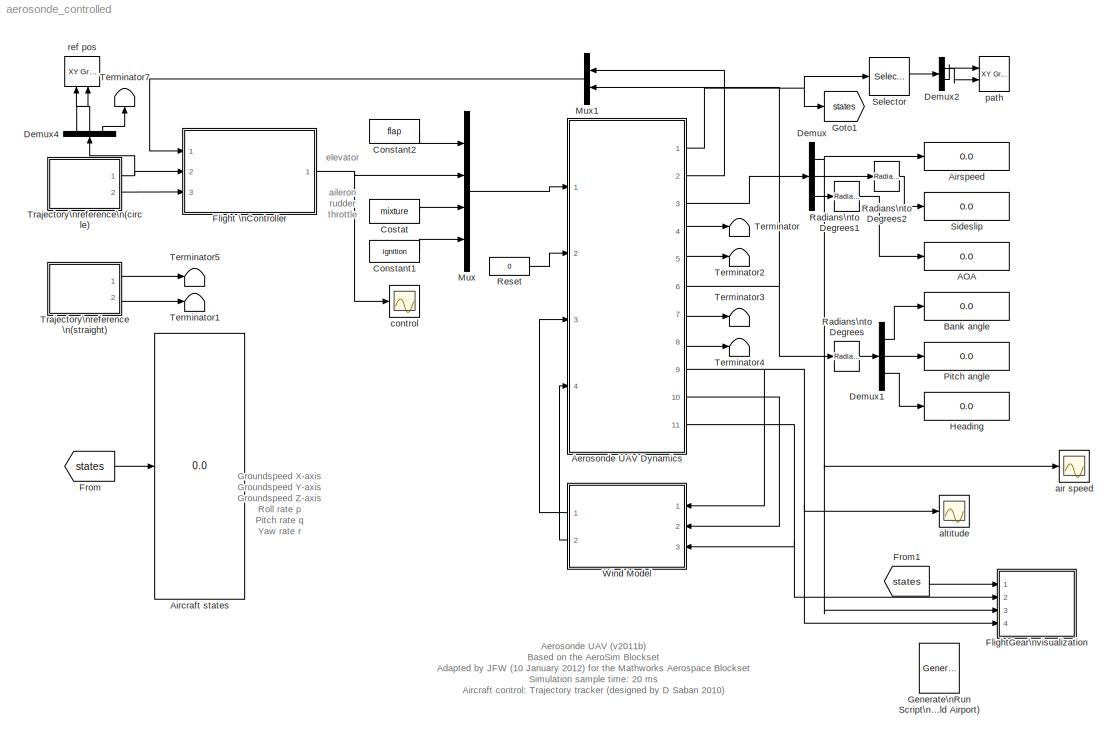
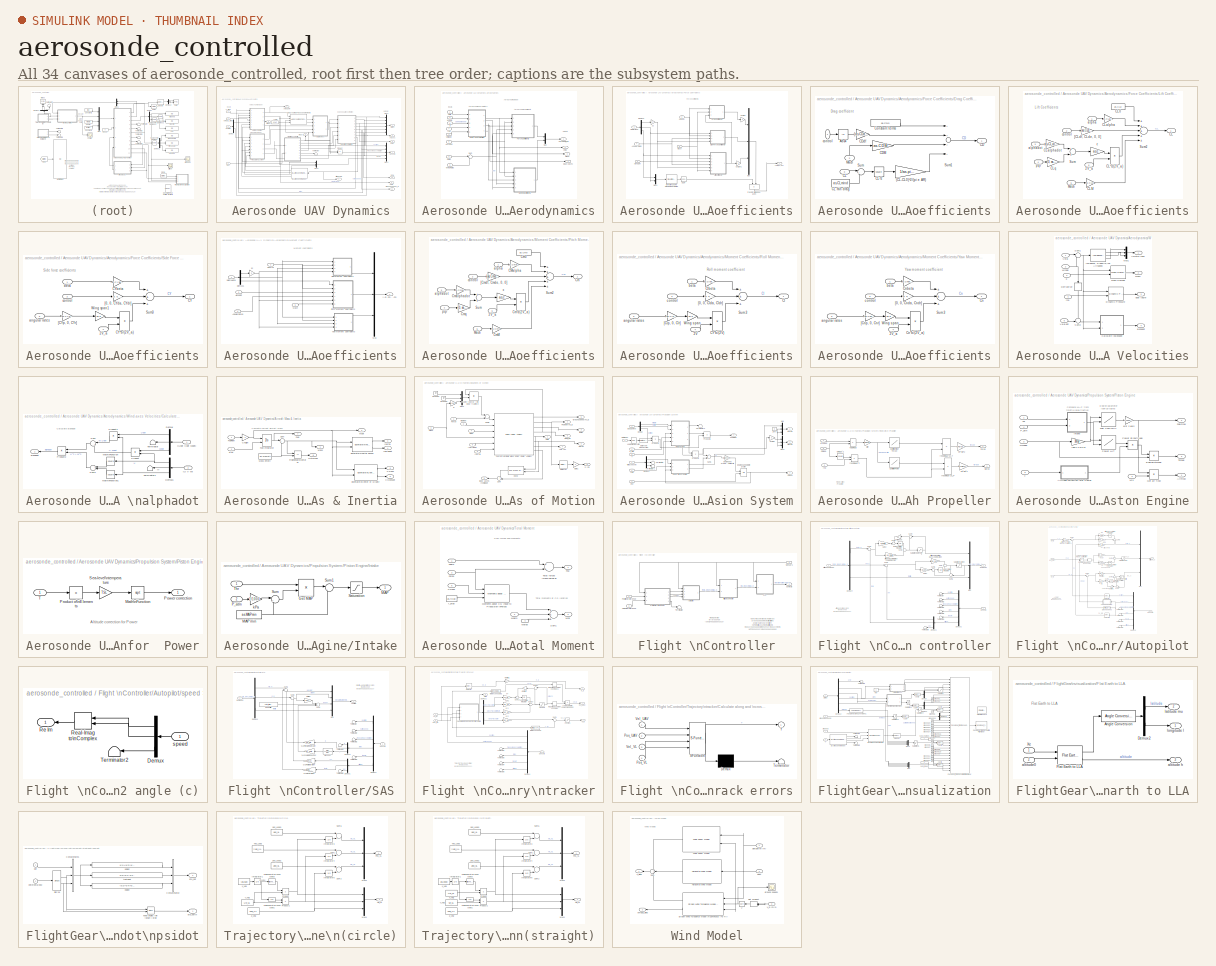
[diagram: thumbnail index - all 34 canvases of the model, root first then tree order]
MODEL aerosonde_controlled
KIND model
BLOCK [Display] AOA
  Decimation = 1
  Lockdown = off
  Ports = [1]
  SID = 1
BLOCK [SubSystem] Aerosonde UAV Dynamics
  FunctionWithSeparateData = off
  MaskCallbackString = |||||||
  MaskDescription = Nonlinear 6-DOF Aerosonde  model with equations of motion in \nbody frame.\n\nVersion 2011a (18 February 2011)
  MaskEnableString = on,on,on,on,on,on,on,on
  MaskHelp = The block implements the 6-DOF nonlinear Aerosonde model. It is an adaptation of the model provided in the AeroSim blockset. Velocities are computed in body frame.\n<P><B>Inputs:</B>\n<LI>Controls = the 4x1 vector of aircraft controls [elevator aileron rudder throttle]. Aerodynamic controls are in radians, throttle is from 0 to 1.</LI>\n<LI>RST = the integrator reset flag (0 or 1, all integrators ...<+1723ch>
  MaskHideContents = off
  MaskIconFrame = on
  MaskIconOpaque = on
  MaskIconRotate = none
  MaskIconUnits = autoscale
  MaskPortRotate = default
  MaskPromptString = Aircraft configuration data:|Initial velocity in body axes [u,v,w]: (m/s)|Initial body rotation rates [p,q,r]: (rad/s)|Initial Euler orientation [roll, pitch, yaw]: (rad)|Initial position in inertial axes [Xe,Ye,Ze]: (m)|Initial fuel mass: (Kg)|Initial engine speed: (rad/s)|Ground altitude: (m)
  MaskStyleString = edit,edit,edit,edit,edit,edit,edit,edit
  MaskToolTipString = on,on,on,on,on,on,on,on
  MaskTunableValueString = on,on,on,on,on,on,on,on
  MaskType = 6-DOF Aerosonde Model
  MaskValueString = aerosonde|velocity_0|rates_0|euler_0|position_0|fuel_0|Omega_0|0
  MaskVariables = as=@1;Velocities0=@2;Rates0=@3;Euler0=@4;Position0=@5;Fuel0=@6;Omega0=@7;GndAlt=@8;
  MaskVisibilityString = on,on,on,on,on,on,on,on
  MinAlgLoopOccurrences = off
  Opaque = off
  Ports = [4, 11]
  PropExecContextOutsideSubsystem = off
  RTWSystemCode = Auto
  RequestExecContextInheritance = off
  SID = 352
BLOCK [Outport] Aerosonde UAV Dynamics/AeroCoeff
  IconDisplay = Port number
  Port = 7
  SID = 665
BLOCK [Reference] Aerosonde UAV Dynamics/Aerodynamic\nForces and Moments  REF=aerolibadyn/Aerodynamic\nForces and Moments 
  FunctionWithSeparateData = off
  GeneratePreprocessorConditionals = off
  Ports = [4, 2]
  RTWMemSecDataConstants = Inherit from model
  RTWMemSecDataInternal = Inherit from model
  RTWMemSecDataParameters = Inherit from model
  RTWMemSecFuncExecute = Inherit from model
  RTWMemSecFuncInitTerm = Inherit from model
  S = as.S
  SID = 357
  ShowPortLabels = FromPortIcon
  SourceBlock = aerolibadyn/Aerodynamic\nForces and Moments
  SourceType = Aerodynamic Forces and Moments
  SystemSampleTime = -1
  b = as.b
  cbar = as.c
  inputAxes = Body
  outputForceAxes = Body
  outputMomentAxes = Body
BLOCK [SubSystem] Aerosonde UAV Dynamics/Aerodynamics
  FunctionWithSeparateData = off
  MaskHideContents = off
  MinAlgLoopOccurrences = off
  Opaque = off
  Ports = [8, 4]
  PropExecContextOutsideSubsystem = off
  RTWSystemCode = Auto
  RequestExecContextInheritance = off
  SID = 358
BLOCK [Outport] Aerosonde UAV Dynamics/Aerodynamics/AeroCoeff_ba
  IconDisplay = Port number
  SID = 513
BLOCK [Inport] Aerosonde UAV Dynamics/Aerodynamics/AeroCon
  IconDisplay = Port number
  Port = 6
  PortDimensions = [4 1]
  SID = 364
BLOCK [SubSystem] Aerosonde UAV Dynamics/Aerodynamics/Force Coefficients
  FunctionWithSeparateData = off
  MaskHideContents = off
  MinAlgLoopOccurrences = off
  Opaque = off
  Ports = [5, 1]
  PropExecContextOutsideSubsystem = off
  RTWSystemCode = Auto
  RequestExecContextInheritance = off
  SID = 367
BLOCK [Gain] Aerosonde UAV Dynamics/Aerodynamics/Force Coefficients/2c
  Gain = 2
  SID = 373
BLOCK [Inport] Aerosonde UAV Dynamics/Aerodynamics/Force Coefficients/AlphaDot
  IconDisplay = Port number
  Port = 3
  SID = 370
BLOCK [Inport] Aerosonde UAV Dynamics/Aerodynamics/Force Coefficients/AngularRates
  IconDisplay = Port number
  Port = 4
  PortDimensions = [3 1]
  SID = 371
BLOCK [Gain] Aerosonde UAV Dynamics/Aerodynamics/Force Coefficients/ChSign
  Gain = -1
  SID = 374
BLOCK [Gain] Aerosonde UAV Dynamics/Aerodynamics/Force Coefficients/ChSign1
  Gain = -1
  SID = 375
BLOCK [Inport] Aerosonde UAV Dynamics/Aerodynamics/Force Coefficients/Control
  IconDisplay = Port number
  Port = 2
  PortDimensions = [4 1]
  SID = 369
BLOCK [Math] Aerosonde UAV Dynamics/Aerodynamics/Force Coefficients/DCM'
  Operator = transpose
  Ports = [1, 1]
  SID = 376
BLOCK [Demux] Aerosonde UAV Dynamics/Aerodynamics/Force Coefficients/Demux2
  Outputs = 3
  Ports = [1, 3]
  SID = 377
BLOCK [Reference] Aerosonde UAV Dynamics/Aerodynamics/Force Coefficients/Direction Cosine Matrix\nBody to Wind  REF=aerolibtransform2/Direction Cosine Matrix\nBody to Wind
  FunctionWithSeparateData = off
  GeneratePreprocessorConditionals = off
  Ports = [1, 1]
  RTWMemSecDataConstants = Inherit from model
  RTWMemSecDataInternal = Inherit from model
  RTWMemSecDataParameters = Inherit from model
  RTWMemSecFuncExecute = Inherit from model
  RTWMemSecFuncInitTerm = Inherit from model
  SID = 378
  ShowPortLabels = none
  SourceBlock = aerolibtransform2/Direction Cosine Matrix\nBody to Wind
  SourceType = DCM Body to Wind
  SystemSampleTime = -1
BLOCK [SubSystem] Aerosonde UAV Dynamics/Aerodynamics/Force Coefficients/Drag Coefficients
  FunctionWithSeparateData = off
  MaskHideContents = off
  MinAlgLoopOccurrences = off
  Opaque = off
  Ports = [3, 1]
  PropExecContextOutsideSubsystem = off
  RTWSystemCode = Auto
  RequestExecContextInheritance = off
  SID = 379
BLOCK [Gain] Aerosonde UAV Dynamics/Aerodynamics/Force Coefficients/Drag Coefficients/(CL-CL0)^2//(pi e AR)
  Gain = 1/as.pieaR
  Multiplication = Matrix(K*u)
  SID = 383
BLOCK [Abs] Aerosonde UAV Dynamics/Aerodynamics/Force Coefficients/Drag Coefficients/Abs4
  SID = 384
BLOCK [Outport] Aerosonde UAV Dynamics/Aerodynamics/Force Coefficients/Drag Coefficients/CD
  IconDisplay = Port number
  SID = 392
BLOCK [Gain] Aerosonde UAV Dynamics/Aerodynamics/Force Coefficients/Drag Coefficients/CDM
  Gain = as.CDM
  SID = 385
BLOCK [Gain] Aerosonde UAV Dynamics/Aerodynamics/Force Coefficients/Drag Coefficients/CDdf
  Gain = [as.CDdf, as.CDde, as.CDda, as.CDdr]
  Multiplication = Matrix(K*u)
  SID = 386
BLOCK [Inport] Aerosonde UAV Dynamics/Aerodynamics/Force Coefficients/Drag Coefficients/CL
  IconDisplay = Port number
  Port = 3
  PortDimensions = 1
  SID = 382
BLOCK [Constant] Aerosonde UAV Dynamics/Aerodynamics/Force Coefficients/Drag Coefficients/CL min drag
  SID = 387
  Value = as.CLmind
BLOCK [Math] Aerosonde UAV Dynamics/Aerodynamics/Force Coefficients/Drag Coefficients/CL^2
  Operator = square
  Ports = [1, 1]
  SID = 388
BLOCK [Constant] Aerosonde UAV Dynamics/Aerodynamics/Force Coefficients/Drag Coefficients/Constant terms
  SID = 389
  Value = as.CD0
BLOCK [Inport] Aerosonde UAV Dynamics/Aerodynamics/Force Coefficients/Drag Coefficients/Mach
  IconDisplay = Port number
  Port = 2
  SID = 381
BLOCK [Sum] Aerosonde UAV Dynamics/Aerodynamics/Force Coefficients/Drag Coefficients/Sum
  IconShape = round
  Inputs = |+-
  Ports = [2, 1]
  SID = 390
BLOCK [Sum] Aerosonde UAV Dynamics/Aerodynamics/Force Coefficients/Drag Coefficients/Sum1
  Inputs = ++++
  Ports = [4, 1]
  SID = 391
BLOCK [Inport] Aerosonde UAV Dynamics/Aerodynamics/Force Coefficients/Drag Coefficients/control
  IconDisplay = Port number
  SID = 380
BLOCK [SubSystem] Aerosonde UAV Dynamics/Aerodynamics/Force Coefficients/Lift Coefficients
  FunctionWithSeparateData = off
  MaskHideContents = off
  MinAlgLoopOccurrences = off
  Opaque = off
  Ports = [6, 1]
  PropExecContextOutsideSubsystem = off
  RTWSystemCode = Auto
  RequestExecContextInheritance = off
  SID = 393
BLOCK [Inport] Aerosonde UAV Dynamics/Aerodynamics/Force Coefficients/Lift Coefficients/2V_a
  IconDisplay = Port number
  Port = 5
  SID = 398
BLOCK [Outport] Aerosonde UAV Dynamics/Aerodynamics/Force Coefficients/Lift Coefficients/CL
  IconDisplay = Port number
  SID = 410
BLOCK [Product] Aerosonde UAV Dynamics/Aerodynamics/Force Coefficients/Lift Coefficients/CL*c//(2V_a)
  Inputs = */
  Ports = [2, 1]
  RndMeth = Floor
  SID = 400
BLOCK [Constant] Aerosonde UAV Dynamics/Aerodynamics/Force Coefficients/Lift Coefficients/CL0
  SID = 401
  Value = as.CL0
BLOCK [Gain] Aerosonde UAV Dynamics/Aerodynamics/Force Coefficients/Lift Coefficients/CLM
  Gain = as.CLM
  SID = 402
BLOCK [Gain] Aerosonde UAV Dynamics/Aerodynamics/Force Coefficients/Lift Coefficients/CLalpha
  Gain = as.CLalpha
  SID = 403
BLOCK [Gain] Aerosonde UAV Dynamics/Aerodynamics/Force Coefficients/Lift Coefficients/CLalphadot
  Gain = as.CLalphadot
  Multiplication = Matrix(K*u)
  SID = 404
BLOCK [Gain] Aerosonde UAV Dynamics/Aerodynamics/Force Coefficients/Lift Coefficients/CLq
  Gain = [0, as.CLq, 0]
  Multiplication = Matrix(K*u)
  SID = 405
BLOCK [Inport] Aerosonde UAV Dynamics/Aerodynamics/Force Coefficients/Lift Coefficients/Mach
  IconDisplay = Port number
  Port = 6
  SID = 399
BLOCK [Sum] Aerosonde UAV Dynamics/Aerodynamics/Force Coefficients/Lift Coefficients/Sum
  Ports = [2, 1]
  SID = 406
BLOCK [Sum] Aerosonde UAV Dynamics/Aerodynamics/Force Coefficients/Lift Coefficients/Sum2
  Inputs = +++++
  Ports = [5, 1]
  SID = 407
BLOCK [Gain] Aerosonde UAV Dynamics/Aerodynamics/Force Coefficients/Lift Coefficients/[CLdf, CLde, 0, 0]
  Gain = [as.CLdf, as.CLde, 0, 0]
  Multiplication = Matrix(K*u)
  SID = 408
BLOCK [Inport] Aerosonde UAV Dynamics/Aerodynamics/Force Coefficients/Lift Coefficients/alpha
  IconDisplay = Port number
  SID = 394
BLOCK [Inport] Aerosonde UAV Dynamics/Aerodynamics/Force Coefficients/Lift Coefficients/alphadot
  IconDisplay = Port number
  Port = 3
  SID = 396
BLOCK [Gain] Aerosonde UAV Dynamics/Aerodynamics/Force Coefficients/Lift Coefficients/c
  Gain = as.c
  SID = 409
BLOCK [Inport] Aerosonde UAV Dynamics/Aerodynamics/Force Coefficients/Lift Coefficients/control
  IconDisplay = Port number
  Port = 2
  SID = 395
BLOCK [Inport] Aerosonde UAV Dynamics/Aerodynamics/Force Coefficients/Lift Coefficients/pqr
  IconDisplay = Port number
  Port = 4
  SID = 397
BLOCK [Inport] Aerosonde UAV Dynamics/Aerodynamics/Force Coefficients/Mach
  IconDisplay = Port number
  Port = 5
  PortDimensions = 1
  SID = 372
BLOCK [Mux] Aerosonde UAV Dynamics/Aerodynamics/Force Coefficients/Mux
  DisplayOption = bar
  Inputs = 3
  Ports = [3, 1]
  SID = 411
BLOCK [Mux] Aerosonde UAV Dynamics/Aerodynamics/Force Coefficients/Mux1
  DisplayOption = bar
  Inputs = 2
  Ports = [2, 1]
  SID = 412
BLOCK [SubSystem] Aerosonde UAV Dynamics/Aerodynamics/Force Coefficients/Side Force Coefficients
  FunctionWithSeparateData = off
  MaskHideContents = off
  MinAlgLoopOccurrences = off
  Opaque = off
  Ports = [4, 1]
  PropExecContextOutsideSubsystem = off
  RTWSystemCode = Auto
  RequestExecContextInheritance = off
  SID = 413
BLOCK [Inport] Aerosonde UAV Dynamics/Aerodynamics/Force Coefficients/Side Force Coefficients/2V_a
  IconDisplay = Port number
  Port = 4
  SID = 417
BLOCK [Outport] Aerosonde UAV Dynamics/Aerodynamics/Force Coefficients/Side Force Coefficients/CY
  IconDisplay = Port number
  SID = 424
BLOCK [Product] Aerosonde UAV Dynamics/Aerodynamics/Force Coefficients/Side Force Coefficients/CY*b//(2V_a)
  Inputs = */
  Ports = [2, 1]
  RndMeth = Floor
  SID = 418
BLOCK [Gain] Aerosonde UAV Dynamics/Aerodynamics/Force Coefficients/Side Force Coefficients/CYbeta
  Gain = as.CYbeta
  SID = 419
BLOCK [Sum] Aerosonde UAV Dynamics/Aerodynamics/Force Coefficients/Side Force Coefficients/Sum3
  Inputs = +++
  Ports = [3, 1]
  SID = 420
BLOCK [Gain] Aerosonde UAV Dynamics/Aerodynamics/Force Coefficients/Side Force Coefficients/Wing span1
  Gain = as.b
  SID = 421
BLOCK [Gain] Aerosonde UAV Dynamics/Aerodynamics/Force Coefficients/Side Force Coefficients/[0, 0, CYda, CYdr]
  Gain = [0, 0, as.CYda, as.CYdr]
  Multiplication = Matrix(K*u)
  SID = 422
BLOCK [Gain] Aerosonde UAV Dynamics/Aerodynamics/Force Coefficients/Side Force Coefficients/[CYp, 0, CYr]
  Gain = [as.CYp, 0, as.CYr]
  Multiplication = Matrix(K*u)
  SID = 423
BLOCK [Inport] Aerosonde UAV Dynamics/Aerodynamics/Force Coefficients/Side Force Coefficients/angular rates
  IconDisplay = Port number
  Port = 3
  SID = 416
BLOCK [Inport] Aerosonde UAV Dynamics/Aerodynamics/Force Coefficients/Side Force Coefficients/beta
  IconDisplay = Port number
  SID = 414
BLOCK [Inport] Aerosonde UAV Dynamics/Aerodynamics/Force Coefficients/Side Force Coefficients/control
  IconDisplay = Port number
  Port = 2
  SID = 415
BLOCK [Inport] Aerosonde UAV Dynamics/Aerodynamics/Force Coefficients/VBetaAlpha
  IconDisplay = Port number
  PortDimensions = [3 1]
  SID = 368
BLOCK [Outport] Aerosonde UAV Dynamics/Aerodynamics/Force Coefficients/[-CD, CY, -CL]
  IconDisplay = Port number
  SID = 426
BLOCK [Product] Aerosonde UAV Dynamics/Aerodynamics/Force Coefficients/transform to \nbody axes
  Inputs = **
  Multiplication = Matrix(*)
  Ports = [2, 1]
  RndMeth = Floor
  SID = 425
BLOCK [Outport] Aerosonde UAV Dynamics/Aerodynamics/Mach
  IconDisplay = Port number
  Port = 3
  SID = 515
BLOCK [SubSystem] Aerosonde UAV Dynamics/Aerodynamics/Moment Coefficients
  FunctionWithSeparateData = off
  MaskHideContents = off
  MinAlgLoopOccurrences = off
  Opaque = off
  Ports = [5, 1]
  PropExecContextOutsideSubsystem = off
  RTWSystemCode = Auto
  RequestExecContextInheritance = off
  SID = 427
BLOCK [Gain] Aerosonde UAV Dynamics/Aerodynamics/Moment Coefficients/2c
  Gain = 2
  SID = 433
BLOCK [Inport] Aerosonde UAV Dynamics/Aerodynamics/Moment Coefficients/AlphaDot
  IconDisplay = Port number
  Port = 3
  SID = 430
BLOCK [Inport] Aerosonde UAV Dynamics/Aerodynamics/Moment Coefficients/AngularRates
  IconDisplay = Port number
  Port = 4
  PortDimensions = [3 1]
  SID = 431
BLOCK [Inport] Aerosonde UAV Dynamics/Aerodynamics/Moment Coefficients/Control
  IconDisplay = Port number
  Port = 2
  PortDimensions = [4 1]
  SID = 429
BLOCK [Demux] Aerosonde UAV Dynamics/Aerodynamics/Moment Coefficients/Demux1
  Outputs = 3
  Ports = [1, 3]
  SID = 434
BLOCK [Inport] Aerosonde UAV Dynamics/Aerodynamics/Moment Coefficients/Mach
  IconDisplay = Port number
  Port = 5
  PortDimensions = 1
  SID = 432
BLOCK [Mux] Aerosonde UAV Dynamics/Aerodynamics/Moment Coefficients/Mux
  DisplayOption = bar
  Inputs = 3
  Ports = [3, 1]
  SID = 435
BLOCK [SubSystem] Aerosonde UAV Dynamics/Aerodynamics/Moment Coefficients/Pitch Moment Coefficients
  FunctionWithSeparateData = off
  MaskHideContents = off
  MinAlgLoopOccurrences = off
  Opaque = off
  Ports = [6, 1]
  PropExecContextOutsideSubsystem = off
  RTWSystemCode = Auto
  RequestExecContextInheritance = off
  SID = 436
BLOCK [Inport] Aerosonde UAV Dynamics/Aerodynamics/Moment Coefficients/Pitch Moment Coefficients/2V_a
  IconDisplay = Port number
  Port = 5
  SID = 441
BLOCK [Gain] Aerosonde UAV Dynamics/Aerodynamics/Moment Coefficients/Pitch Moment Coefficients/CMalpha
  Gain = as.Cmalpha
  SID = 443
BLOCK [Outport] Aerosonde UAV Dynamics/Aerodynamics/Moment Coefficients/Pitch Moment Coefficients/Cm
  IconDisplay = Port number
  SID = 453
BLOCK [Product] Aerosonde UAV Dynamics/Aerodynamics/Moment Coefficients/Pitch Moment Coefficients/Cm*c//(2V_a)
  Inputs = */
  Ports = [2, 1]
  RndMeth = Floor
  SID = 444
BLOCK [Constant] Aerosonde UAV Dynamics/Aerodynamics/Moment Coefficients/Pitch Moment Coefficients/Cm0
  SID = 445
  Value = as.Cm0
BLOCK [Gain] Aerosonde UAV Dynamics/Aerodynamics/Moment Coefficients/Pitch Moment Coefficients/CmM
  Gain = as.CmM
  SID = 446
BLOCK [Gain] Aerosonde UAV Dynamics/Aerodynamics/Moment Coefficients/Pitch Moment Coefficients/Cmalphadot
  Gain = as.Cmalphadot
  Multiplication = Matrix(K*u)
  SID = 447
BLOCK [Gain] Aerosonde UAV Dynamics/Aerodynamics/Moment Coefficients/Pitch Moment Coefficients/Cmq
  Gain = [0, as.Cmq, 0]
  Multiplication = Matrix(K*u)
  SID = 448
BLOCK [Inport] Aerosonde UAV Dynamics/Aerodynamics/Moment Coefficients/Pitch Moment Coefficients/Mach
  IconDisplay = Port number
  Port = 6
  SID = 442
BLOCK [Sum] Aerosonde UAV Dynamics/Aerodynamics/Moment Coefficients/Pitch Moment Coefficients/Sum
  Ports = [2, 1]
  SID = 449
BLOCK [Sum] Aerosonde UAV Dynamics/Aerodynamics/Moment Coefficients/Pitch Moment Coefficients/Sum2
  Inputs = +++++
  Ports = [5, 1]
  SID = 450
BLOCK [Gain] Aerosonde UAV Dynamics/Aerodynamics/Moment Coefficients/Pitch Moment Coefficients/[Cmdf, Cmde, 0, 0]
  Gain = [as.Cmdf, as.Cmde, 0, 0]
  Multiplication = Matrix(K*u)
  SID = 451
BLOCK [Inport] Aerosonde UAV Dynamics/Aerodynamics/Moment Coefficients/Pitch Moment Coefficients/alpha
  IconDisplay = Port number
  SID = 437
BLOCK [Inport] Aerosonde UAV Dynamics/Aerodynamics/Moment Coefficients/Pitch Moment Coefficients/alphadot
  IconDisplay = Port number
  Port = 3
  SID = 439
BLOCK [Gain] Aerosonde UAV Dynamics/Aerodynamics/Moment Coefficients/Pitch Moment Coefficients/c
  Gain = as.c
  SID = 452
BLOCK [Inport] Aerosonde UAV Dynamics/Aerodynamics/Moment Coefficients/Pitch Moment Coefficients/control
  IconDisplay = Port number
  Port = 2
  SID = 438
BLOCK [Inport] Aerosonde UAV Dynamics/Aerodynamics/Moment Coefficients/Pitch Moment Coefficients/pqr
  IconDisplay = Port number
  Port = 4
  SID = 440
BLOCK [SubSystem] Aerosonde UAV Dynamics/Aerodynamics/Moment Coefficients/Roll Moment Coefficients
  FunctionWithSeparateData = off
  MaskHideContents = off
  MinAlgLoopOccurrences = off
  Opaque = off
  Ports = [4, 1]
  PropExecContextOutsideSubsystem = off
  RTWSystemCode = Auto
  RequestExecContextInheritance = off
  SID = 454
BLOCK [Inport] Aerosonde UAV Dynamics/Aerodynamics/Moment Coefficients/Roll Moment Coefficients/2V
  IconDisplay = Port number
  Port = 4
  SID = 458
BLOCK [Product] Aerosonde UAV Dynamics/Aerodynamics/Moment Coefficients/Roll Moment Coefficients/CY*b//(2V)
  Inputs = */
  Ports = [2, 1]
  RndMeth = Floor
  SID = 459
BLOCK [Outport] Aerosonde UAV Dynamics/Aerodynamics/Moment Coefficients/Roll Moment Coefficients/Cl
  IconDisplay = Port number
  SID = 465
BLOCK [Gain] Aerosonde UAV Dynamics/Aerodynamics/Moment Coefficients/Roll Moment Coefficients/Clbeta
  Gain = as.Clbeta
  SID = 460
BLOCK [Sum] Aerosonde UAV Dynamics/Aerodynamics/Moment Coefficients/Roll Moment Coefficients/Sum3
  Inputs = +++
  Ports = [3, 1]
  SID = 461
BLOCK [Gain] Aerosonde UAV Dynamics/Aerodynamics/Moment Coefficients/Roll Moment Coefficients/Wing span
  Gain = as.b
  SID = 462
BLOCK [Gain] Aerosonde UAV Dynamics/Aerodynamics/Moment Coefficients/Roll Moment Coefficients/[0, 0, Clda, Cldr]
  Gain = [0, 0, as.Clda, as.Cldr]
  Multiplication = Matrix(K*u)
  SID = 463
BLOCK [Gain] Aerosonde UAV Dynamics/Aerodynamics/Moment Coefficients/Roll Moment Coefficients/[Clp, 0, Clr]
  Gain = [as.Clp, 0, as.Clr]
  Multiplication = Matrix(K*u)
  SID = 464
BLOCK [Inport] Aerosonde UAV Dynamics/Aerodynamics/Moment Coefficients/Roll Moment Coefficients/angular rates
  IconDisplay = Port number
  Port = 3
  SID = 457
BLOCK [Inport] Aerosonde UAV Dynamics/Aerodynamics/Moment Coefficients/Roll Moment Coefficients/beta
  IconDisplay = Port number
  SID = 455
BLOCK [Inport] Aerosonde UAV Dynamics/Aerodynamics/Moment Coefficients/Roll Moment Coefficients/control
  IconDisplay = Port number
  Port = 2
  SID = 456
BLOCK [Inport] Aerosonde UAV Dynamics/Aerodynamics/Moment Coefficients/VBetaAlpha
  IconDisplay = Port number
  PortDimensions = [3 1]
  SID = 428
BLOCK [SubSystem] Aerosonde UAV Dynamics/Aerodynamics/Moment Coefficients/Yaw Moment Coefficients
  FunctionWithSeparateData = off
  MaskHideContents = off
  MinAlgLoopOccurrences = off
  Opaque = off
  Ports = [4, 1]
  PropExecContextOutsideSubsystem = off
  RTWSystemCode = Auto
  RequestExecContextInheritance = off
  SID = 466
BLOCK [Inport] Aerosonde UAV Dynamics/Aerodynamics/Moment Coefficients/Yaw Moment Coefficients/2V_a
  IconDisplay = Port number
  Port = 4
  SID = 470
BLOCK [Outport] Aerosonde UAV Dynamics/Aerodynamics/Moment Coefficients/Yaw Moment Coefficients/Cn
  IconDisplay = Port number
  SID = 477
BLOCK [Product] Aerosonde UAV Dynamics/Aerodynamics/Moment Coefficients/Yaw Moment Coefficients/Cn*b//(2V_a)
  Inputs = */
  Ports = [2, 1]
  RndMeth = Floor
  SID = 471
BLOCK [Gain] Aerosonde UAV Dynamics/Aerodynamics/Moment Coefficients/Yaw Moment Coefficients/Cnbeta
  Gain = as.Cnbeta
  SID = 472
BLOCK [Sum] Aerosonde UAV Dynamics/Aerodynamics/Moment Coefficients/Yaw Moment Coefficients/Sum3
  Inputs = +++
  Ports = [3, 1]
  SID = 473
BLOCK [Gain] Aerosonde UAV Dynamics/Aerodynamics/Moment Coefficients/Yaw Moment Coefficients/Wing span
  Gain = as.b
  SID = 474
BLOCK [Gain] Aerosonde UAV Dynamics/Aerodynamics/Moment Coefficients/Yaw Moment Coefficients/[0, 0, Cnda, Cndr]
  Gain = [0, 0, as.Cnda, as.Cndr]
  Multiplication = Matrix(K*u)
  SID = 475
BLOCK [Gain] Aerosonde UAV Dynamics/Aerodynamics/Moment Coefficients/Yaw Moment Coefficients/[Cnp, 0, Cnr]
  Gain = [as.Cnp, 0, as.Cnr]
  Multiplication = Matrix(K*u)
  SID = 476
BLOCK [Inport] Aerosonde UAV Dynamics/Aerodynamics/Moment Coefficients/Yaw Moment Coefficients/angular rates
  IconDisplay = Port number
  Port = 3
  SID = 469
BLOCK [Inport] Aerosonde UAV Dynamics/Aerodynamics/Moment Coefficients/Yaw Moment Coefficients/beta
  IconDisplay = Port number
  SID = 467
BLOCK [Inport] Aerosonde UAV Dynamics/Aerodynamics/Moment Coefficients/Yaw Moment Coefficients/control
  IconDisplay = Port number
  Port = 2
  SID = 468
BLOCK [Outport] Aerosonde UAV Dynamics/Aerodynamics/Moment Coefficients/[-Cl, Cm, -Cn]
  IconDisplay = Port number
  SID = 478
BLOCK [Mux] Aerosonde UAV Dynamics/Aerodynamics/Mux
  DisplayOption = bar
  Inputs = 2
  Ports = [2, 1]
  SID = 479
BLOCK [Inport] Aerosonde UAV Dynamics/Aerodynamics/Rates
  IconDisplay = Port number
  Port = 4
  PortDimensions = [3 1]
  SID = 362
BLOCK [Sum] Aerosonde UAV Dynamics/Aerodynamics/Sum
  IconShape = round
  Inputs = |+-
  Ports = [2, 1]
  SID = 480
BLOCK [Inport] Aerosonde UAV Dynamics/Aerodynamics/VelB
  IconDisplay = Port number
  PortDimensions = [3 1]
  SID = 359
BLOCK [Inport] Aerosonde UAV Dynamics/Aerodynamics/VelBdot
  IconDisplay = Port number
  Port = 3
  SID = 361
BLOCK [Outport] Aerosonde UAV Dynamics/Aerodynamics/VelW
  IconDisplay = Port number
  Port = 2
  SID = 514
BLOCK [SubSystem] Aerosonde UAV Dynamics/Aerodynamics/Wind-axes Velocities
  FunctionWithSeparateData = off
  MaskHideContents = off
  MinAlgLoopOccurrences = off
  Opaque = off
  Ports = [5, 4]
  PropExecContextOutsideSubsystem = off
  RTWSystemCode = Auto
  RequestExecContextInheritance = off
  SID = 481
BLOCK [SubSystem] Aerosonde UAV Dynamics/Aerodynamics/Wind-axes Velocities/Calculate \nalphadot
  FunctionWithSeparateData = off
  MaskHideContents = off
  MinAlgLoopOccurrences = off
  Opaque = off
  Ports = [2, 1]
  PropExecContextOutsideSubsystem = off
  RTWSystemCode = Auto
  RequestExecContextInheritance = off
  SID = 487
BLOCK [Demux] Aerosonde UAV Dynamics/Aerodynamics/Wind-axes Velocities/Calculate \nalphadot/Demux
  DisplayOption = bar
  Outputs = 3
  Ports = [1, 3]
  SID = 490
BLOCK [Demux] Aerosonde UAV Dynamics/Aerodynamics/Wind-axes Velocities/Calculate \nalphadot/Demux1
  DisplayOption = bar
  Outputs = 3
  Ports = [1, 3]
  SID = 491
BLOCK [Math] Aerosonde UAV Dynamics/Aerodynamics/Wind-axes Velocities/Calculate \nalphadot/Math\nFunction
  Operator = square
  Ports = [1, 1]
  SID = 492
BLOCK [Math] Aerosonde UAV Dynamics/Aerodynamics/Wind-axes Velocities/Calculate \nalphadot/Math\nFunction1
  Operator = square
  Ports = [1, 1]
  SID = 493
BLOCK [Product] Aerosonde UAV Dynamics/Aerodynamics/Wind-axes Velocities/Calculate \nalphadot/Product
  InputSameDT = off
  OutDataTypeStr = Inherit: Inherit via internal rule
  Ports = [2, 1]
  SID = 494
  SaturateOnIntegerOverflow = off
BLOCK [Product] Aerosonde UAV Dynamics/Aerodynamics/Wind-axes Velocities/Calculate \nalphadot/Product1
  InputSameDT = off
  OutDataTypeStr = Inherit: Inherit via internal rule
  Ports = [2, 1]
  SID = 495
  SaturateOnIntegerOverflow = off
BLOCK [Product] Aerosonde UAV Dynamics/Aerodynamics/Wind-axes Velocities/Calculate \nalphadot/Product2
  InputSameDT = off
  Inputs = */
  OutDataTypeStr = Inherit: Inherit via internal rule
  Ports = [2, 1]
  SID = 496
  SaturateOnIntegerOverflow = off
BLOCK [Sum] Aerosonde UAV Dynamics/Aerodynamics/Wind-axes Velocities/Calculate \nalphadot/Sum
  IconShape = round
  InputSameDT = off
  Inputs = -|+
  OutDataTypeStr = Inherit: Inherit via internal rule
  Ports = [2, 1]
  SID = 497
  SaturateOnIntegerOverflow = off
BLOCK [Sum] Aerosonde UAV Dynamics/Aerodynamics/Wind-axes Velocities/Calculate \nalphadot/Sum1
  IconShape = round
  InputSameDT = off
  Inputs = +|+
  OutDataTypeStr = Inherit: Inherit via internal rule
  Ports = [2, 1]
  SID = 498
  SaturateOnIntegerOverflow = off
BLOCK [Terminator] Aerosonde UAV Dynamics/Aerodynamics/Wind-axes Velocities/Calculate \nalphadot/Terminator
  SID = 499
BLOCK [Terminator] Aerosonde UAV Dynamics/Aerodynamics/Wind-axes Velocities/Calculate \nalphadot/Terminator1
  SID = 500
BLOCK [Inport] Aerosonde UAV Dynamics/Aerodynamics/Wind-axes Velocities/Calculate \nalphadot/[U V W]
  IconDisplay = Port number
  Port = 2
  SID = 489
BLOCK [Inport] Aerosonde UAV Dynamics/Aerodynamics/Wind-axes Velocities/Calculate \nalphadot/[Udot Vdot Wdot]
  IconDisplay = Port number
  SID = 488
BLOCK [Outport] Aerosonde UAV Dynamics/Aerodynamics/Wind-axes Velocities/Calculate \nalphadot/alphadot
  IconDisplay = Port number
  SID = 501
BLOCK [Derivative] Aerosonde UAV Dynamics/Aerodynamics/Wind-axes Velocities/Derivative
  SID = 502
BLOCK [Reference] Aerosonde UAV Dynamics/Aerodynamics/Wind-axes Velocities/Dynamic Pressure  REF=aerolibasang/Dynamic Pressure
  FunctionWithSeparateData = off
  GeneratePreprocessorConditionals = off
  Ports = [2, 1]
  RTWMemSecDataConstants = Inherit from model
  RTWMemSecDataInternal = Inherit from model
  RTWMemSecDataParameters = Inherit from model
  RTWMemSecFuncExecute = Inherit from model
  RTWMemSecFuncInitTerm = Inherit from model
  SID = 503
  ShowPortLabels = FromPortIcon
  SourceBlock = aerolibasang/Dynamic Pressure
  SourceType = Dynamic Pressure
  SystemSampleTime = -1
BLOCK [Reference] Aerosonde UAV Dynamics/Aerodynamics/Wind-axes Velocities/Incidence, Sideslip,\n& Airspeed  REF=aerolibasang/Incidence, Sideslip,\n& Airspeed
  FunctionWithSeparateData = off
  GeneratePreprocessorConditionals = off
  Ports = [1, 3]
  RTWMemSecDataConstants = Inherit from model
  RTWMemSecDataInternal = Inherit from model
  RTWMemSecDataParameters = Inherit from model
  RTWMemSecFuncExecute = Inherit from model
  RTWMemSecFuncInitTerm = Inherit from model
  SID = 504
  ShowPortLabels = FromPortIcon
  SourceBlock = aerolibasang/Incidence, Sideslip,\n& Airspeed
  SourceType = Incidence,Sideslip,&Airspeed
  SystemSampleTime = -1
BLOCK [Outport] Aerosonde UAV Dynamics/Aerodynamics/Wind-axes Velocities/Mach
  IconDisplay = Port number
  Port = 2
  SID = 510
BLOCK [Reference] Aerosonde UAV Dynamics/Aerodynamics/Wind-axes Velocities/Mach Number  REF=aerolibasang/Mach Number
  FunctionWithSeparateData = off
  GeneratePreprocessorConditionals = off
  Ports = [2, 1]
  RTWMemSecDataConstants = Inherit from model
  RTWMemSecDataInternal = Inherit from model
  RTWMemSecDataParameters = Inherit from model
  RTWMemSecFuncExecute = Inherit from model
  RTWMemSecFuncInitTerm = Inherit from model
  SID = 505
  ShowPortLabels = FromPortIcon
  SourceBlock = aerolibasang/Mach Number
  SourceType = Mach Number
  SystemSampleTime = -1
BLOCK [Mux] Aerosonde UAV Dynamics/Aerodynamics/Wind-axes Velocities/Mux1
  DisplayOption = bar
  Inputs = 3
  Ports = [3, 1]
  SID = 506
BLOCK [Sum] Aerosonde UAV Dynamics/Aerodynamics/Wind-axes Velocities/Sum1
  IconShape = round
  Inputs = |+-
  Ports = [2, 1]
  SID = 507
BLOCK [Sum] Aerosonde UAV Dynamics/Aerodynamics/Wind-axes Velocities/Sum2
  IconShape = round
  Inputs = -+|
  Ports = [2, 1]
  SID = 508
BLOCK [Outport] Aerosonde UAV Dynamics/Aerodynamics/Wind-axes Velocities/VBetaAlpha
  IconDisplay = Port number
  SID = 509
BLOCK [Inport] Aerosonde UAV Dynamics/Aerodynamics/Wind-axes Velocities/VelB
  IconDisplay = Port number
  SID = 482
BLOCK [Inport] Aerosonde UAV Dynamics/Aerodynamics/Wind-axes Velocities/VelBdot
  IconDisplay = Port number
  Port = 5
  SID = 486
BLOCK [Inport] Aerosonde UAV Dynamics/Aerodynamics/Wind-axes Velocities/WindB
  IconDisplay = Port number
  Port = 2
  SID = 483
BLOCK [Inport] Aerosonde UAV Dynamics/Aerodynamics/Wind-axes Velocities/a
  IconDisplay = Port number
  Port = 3
  SID = 484
BLOCK [Outport] Aerosonde UAV Dynamics/Aerodynamics/Wind-axes Velocities/alphadot
  IconDisplay = Port number
  Port = 4
  SID = 512
BLOCK [Outport] Aerosonde UAV Dynamics/Aerodynamics/Wind-axes Velocities/qbar (pdyn)
  IconDisplay = Port number
  Port = 3
  SID = 511
BLOCK [Inport] Aerosonde UAV Dynamics/Aerodynamics/Wind-axes Velocities/rho
  IconDisplay = Port number
  Port = 4
  SID = 485
BLOCK [Inport] Aerosonde UAV Dynamics/Aerodynamics/WindB
  IconDisplay = Port number
  Port = 2
  PortDimensions = [3 1]
  SID = 360
BLOCK [Inport] Aerosonde UAV Dynamics/Aerodynamics/WindRates
  IconDisplay = Port number
  Port = 5
  PortDimensions = [3 1]
  SID = 363
BLOCK [Inport] Aerosonde UAV Dynamics/Aerodynamics/a 
  IconDisplay = Port number
  Port = 8
  PortDimensions = 1
  SID = 366
BLOCK [Outport] Aerosonde UAV Dynamics/Aerodynamics/qbar (pdyn)
  IconDisplay = Port number
  Port = 4
  SID = 516
BLOCK [Inport] Aerosonde UAV Dynamics/Aerodynamics/rho
  IconDisplay = Port number
  Port = 7
  PortDimensions = 1
  SID = 365
BLOCK [SubSystem] Aerosonde UAV Dynamics/Aircraft Mass & Inertia
  FunctionWithSeparateData = off
  MaskHideContents = off
  MinAlgLoopOccurrences = off
  Opaque = off
  Ports = [2, 8]
  PropExecContextOutsideSubsystem = off
  RTWSystemCode = Auto
  RequestExecContextInheritance = off
  SID = 517
BLOCK [Outport] Aerosonde UAV Dynamics/Aircraft Mass & Inertia/CGpos
  IconDisplay = Port number
  Port = 5
  SID = 531
BLOCK [Outport] Aerosonde UAV Dynamics/Aircraft Mass & Inertia/CGposdot
  IconDisplay = Port number
  Port = 6
  SID = 532
BLOCK [Gain] Aerosonde UAV Dynamics/Aircraft Mass & Inertia/ChSign
  Gain = -1
  SID = 520
BLOCK [Reference] Aerosonde UAV Dynamics/Aircraft Mass & Inertia/Estimate\nCenter of Gravity  REF=aerolibbdyn/Estimate\nCenter of Gravity
  FunctionWithSeparateData = off
  GeneratePreprocessorConditionals = off
  Ports = [2, 2]
  RTWMemSecDataConstants = Inherit from model
  RTWMemSecDataInternal = Inherit from model
  RTWMemSecDataParameters = Inherit from model
  RTWMemSecFuncExecute = Inherit from model
  RTWMemSecFuncInitTerm = Inherit from model
  SID = 521
  ShowPortLabels = FromPortIcon
  SourceBlock = aerolibbdyn/Estimate\nCenter of Gravity
  SourceType = Estimate Center of Gravity
  SystemSampleTime = -1
  ecg = as.CGempty
  emass = as.mempty
  fcg = as.CGgross
  fmass = as.mgross
BLOCK [Reference] Aerosonde UAV Dynamics/Aircraft Mass & Inertia/Estimate\nInertia Tensor  REF=aerolibbdyn/Estimate\nInertia Tensor
  FunctionWithSeparateData = off
  GeneratePreprocessorConditionals = off
  Ports = [2, 2]
  RTWMemSecDataConstants = Inherit from model
  RTWMemSecDataInternal = Inherit from model
  RTWMemSecDataParameters = Inherit from model
  RTWMemSecFuncExecute = Inherit from model
  RTWMemSecFuncInitTerm = Inherit from model
  SID = 522
  ShowPortLabels = FromPortIcon
  SourceBlock = aerolibbdyn/Estimate\nInertia Tensor
  SourceType = Estimate Inertia Tensor
  SystemSampleTime = -1
  eI = as.J_empty
  emass = as.mempty
  fI = as.J_gross
  fmass = as.mgross
BLOCK [Outport] Aerosonde UAV Dynamics/Aircraft Mass & Inertia/Fuel
  IconDisplay = Port number
  Port = 7
  SID = 533
BLOCK [Integrator] Aerosonde UAV Dynamics/Aircraft Mass & Inertia/Fuel Integrator
  ExternalReset = rising
  InitialCondition = Fuel0
  LimitOutput = on
  LowerSaturationLimit = 0
  Ports = [2, 1]
  SID = 523
  UpperSaturationLimit = as.mgross-as.mempty
BLOCK [Inport] Aerosonde UAV Dynamics/Aircraft Mass & Inertia/FuelFlow
  IconDisplay = Port number
  PortDimensions = 1
  SID = 518
BLOCK [Outport] Aerosonde UAV Dynamics/Aircraft Mass & Inertia/Inertia
  IconDisplay = Port number
  Port = 3
  SID = 529
BLOCK [Outport] Aerosonde UAV Dynamics/Aircraft Mass & Inertia/Inertiadot
  IconDisplay = Port number
  Port = 4
  SID = 530
BLOCK [Outport] Aerosonde UAV Dynamics/Aircraft Mass & Inertia/Mass
  IconDisplay = Port number
  SID = 527
BLOCK [Constant] Aerosonde UAV Dynamics/Aircraft Mass & Inertia/Mass empty
  SID = 524
  Value = as.mempty
BLOCK [Outport] Aerosonde UAV Dynamics/Aircraft Mass & Inertia/OutofFuel
  IconDisplay = Port number
  Port = 8
  SID = 534
BLOCK [Inport] Aerosonde UAV Dynamics/Aircraft Mass & Inertia/RST
  IconDisplay = Port number
  Port = 2
  PortDimensions = 1
  SID = 519
BLOCK [RelationalOperator] Aerosonde UAV Dynamics/Aircraft Mass & Inertia/Relational\nOperator
  Operator = ==
  Ports = [2, 1]
  SID = 525
BLOCK [Sum] Aerosonde UAV Dynamics/Aircraft Mass & Inertia/Sum
  IconShape = round
  Inputs = |++
  Ports = [2, 1]
  SID = 526
BLOCK [Outport] Aerosonde UAV Dynamics/Aircraft Mass & Inertia/mdot
  IconDisplay = Port number
  Port = 2
  SID = 528
BLOCK [Outport] Aerosonde UAV Dynamics/Altitude h (m) 
  IconDisplay = Port number
  Port = 9
  SID = 667
BLOCK [Outport] Aerosonde UAV Dynamics/Ang Acc
  IconDisplay = Port number
  Port = 5
  SID = 663
BLOCK [Inport] Aerosonde UAV Dynamics/Controls
  IconDisplay = Port number
  SID = 353
BLOCK [Outport] Aerosonde UAV Dynamics/DCM
  IconDisplay = Port number
  Port = 10
  SID = 668
BLOCK [Demux] Aerosonde UAV Dynamics/Demux
  Outputs = [4,3]
  Ports = [1, 2]
  SID = 535
BLOCK [SubSystem] Aerosonde UAV Dynamics/Equations of Motion
  FunctionWithSeparateData = off
  MaskHideContents = off
  MinAlgLoopOccurrences = off
  Opaque = off
  Ports = [6, 9]
  PropExecContextOutsideSubsystem = off
  RTWSystemCode = Auto
  RequestExecContextInheritance = off
  SID = 536
BLOCK [Outport] Aerosonde UAV Dynamics/Equations of Motion/Ang Acc
  IconDisplay = Port number
  Port = 7
  SID = 560
BLOCK [Outport] Aerosonde UAV Dynamics/Equations of Motion/Body accns \nVelBdot
  IconDisplay = Port number
  Port = 9
  SID = 562
BLOCK [Reference] Aerosonde UAV Dynamics/Equations of Motion/Custom Variable Mass 6DoF (Euler Angles)  REF=aerolib6dof2/6DoF (Euler Angles)
  FunctionWithSeparateData = off
  GeneratePreprocessorConditionals = off
  Ports = [6, 8]
  RTWMemSecDataConstants = Inherit from model
  RTWMemSecDataInternal = Inherit from model
  RTWMemSecDataParameters = Inherit from model
  RTWMemSecFuncExecute = Inherit from model
  RTWMemSecFuncInitTerm = Inherit from model
  SID = 543
  ShowPortLabels = FromPortIcon
  SourceBlock = aerolib6dof2/6DoF (Euler Angles)
  SourceType = 6DoF EoM (Body Axis)
  SystemSampleTime = -1
  Vm_0 = Velocities0
  eul_0 = Euler0
  inertia = eye(3)
  inertia_e = eye(3)
  inertia_f = eye(3)
  k_quat = 1.0
  mass_0 = 1.0
  mass_e = 0
  mass_f = 0
  mtype = Custom Variable
  pm_0 = Rates0
  rep = Euler Angles
  units = Metric (MKS)
  xme_0 = Position0
BLOCK [Outport] Aerosonde UAV Dynamics/Equations of Motion/DCM_be
  IconDisplay = Port number
  Port = 6
  SID = 559
BLOCK [Outport] Aerosonde UAV Dynamics/Equations of Motion/Euler
  IconDisplay = Port number
  Port = 3
  SID = 556
BLOCK [Inport] Aerosonde UAV Dynamics/Equations of Motion/Force
  IconDisplay = Port number
  PortDimensions = 3
  SID = 537
BLOCK [Gain] Aerosonde UAV Dynamics/Equations of Motion/Gain1
  Gain = -1
  OutDataTypeStr = Inherit: Inherit via internal rule
  ParamDataTypeStr = Inherit: Inherit via internal rule
  SID = 544
  SaturateOnIntegerOverflow = off
BLOCK [Product] Aerosonde UAV Dynamics/Equations of Motion/Gravity vector \nin body frame\n
  Multiplication = Matrix(*)
  Ports = [2, 1]
  RndMeth = Floor
  SID = 545
BLOCK [Ground] Aerosonde UAV Dynamics/Equations of Motion/Ground2
  SID = 546
BLOCK [Ground] Aerosonde UAV Dynamics/Equations of Motion/Ground4
  SID = 547
BLOCK [Outport] Aerosonde UAV Dynamics/Equations of Motion/Groundspeed\nV_E
  IconDisplay = Port number
  Port = 5
  SID = 558
BLOCK [Inport] Aerosonde UAV Dynamics/Equations of Motion/Inertia
  IconDisplay = Port number
  Port = 5
  PortDimensions = [3,3]
  SID = 541
BLOCK [Inport] Aerosonde UAV Dynamics/Equations of Motion/Inertiadot
  IconDisplay = Port number
  Port = 6
  PortDimensions = [3,3]
  SID = 542
BLOCK [Inport] Aerosonde UAV Dynamics/Equations of Motion/Moment
  IconDisplay = Port number
  Port = 2
  PortDimensions = 3
  SID = 538
BLOCK [Mux] Aerosonde UAV Dynamics/Equations of Motion/Mux1
  DisplayOption = bar
  Inputs = 3
  Ports = [3, 1]
  SID = 548
BLOCK [Outport] Aerosonde UAV Dynamics/Equations of Motion/Position\nX_E
  IconDisplay = Port number
  Port = 4
  SID = 557
BLOCK [Outport] Aerosonde UAV Dynamics/Equations of Motion/Rates
  IconDisplay = Port number
  Port = 2
  SID = 555
BLOCK [Selector] Aerosonde UAV Dynamics/Equations of Motion/Selector
  IndexOptions = Index vector (dialog)
  Indices = 3
  InputPortWidth = 3
  OutputSizes = 1
  Ports = [1, 1]
  SID = 549
BLOCK [Sum] Aerosonde UAV Dynamics/Equations of Motion/Sum
  IconShape = round
  InputSameDT = off
  Inputs = ++|
  OutDataTypeStr = Inherit: Inherit via internal rule
  Ports = [2, 1]
  SID = 550
BLOCK [Sum] Aerosonde UAV Dynamics/Equations of Motion/Sum3
  Ports = [2, 1]
  SID = 551
BLOCK [Reference] Aerosonde UAV Dynamics/Equations of Motion/Vbxw  REF=aerolibutil/3x3 Cross Product
  FunctionWithSeparateData = off
  GeneratePreprocessorConditionals = off
  Ports = [2, 1]
  RTWMemSecDataConstants = Inherit from model
  RTWMemSecDataInternal = Inherit from model
  RTWMemSecDataParameters = Inherit from model
  RTWMemSecFuncExecute = Inherit from model
  RTWMemSecFuncInitTerm = Inherit from model
  SID = 552
  ShowPortLabels = FromPortIcon
  SourceBlock = aerolibutil/3x3 Cross Product
  SourceType = CrossProduct
  SystemSampleTime = -1
BLOCK [Outport] Aerosonde UAV Dynamics/Equations of Motion/VelB
  IconDisplay = Port number
  SID = 554
BLOCK [Gain] Aerosonde UAV Dynamics/Equations of Motion/g
  Gain = as.g
  OutDataTypeStr = Inherit: Inherit via internal rule
  ParamDataTypeStr = Inherit: Inherit via internal rule
  SID = 553
  SaturateOnIntegerOverflow = off
BLOCK [Outport] Aerosonde UAV Dynamics/Equations of Motion/h (m)
  IconDisplay = Port number
  Port = 8
  SID = 561
BLOCK [Inport] Aerosonde UAV Dynamics/Equations of Motion/mass
  IconDisplay = Port number
  Port = 3
  PortDimensions = 1
  SID = 539
BLOCK [Inport] Aerosonde UAV Dynamics/Equations of Motion/mdot
  IconDisplay = Port number
  Port = 4
  PortDimensions = 1
  SID = 540
BLOCK [Outport] Aerosonde UAV Dynamics/Euler
  IconDisplay = Port number
  Port = 6
  SID = 664
BLOCK [Outport] Aerosonde UAV Dynamics/Groundspeed V_E
  IconDisplay = Port number
  Port = 11
  SID = 669
BLOCK [Reference] Aerosonde UAV Dynamics/ISA Atmosphere Model  REF=aerolibatmos2/ISA Atmosphere Model
  FunctionWithSeparateData = off
  GeneratePreprocessorConditionals = off
  L = 0.0065
  P0 = 101325
  Ports = [1, 4]
  R = 287.0531
  RTWMemSecDataConstants = Inherit from model
  RTWMemSecDataInternal = Inherit from model
  RTWMemSecDataParameters = Inherit from model
  RTWMemSecFuncExecute = Inherit from model
  RTWMemSecFuncInitTerm = Inherit from model
  SID = 563
  ShowPortLabels = FromPortIcon
  SourceBlock = aerolibatmos2/ISA Atmosphere Model
  SourceType = International Standard Atmosphere Model
  SystemSampleTime = -1
  T0 = 288.15
  custom = off
  g = 9.80665
  gamma = 1.4
  h_strat = 20000
  h_trop = 11000
  rho0 = 1.225
BLOCK [Outport] Aerosonde UAV Dynamics/Mach
  IconDisplay = Port number
  Port = 4
  SID = 662
BLOCK [Outport] Aerosonde UAV Dynamics/Mass
  IconDisplay = Port number
  Port = 8
  SID = 666
BLOCK [Mux] Aerosonde UAV Dynamics/Mux2
  DisplayOption = bar
  Inputs = 3
  Ports = [3, 1]
  SID = 564
BLOCK [Mux] Aerosonde UAV Dynamics/Mux4
  DisplayOption = bar
  Inputs = 5
  Ports = [5, 1]
  SID = 565
BLOCK [Mux] Aerosonde UAV Dynamics/Mux7
  DisplayOption = bar
  Inputs = 6
  Ports = [6, 1]
  SID = 566
BLOCK [Product] Aerosonde UAV Dynamics/Product
  InputSameDT = off
  Inputs = */
  OutDataTypeStr = Inherit: Inherit via internal rule
  Ports = [2, 1]
  SID = 567
  SaturateOnIntegerOverflow = off
BLOCK [SubSystem] Aerosonde UAV Dynamics/Propulsion System
  FunctionWithSeparateData = off
  MaskCallbackString = |||||||||||
  MaskDescription = The block models a general aviation propulsion system including a piston engine and a fixed-pitch propeller.
  MaskEnableString = on,on,on,on,on,on,on,on,on,on,on,on
  MaskHelp = The block provides a general aviation propulsion system using the AeroSim piston engine and fixed-pitch propeller models.\n<P><B>Inputs:</B>\n<LI>Control = the 3x1 engine control vector [Throttle Mixture Ignition]</LI>\n<LI>OutofFuel = the out-of-fuel flag (0 or 1)</LI>\n<LI>p = the static pressure at current altitude, in Pa</LI>\n<LI>T = the air temperature at current altitude, in K</LI>\n<LI>rho...<+1764ch>
  MaskHideContents = off
  MaskIconFrame = on
  MaskIconOpaque = on
  MaskIconRotate = none
  MaskIconUnits = autoscale
  MaskPortRotate = default
  MaskPromptString = Initial engine speed:|Engine RPM vector:|Engine MAP vector:|Engine fuel flow look-up table:|Engine power look-up table:|Engine moment of inertia:|Propeller advance ratio vector:|Propeller coefficient of thrust vector:|Propeller coefficient of power vector:|Propeller radius:|Propeller moment of inertia:|Sea-level temperature:
  MaskStyleString = edit,edit,edit,edit,edit,edit,edit,edit,edit,edit,edit,edit
  MaskToolTipString = on,on,on,on,on,on,on,on,on,on,on,on
  MaskTunableValueString = on,on,on,on,on,on,on,on,on,on,on,on
  MaskType = General-aviation propulsion system
  MaskValueString = Omega0|as.RPM|as.MAP|as.FuelFlow|as.Power|as.Jeng|as.J|as.CT|as.CP|as.Rprop|as.Jprop|as.TSL
  MaskVariables = OmegaIni=@1;RPM=@2;MAP=@3;FuelFlow=@4;Power=@5;Jeng=@6;J=@7;CT=@8;CP=@9;Rprop=@10;Jprop=@11;TSL=@12;
  MaskVisibilityString = on,on,on,on,on,on,on,on,on,on,on,on
  MinAlgLoopOccurrences = off
  Opaque = off
  Ports = [7, 4]
  PropExecContextOutsideSubsystem = off
  RTWSystemCode = Auto
  RequestExecContextInheritance = off
  SID = 568
BLOCK [Gain] Aerosonde UAV Dynamics/Propulsion System/ChSign
  Gain = -1
  SID = 576
BLOCK [DataTypeConversion] Aerosonde UAV Dynamics/Propulsion System/Data Type Conversion
  OutDataTypeStr = double
  SID = 577
BLOCK [Demux] Aerosonde UAV Dynamics/Propulsion System/Demux
  Outputs = 3
  Ports = [1, 3]
  SID = 578
BLOCK [Demux] Aerosonde UAV Dynamics/Propulsion System/Demux1
  Outputs = 3
  Ports = [1, 3]
  SID = 579
BLOCK [Inport] Aerosonde UAV Dynamics/Propulsion System/Eng Control
  IconDisplay = Port number
  PortDimensions = [3 1]
  SID = 569
BLOCK [Gain] Aerosonde UAV Dynamics/Propulsion System/Engine and Prop\nMoments of Inertia
  Gain = 1/(Jeng+Jprop)
  SID = 580
BLOCK [Integrator] Aerosonde UAV Dynamics/Propulsion System/Engine speed\nIntegrator
  ExternalReset = rising
  InitialCondition = OmegaIni
  LimitOutput = on
  LowerSaturationLimit = 0
  Ports = [2, 1]
  SID = 581
BLOCK [SubSystem] Aerosonde UAV Dynamics/Propulsion System/Fixed-pitch Propeller
  FunctionWithSeparateData = off
  MaskHideContents = off
  MinAlgLoopOccurrences = off
  Opaque = off
  Ports = [3, 2]
  PropExecContextOutsideSubsystem = off
  RTWSystemCode = Auto
  RequestExecContextInheritance = off
  SID = 582
BLOCK [Gain] Aerosonde UAV Dynamics/Propulsion System/Fixed-pitch Propeller/4 R^4 // pi^2
  Gain = 4*Rprop^4/pi^2
  SID = 586
BLOCK [Gain] Aerosonde UAV Dynamics/Propulsion System/Fixed-pitch Propeller/4 R^5// pi^3
  Gain = -4*Rprop^5/pi^3
  SID = 587
BLOCK [Inport] Aerosonde UAV Dynamics/Propulsion System/Fixed-pitch Propeller/Airspeed
  IconDisplay = Port number
  OutDataTypeStr = double
  PortDimensions = 1
  SID = 583
BLOCK [Lookup] Aerosonde UAV Dynamics/Propulsion System/Fixed-pitch Propeller/Coeff of\nPower
  InputValues = J
  SID = 588
  Table = CP
BLOCK [Lookup] Aerosonde UAV Dynamics/Propulsion System/Fixed-pitch Propeller/Coefficient \nof Thrust
  InputValues = J
  SID = 589
  Table = CT
BLOCK [Outport] Aerosonde UAV Dynamics/Propulsion System/Fixed-pitch Propeller/Fprop
  IconDisplay = Port number
  SID = 596
BLOCK [Outport] Aerosonde UAV Dynamics/Propulsion System/Fixed-pitch Propeller/Mprop
  IconDisplay = Port number
  Port = 2
  SID = 597
BLOCK [Inport] Aerosonde UAV Dynamics/Propulsion System/Fixed-pitch Propeller/Omega
  IconDisplay = Port number
  OutDataTypeStr = double
  Port = 3
  PortDimensions = 1
  SID = 585
BLOCK [Math] Aerosonde UAV Dynamics/Propulsion System/Fixed-pitch Propeller/Omega^2
  Operator = square
  Ports = [1, 1]
  SID = 590
BLOCK [Product] Aerosonde UAV Dynamics/Propulsion System/Fixed-pitch Propeller/Va//Omega
  Inputs = */
  Ports = [2, 1]
  RndMeth = Floor
  SID = 591
BLOCK [Gain] Aerosonde UAV Dynamics/Propulsion System/Fixed-pitch Propeller/pi//R
  Gain = pi/Rprop
  SID = 592
BLOCK [Inport] Aerosonde UAV Dynamics/Propulsion System/Fixed-pitch Propeller/rho
  IconDisplay = Port number
  OutDataTypeStr = double
  Port = 2
  PortDimensions = 1
  SID = 584
BLOCK [Product] Aerosonde UAV Dynamics/Propulsion System/Fixed-pitch Propeller/rho Omega^2 
  Ports = [2, 1]
  RndMeth = Floor
  SID = 593
BLOCK [Product] Aerosonde UAV Dynamics/Propulsion System/Fixed-pitch Propeller/rho Omega^2 C_P
  Ports = [2, 1]
  RndMeth = Floor
  SID = 594
BLOCK [Product] Aerosonde UAV Dynamics/Propulsion System/Fixed-pitch Propeller/rho Omega^2 C_T
  Ports = [2, 1]
  RndMeth = Floor
  SID = 595
BLOCK [Outport] Aerosonde UAV Dynamics/Propulsion System/Fprop
  IconDisplay = Port number
  SID = 641
BLOCK [Outport] Aerosonde UAV Dynamics/Propulsion System/FuelFlow
  IconDisplay = Port number
  Port = 4
  SID = 644
BLOCK [Logic] Aerosonde UAV Dynamics/Propulsion System/Logical\nOperator
  Operator = NOT
  Ports = [1, 1]
  SID = 598
BLOCK [Outport] Aerosonde UAV Dynamics/Propulsion System/Mprop
  IconDisplay = Port number
  Port = 2
  SID = 642
BLOCK [Mux] Aerosonde UAV Dynamics/Propulsion System/Mux
  DisplayOption = bar
  Inputs = 3
  Ports = [3, 1]
  SID = 599
BLOCK [Mux] Aerosonde UAV Dynamics/Propulsion System/Mux1
  DisplayOption = bar
  Inputs = 3
  Ports = [3, 1]
  SID = 600
BLOCK [Outport] Aerosonde UAV Dynamics/Propulsion System/Omega
  IconDisplay = Port number
  Port = 3
  SID = 643
BLOCK [Inport] Aerosonde UAV Dynamics/Propulsion System/OutofFuel
  IconDisplay = Port number
  Port = 2
  PortDimensions = 1
  SID = 570
BLOCK [Inport] Aerosonde UAV Dynamics/Propulsion System/P_atm
  IconDisplay = Port number
  OutDataTypeStr = double
  Port = 3
  PortDimensions = 1
  SID = 571
BLOCK [SubSystem] Aerosonde UAV Dynamics/Propulsion System/Piston Engine
  FunctionWithSeparateData = off
  MaskCallbackString = ||||
  MaskDescription = The piston engine model computes the engine parameters at current throttle setting, engine rpm, and altitude.
  MaskEnableString = on,on,on,on,on
  MaskHelp = The block provides a piston engine model based on look-up tables for manifold pressure, engine speed (rpm), fuel flow and power.\n<P><B>Inputs:</B>\n<LI>Thr = the throttle command (as a fraction of atmospheric pressure)</LI>\n<LI>Mix = the air to fuel mixture ratio</LI>\n<LI>Omega = the engine shaft rotation speed</LI>\n<LI>p = the atmospheric pressure, in Pa</LI>\n<LI>T = the atmospheric temperat...<+815ch>
  MaskHideContents = off
  MaskIconFrame = on
  MaskIconOpaque = on
  MaskIconRotate = none
  MaskIconUnits = autoscale
  MaskPortRotate = default
  MaskPromptString = RPM vector:|MAP vector:|Fuel flow 2-D look-up table:|Power 2-D look-up table:|Sea-level temperature:
  MaskStyleString = edit,edit,edit,edit,edit
  MaskToolTipString = on,on,on,on,on
  MaskTunableValueString = on,on,on,on,on
  MaskType = Piston Engine
  MaskValueString = RPM|MAP|FuelFlow|Power|TSL
  MaskVariables = RPM=@1;MAP=@2;fflow=@3;Power=@4;TSL=@5;
  MaskVisibilityString = on,on,on,on,on
  MinAlgLoopOccurrences = off
  Opaque = off
  Ports = [5, 3]
  PropExecContextOutsideSubsystem = off
  RTWSystemCode = Auto
  RequestExecContextInheritance = off
  SID = 601
BLOCK [Outport] Aerosonde UAV Dynamics/Propulsion System/Piston Engine/AirFlow
  IconDisplay = Port number
  SID = 630
BLOCK [SubSystem] Aerosonde UAV Dynamics/Propulsion System/Piston Engine/Altitude correction \nfor  Power
  FunctionWithSeparateData = off
  MaskHideContents = off
  MinAlgLoopOccurrences = off
  Opaque = off
  Ports = [1, 1]
  PropExecContextOutsideSubsystem = off
  RTWSystemCode = Auto
  RequestExecContextInheritance = off
  SID = 607
BLOCK [Math] Aerosonde UAV Dynamics/Propulsion System/Piston Engine/Altitude correction \nfor  Power/Math\nFunction
  Operator = sqrt
  Ports = [1, 1]
  SID = 609
BLOCK [Outport] Aerosonde UAV Dynamics/Propulsion System/Piston Engine/Altitude correction \nfor  Power/Power correction
  IconDisplay = Port number
  SID = 612
BLOCK [Product] Aerosonde UAV Dynamics/Propulsion System/Piston Engine/Altitude correction \nfor  Power/Product of\nElements
  InputSameDT = off
  Inputs = /
  OutDataTypeStr = Inherit: Inherit via internal rule
  Ports = [1, 1]
  RndMeth = Floor
  SID = 610
  SaturateOnIntegerOverflow = off
BLOCK [Gain] Aerosonde UAV Dynamics/Propulsion System/Piston Engine/Altitude correction \nfor  Power/Sea-level\ntemperature 
  Gain = TSL
  SID = 611
BLOCK [Inport] Aerosonde UAV Dynamics/Propulsion System/Piston Engine/Altitude correction \nfor  Power/T
  IconDisplay = Port number
  SID = 608
BLOCK [Product] Aerosonde UAV Dynamics/Propulsion System/Piston Engine/Engine\ntorque
  Inputs = */
  Ports = [2, 1]
  RndMeth = Floor
  SID = 613
BLOCK [Lookup2D] Aerosonde UAV Dynamics/Propulsion System/Piston Engine/Fuel flow\nLUT
  ColumnIndex = MAP
  RowIndex = RPM
  SID = 614
  Table = fflow
BLOCK [Outport] Aerosonde UAV Dynamics/Propulsion System/Piston Engine/FuelFlow
  IconDisplay = Port number
  Port = 2
  SID = 631
BLOCK [Product] Aerosonde UAV Dynamics/Propulsion System/Piston Engine/Get air flow
  Ports = [2, 1]
  RndMeth = Floor
  SID = 615
BLOCK [SubSystem] Aerosonde UAV Dynamics/Propulsion System/Piston Engine/Intake
  FunctionWithSeparateData = off
  MaskHideContents = off
  MinAlgLoopOccurrences = off
  Opaque = off
  Ports = [2, 1]
  PropExecContextOutsideSubsystem = off
  RTWSystemCode = Auto
  RequestExecContextInheritance = off
  SID = 616
BLOCK [Product] Aerosonde UAV Dynamics/Propulsion System/Piston Engine/Intake/Get MAP
  Ports = [2, 1]
  RndMeth = Floor
  SID = 619
BLOCK [Outport] Aerosonde UAV Dynamics/Propulsion System/Piston Engine/Intake/MAP
  IconDisplay = Port number
  SID = 625
BLOCK [Constant] Aerosonde UAV Dynamics/Propulsion System/Piston Engine/Intake/MAP min
  SID = 620
  Value = as.MAPmin
BLOCK [Inport] Aerosonde UAV Dynamics/Propulsion System/Piston Engine/Intake/P_atm
  IconDisplay = Port number
  OutDataTypeStr = double
  Port = 2
  PortDimensions = 1
  SID = 618
BLOCK [Saturate] Aerosonde UAV Dynamics/Propulsion System/Piston Engine/Intake/Saturation
  InputPortMap = u0
  LowerLimit = as.MAPmin
  Ports = [1, 1]
  SID = 621
  UpperLimit = inf
BLOCK [Sum] Aerosonde UAV Dynamics/Propulsion System/Piston Engine/Intake/Sum
  IconShape = round
  Inputs = |+-
  Ports = [2, 1]
  SID = 622
BLOCK [Sum] Aerosonde UAV Dynamics/Propulsion System/Piston Engine/Intake/Sum1
  IconShape = round
  Inputs = |++
  Ports = [2, 1]
  SID = 623
BLOCK [Inport] Aerosonde UAV Dynamics/Propulsion System/Piston Engine/Intake/Thr
  IconDisplay = Port number
  OutDataTypeStr = double
  PortDimensions = 1
  SID = 617
BLOCK [Gain] Aerosonde UAV Dynamics/Propulsion System/Piston Engine/Intake/kPa
  Gain = 1/1000
  SID = 624
BLOCK [Inport] Aerosonde UAV Dynamics/Propulsion System/Piston Engine/Mix
  IconDisplay = Port number
  OutDataTypeStr = double
  Port = 2
  PortDimensions = 1
  SID = 603
BLOCK [Inport] Aerosonde UAV Dynamics/Propulsion System/Piston Engine/Omega
  IconDisplay = Port number
  OutDataTypeStr = double
  Port = 3
  PortDimensions = 1
  SID = 604
BLOCK [Inport] Aerosonde UAV Dynamics/Propulsion System/Piston Engine/P_atm
  IconDisplay = Port number
  OutDataTypeStr = double
  Port = 4
  PortDimensions = 1
  SID = 605
BLOCK [Lookup2D] Aerosonde UAV Dynamics/Propulsion System/Piston Engine/Power LUT
  ColumnIndex = MAP
  RowIndex = RPM
  SID = 626
  Table = Power
BLOCK [Product] Aerosonde UAV Dynamics/Propulsion System/Piston Engine/Power at\naltitude
  Ports = [2, 1]
  RndMeth = Floor
  SID = 627
BLOCK [Inport] Aerosonde UAV Dynamics/Propulsion System/Piston Engine/T
  IconDisplay = Port number
  OutDataTypeStr = double
  Port = 5
  PortDimensions = 1
  SID = 606
BLOCK [Inport] Aerosonde UAV Dynamics/Propulsion System/Piston Engine/Thr
  IconDisplay = Port number
  OutDataTypeStr = double
  PortDimensions = 1
  SID = 602
BLOCK [Outport] Aerosonde UAV Dynamics/Propulsion System/Piston Engine/Torque
  IconDisplay = Port number
  Port = 3
  SID = 632
BLOCK [Gain] Aerosonde UAV Dynamics/Propulsion System/Piston Engine/g//hr 2 kg//s
  Gain = 1/1000/3600
  SID = 628
BLOCK [Gain] Aerosonde UAV Dynamics/Propulsion System/Piston Engine/rad//s 2 RPM
  Gain = 30/pi
  SID = 629
BLOCK [Product] Aerosonde UAV Dynamics/Propulsion System/Product1
  Ports = [2, 1]
  RndMeth = Floor
  SID = 633
BLOCK [Product] Aerosonde UAV Dynamics/Propulsion System/Product4
  Ports = [2, 1]
  RndMeth = Floor
  SID = 634
BLOCK [Product] Aerosonde UAV Dynamics/Propulsion System/Product6
  Ports = [2, 1]
  RndMeth = Floor
  SID = 635
BLOCK [Inport] Aerosonde UAV Dynamics/Propulsion System/RST
  IconDisplay = Port number
  OutDataTypeStr = double
  Port = 7
  PortDimensions = 1
  SID = 575
BLOCK [Sum] Aerosonde UAV Dynamics/Propulsion System/Sum1
  Ports = [2, 1]
  SID = 636
BLOCK [Inport] Aerosonde UAV Dynamics/Propulsion System/T
  IconDisplay = Port number
  OutDataTypeStr = double
  Port = 4
  PortDimensions = 1
  SID = 572
BLOCK [Terminator] Aerosonde UAV Dynamics/Propulsion System/Terminator
  SID = 637
BLOCK [Terminator] Aerosonde UAV Dynamics/Propulsion System/Terminator1
  SID = 638
BLOCK [Terminator] Aerosonde UAV Dynamics/Propulsion System/Terminator2
  SID = 639
BLOCK [Inport] Aerosonde UAV Dynamics/Propulsion System/WindAxesVel
  IconDisplay = Port number
  Port = 6
  PortDimensions = [3 1]
  SID = 574
BLOCK [Constant] Aerosonde UAV Dynamics/Propulsion System/Zero
  SID = 640
  Value = 0
BLOCK [Inport] Aerosonde UAV Dynamics/Propulsion System/rho
  IconDisplay = Port number
  OutDataTypeStr = double
  Port = 5
  PortDimensions = 1
  SID = 573
BLOCK [Inport] Aerosonde UAV Dynamics/RST
  IconDisplay = Port number
  Port = 2
  SID = 354
BLOCK [Outport] Aerosonde UAV Dynamics/Sensors
  IconDisplay = Port number
  Port = 2
  SID = 660
BLOCK [Outport] Aerosonde UAV Dynamics/States
  IconDisplay = Port number
  SID = 659
BLOCK [Terminator] Aerosonde UAV Dynamics/Terminator
  SID = 645
BLOCK [SubSystem] Aerosonde UAV Dynamics/Total Moment
  FunctionWithSeparateData = off
  MaskHideContents = off
  MinAlgLoopOccurrences = off
  Opaque = off
  Ports = [5, 2]
  PropExecContextOutsideSubsystem = off
  RTWSystemCode = Auto
  RequestExecContextInheritance = off
  SID = 646
BLOCK [Inport] Aerosonde UAV Dynamics/Total Moment/CGpos
  IconDisplay = Port number
  Port = 5
  PortDimensions = 3
  SID = 651
BLOCK [Inport] Aerosonde UAV Dynamics/Total Moment/Faero
  IconDisplay = Port number
  PortDimensions = 3
  SID = 647
BLOCK [Outport] Aerosonde UAV Dynamics/Total Moment/Fcg
  IconDisplay = Port number
  SID = 656
BLOCK [Inport] Aerosonde UAV Dynamics/Total Moment/Fprop
  IconDisplay = Port number
  Port = 3
  PortDimensions = 3
  SID = 649
BLOCK [Inport] Aerosonde UAV Dynamics/Total Moment/Maero
  IconDisplay = Port number
  Port = 2
  PortDimensions = 3
  SID = 648
BLOCK [Outport] Aerosonde UAV Dynamics/Total Moment/Mcg
  IconDisplay = Port number
  Port = 2
  SID = 657
BLOCK [Reference] Aerosonde UAV Dynamics/Total Moment/Moments about CG \ndue to Propulsion  \nForces  REF=aerolibbdyn/Moments about CG \ndue to Forces
  FunctionWithSeparateData = off
  GeneratePreprocessorConditionals = off
  Ports = [3, 1]
  RTWMemSecDataConstants = Inherit from model
  RTWMemSecDataInternal = Inherit from model
  RTWMemSecDataParameters = Inherit from model
  RTWMemSecFuncExecute = Inherit from model
  RTWMemSecFuncInitTerm = Inherit from model
  SID = 652
  ShowPortLabels = FromPortIcon
  SourceBlock = aerolibbdyn/Moments about CG \ndue to Forces
  SourceType = Moments About CG Due To Forces
  SystemSampleTime = -1
BLOCK [Inport] Aerosonde UAV Dynamics/Total Moment/Mprop
  IconDisplay = Port number
  Port = 4
  PortDimensions = 3
  SID = 650
BLOCK [Sum] Aerosonde UAV Dynamics/Total Moment/Sum1
  Inputs = +++
  Ports = [3, 1]
  SID = 653
BLOCK [Sum] Aerosonde UAV Dynamics/Total Moment/Total forces \n(excluding g)
  Ports = [2, 1]
  SID = 654
BLOCK [Constant] Aerosonde UAV Dynamics/Total Moment/r_prop
  OutDataTypeStr = double
  SID = 655
  Value = as.rHub
BLOCK [Inport] Aerosonde UAV Dynamics/V_wind
  IconDisplay = Port number
  Port = 3
  SID = 355
BLOCK [Outport] Aerosonde UAV Dynamics/VelW
  IconDisplay = Port number
  Port = 3
  SID = 661
BLOCK [Inport] Aerosonde UAV Dynamics/omega_wind
  IconDisplay = Port number
  Port = 4
  SID = 356
BLOCK [Constant] Aerosonde UAV Dynamics/r_aero
  SID = 658
  Value = as.rAC
BLOCK [Display] Aircraft states
  Decimation = 1
  Lockdown = off
  Ports = [1]
  SID = 1754
BLOCK [Display] Airspeed
  Decimation = 1
  Lockdown = off
  Ports = [1]
  SID = 321
BLOCK [Display] Bank angle
  Decimation = 1
  Lockdown = off
  Ports = [1]
  SID = 323
BLOCK [Constant] Constant1
  SID = 1027
  Value = ignition
BLOCK [Constant] Constant2
  SID = 1028
  Value = flap
BLOCK [Constant] Costat
  SID = 1029
  Value = mixture
BLOCK [Demux] Demux
  Outputs = 3
  Ports = [1, 3]
  SID = 325
BLOCK [Demux] Demux1
  Outputs = 3
  Ports = [1, 3]
  SID = 326
BLOCK [Demux] Demux2
  Outputs = 2
  Ports = [1, 2]
  SID = 1692
BLOCK [Demux] Demux4
  Outputs = 3
  Ports = [1, 3]
  SID = 1892
BLOCK [SubSystem] Flight \nController
  FunctionWithSeparateData = off
  MaskHideContents = off
  MinAlgLoopOccurrences = off
  Opaque = off
  Ports = [3, 1]
  PropExecContextOutsideSubsystem = off
  RTWSystemCode = Auto
  RequestExecContextInheritance = off
  SID = 1101
BLOCK [SubSystem] Flight \nController/Attitude controller
  FunctionWithSeparateData = off
  MaskHideContents = off
  MinAlgLoopOccurrences = off
  Opaque = off
  Ports = [2, 1]
  PropExecContextOutsideSubsystem = off
  RTWSystemCode = Auto
  RequestExecContextInheritance = off
  SID = 1077
BLOCK [Gain] Flight \nController/Attitude controller/Attitude PI Controller - Bank Angle to Aileron
  Gain = Kp_phi
  OutDataTypeStr = Inherit: Inherit via internal rule
  ParamDataTypeStr = Inherit: Inherit via internal rule
  SID = 1061
  SaturateOnIntegerOverflow = off
BLOCK [Gain] Flight \nController/Attitude controller/Attitude PI Controller - Pitch Angle to Elevator
  Gain = Kp_theta
  OutDataTypeStr = Inherit: Inherit via internal rule
  ParamDataTypeStr = Inherit: Inherit via internal rule
  SID = 1062
  SaturateOnIntegerOverflow = off
BLOCK [Demux] Flight \nController/Attitude controller/Demux1
  Outputs = 3
  Ports = [1, 3]
  SID = 1091
BLOCK [Demux] Flight \nController/Attitude controller/Demux2
  DisplayOption = bar
  Outputs = [3 3 3 3 3 3]
  Ports = [1, 6]
  SID = 1092
BLOCK [Demux] Flight \nController/Attitude controller/Demux4
  Outputs = 3
  Ports = [1, 3]
  SID = 1087
BLOCK [Gain] Flight \nController/Attitude controller/Gain1
  Gain = Ki_phi
  OutDataTypeStr = Inherit: Inherit via internal rule
  ParamDataTypeStr = Inherit: Inherit via internal rule
  SID = 1065
  SaturateOnIntegerOverflow = off
BLOCK [Gain] Flight \nController/Attitude controller/Gain2
  Gain = Ki_theta
  OutDataTypeStr = Inherit: Inherit via internal rule
  ParamDataTypeStr = Inherit: Inherit via internal rule
  SID = 1066
  SaturateOnIntegerOverflow = off
BLOCK [Mux] Flight \nController/Attitude controller/Mux
  DisplayOption = bar
  Inputs = 3
  Ports = [3, 1]
  SID = 1088
BLOCK [Saturate] Flight \nController/Attitude controller/Saturation\nAileron
  InputPortMap = u0
  LowerLimit = -20*pi/180
  Ports = [1, 1]
  SID = 1913
  UpperLimit = 20*pi/180
  ZeroCross = off
BLOCK [Saturate] Flight \nController/Attitude controller/Saturation\nElevator
  InputPortMap = u0
  LowerLimit = -20*pi/180
  Ports = [1, 1]
  SID = 1070
  UpperLimit = 20*pi/180
  ZeroCross = off
BLOCK [Inport] Flight \nController/Attitude controller/Sensors
  IconDisplay = Port number
  SID = 1090
BLOCK [Sum] Flight \nController/Attitude controller/Sum
  IconShape = round
  InputSameDT = off
  Inputs = +|+
  OutDataTypeStr = Inherit: Inherit via internal rule
  Ports = [2, 1]
  SID = 1071
  SaturateOnIntegerOverflow = off
BLOCK [Sum] Flight \nController/Attitude controller/Sum1
  IconShape = round
  InputSameDT = off
  Inputs = |+-
  OutDataTypeStr = Inherit: Inherit via internal rule
  Ports = [2, 1]
  SID = 1072
  SaturateOnIntegerOverflow = off
BLOCK [Sum] Flight \nController/Attitude controller/Sum2
  IconShape = round
  InputSameDT = off
  Inputs = +|+
  OutDataTypeStr = Inherit: Inherit via internal rule
  Ports = [2, 1]
  SID = 1073
  SaturateOnIntegerOverflow = off
BLOCK [Sum] Flight \nController/Attitude controller/Sum3
  IconShape = round
  InputSameDT = off
  Inputs = |+-
  OutDataTypeStr = Inherit: Inherit via internal rule
  Ports = [2, 1]
  SID = 1074
  SaturateOnIntegerOverflow = off
BLOCK [Sum] Flight \nController/Attitude controller/Sum4
  IconShape = round
  InputSameDT = off
  Inputs = |+-
  OutDataTypeStr = Inherit: Inherit via internal rule
  Ports = [2, 1]
  SID = 1075
  SaturateOnIntegerOverflow = off
BLOCK [Sum] Flight \nController/Attitude controller/Sum5
  IconShape = round
  InputSameDT = off
  Inputs = |++
  OutDataTypeStr = Inherit: Inherit via internal rule
  Ports = [2, 1]
  SID = 1914
  SaturateOnIntegerOverflow = off
BLOCK [Sum] Flight \nController/Attitude controller/Sum6
  IconShape = round
  InputSameDT = off
  Inputs = -+|
  OutDataTypeStr = Inherit: Inherit via internal rule
  Ports = [2, 1]
  SID = 1915
  SaturateOnIntegerOverflow = off
BLOCK [Sum] Flight \nController/Attitude controller/Sum9
  IconShape = round
  InputSameDT = off
  Inputs = ++|
  OutDataTypeStr = Inherit: Inherit via internal rule
  Ports = [2, 1]
  SID = 1076
  SaturateOnIntegerOverflow = off
BLOCK [Terminator] Flight \nController/Attitude controller/Terminator
  SID = 1094
BLOCK [Terminator] Flight \nController/Attitude controller/Terminator1
  SID = 1095
BLOCK [Terminator] Flight \nController/Attitude controller/Terminator2
  SID = 1096
BLOCK [Terminator] Flight \nController/Attitude controller/Terminator4
  SID = 1098
BLOCK [Terminator] Flight \nController/Attitude controller/Terminator5
  SID = 1099
BLOCK [Terminator] Flight \nController/Attitude controller/Terminator6
  SID = 1100
BLOCK [Gain] Flight \nController/Attitude controller/anti windup
  OutDataTypeStr = Inherit: Inherit via internal rule
  ParamDataTypeStr = Inherit: Inherit via internal rule
  SID = 1069
  SaturateOnIntegerOverflow = off
BLOCK [Inport] Flight \nController/Attitude controller/attitude demands
  IconDisplay = Port number
  Port = 2
  SID = 1086
BLOCK [Outport] Flight \nController/Attitude controller/demands
  IconDisplay = Port number
  SID = 1089
BLOCK [Integrator] Flight \nController/Attitude controller/phi controller integrator
  InitialCondition = xi_trim
  Ports = [1, 1]
  SID = 1067
BLOCK [Integrator] Flight \nController/Attitude controller/theta controller integrator
  InitialCondition = eta_trim + Ktheta_eta*theta_trim + Kq_eta*q_trim
  Ports = [1, 1]
  SID = 1068
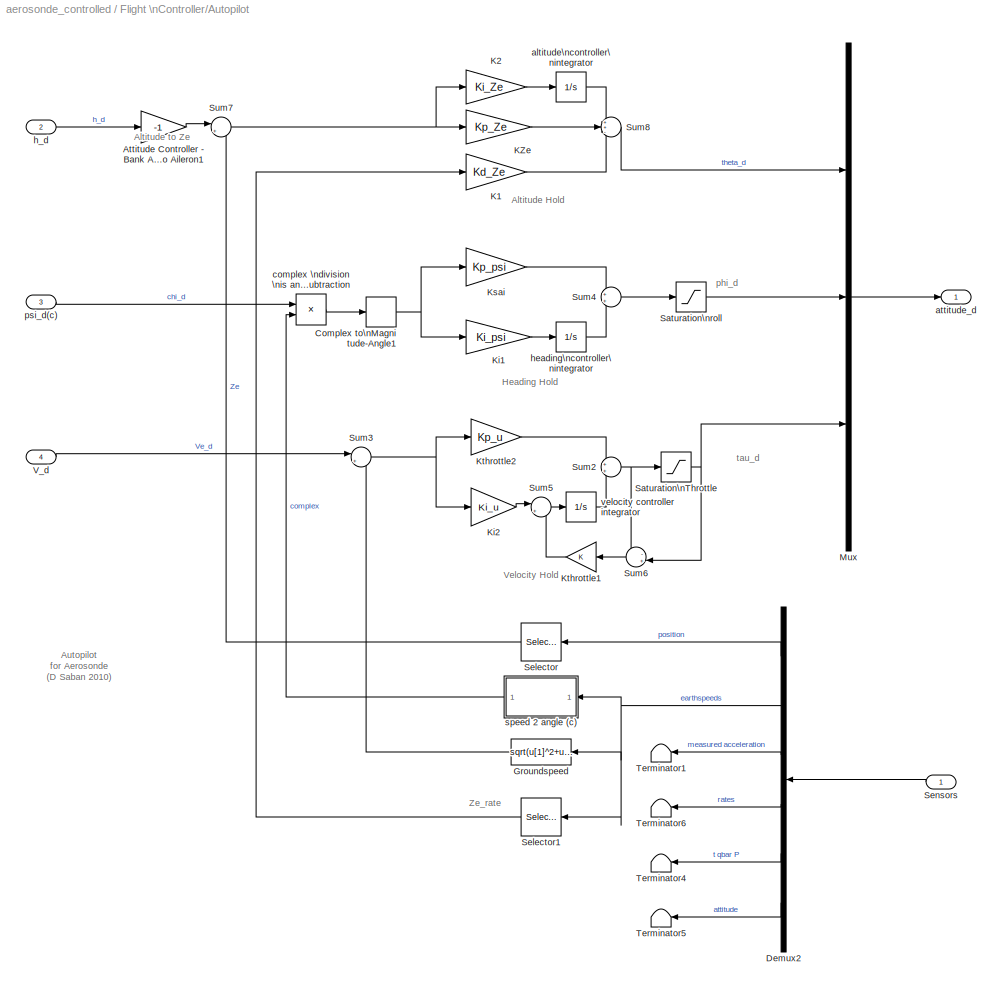
BLOCK [SubSystem] Flight \nController/Autopilot
  FunctionWithSeparateData = off
  MaskHideContents = off
  MinAlgLoopOccurrences = off
  Opaque = off
  Ports = [4, 1]
  PropExecContextOutsideSubsystem = off
  RTWSystemCode = Auto
  RequestExecContextInheritance = off
  SID = 1133
BLOCK [Gain] Flight \nController/Autopilot/Attitude Controller - Bank Angle to Aileron1
  Gain = -1
  OutDataTypeStr = Inherit: Inherit via internal rule
  ParamDataTypeStr = Inherit: Inherit via internal rule
  SID = 1108
  SaturateOnIntegerOverflow = off
BLOCK [ComplexToMagnitudeAngle] Flight \nController/Autopilot/Complex to\nMagnitude-Angle1
  Output = Angle
  Ports = [1, 1]
  SID = 1970
BLOCK [Demux] Flight \nController/Autopilot/Demux2
  DisplayOption = bar
  Outputs = [3 3 3 3 3 3]
  Ports = [1, 6]
  SID = 1150
BLOCK [Fcn] Flight \nController/Autopilot/Groundspeed
  Expr = sqrt(u[1]^2+u[2]^2+u[3]^2)
  SID = 1144
BLOCK [Gain] Flight \nController/Autopilot/K1
  Gain = Kd_Ze
  OutDataTypeStr = Inherit: Inherit via internal rule
  ParamDataTypeStr = Inherit: Inherit via internal rule
  SID = 1116
  SaturateOnIntegerOverflow = off
BLOCK [Gain] Flight \nController/Autopilot/K2
  Gain = Ki_Ze
  OutDataTypeStr = Inherit: Inherit via internal rule
  ParamDataTypeStr = Inherit: Inherit via internal rule
  SID = 1117
  SaturateOnIntegerOverflow = off
BLOCK [Gain] Flight \nController/Autopilot/KZe
  Gain = Kp_Ze
  OutDataTypeStr = Inherit: Inherit via internal rule
  ParamDataTypeStr = Inherit: Inherit via internal rule
  SID = 1118
  SaturateOnIntegerOverflow = off
BLOCK [Gain] Flight \nController/Autopilot/Ki1
  Gain = Ki_psi
  OutDataTypeStr = Inherit: Inherit via internal rule
  ParamDataTypeStr = Inherit: Inherit via internal rule
  SID = 1119
  SaturateOnIntegerOverflow = off
BLOCK [Gain] Flight \nController/Autopilot/Ki2
  Gain = Ki_u
  OutDataTypeStr = Inherit: Inherit via internal rule
  ParamDataTypeStr = Inherit: Inherit via internal rule
  SID = 1120
  SaturateOnIntegerOverflow = off
BLOCK [Gain] Flight \nController/Autopilot/Ksai
  Gain = Kp_psi
  OutDataTypeStr = Inherit: Inherit via internal rule
  ParamDataTypeStr = Inherit: Inherit via internal rule
  SID = 1121
  SaturateOnIntegerOverflow = off
BLOCK [Gain] Flight \nController/Autopilot/Kthrottle1
  OutDataTypeStr = Inherit: Inherit via internal rule
  ParamDataTypeStr = Inherit: Inherit via internal rule
  SID = 1122
  SaturateOnIntegerOverflow = off
BLOCK [Gain] Flight \nController/Autopilot/Kthrottle2
  Gain = Kp_u
  OutDataTypeStr = Inherit: Inherit via internal rule
  ParamDataTypeStr = Inherit: Inherit via internal rule
  SID = 1123
  SaturateOnIntegerOverflow = off
BLOCK [Mux] Flight \nController/Autopilot/Mux
  DisplayOption = bar
  Inputs = 3
  Ports = [3, 1]
  SID = 1151
BLOCK [Saturate] Flight \nController/Autopilot/Saturation\nThrottle
  InputPortMap = u0
  LowerLimit = 0
  Ports = [1, 1]
  SID = 1124
  UpperLimit = 1
  ZeroCross = off
BLOCK [Saturate] Flight \nController/Autopilot/Saturation\nroll
  InputPortMap = u0
  LowerLimit = -1.1
  Ports = [1, 1]
  SID = 1911
  UpperLimit = 1.1
  ZeroCross = off
BLOCK [Selector] Flight \nController/Autopilot/Selector
  IndexOptions = Index vector (dialog)
  Indices = 3
  InputPortWidth = 3
  OutputSizes = 1
  Ports = [1, 1]
  SID = 1160
BLOCK [Selector] Flight \nController/Autopilot/Selector1
  IndexOptions = Index vector (dialog)
  Indices = 3
  InputPortWidth = 3
  OutputSizes = 1
  Ports = [1, 1]
  SID = 1162
BLOCK [Inport] Flight \nController/Autopilot/Sensors
  IconDisplay = Port number
  SID = 1148
BLOCK [Sum] Flight \nController/Autopilot/Sum2
  IconShape = round
  InputSameDT = off
  OutDataTypeStr = Inherit: Inherit via internal rule
  Ports = [2, 1]
  SID = 1125
  SaturateOnIntegerOverflow = off
BLOCK [Sum] Flight \nController/Autopilot/Sum3
  IconShape = round
  InputSameDT = off
  Inputs = |+-
  OutDataTypeStr = Inherit: Inherit via internal rule
  Ports = [2, 1]
  SID = 1126
  SaturateOnIntegerOverflow = off
BLOCK [Sum] Flight \nController/Autopilot/Sum4
  IconShape = round
  InputSameDT = off
  OutDataTypeStr = Inherit: Inherit via internal rule
  Ports = [2, 1]
  SID = 1127
  SaturateOnIntegerOverflow = off
BLOCK [Sum] Flight \nController/Autopilot/Sum5
  IconShape = round
  InputSameDT = off
  Inputs = |++
  OutDataTypeStr = Inherit: Inherit via internal rule
  Ports = [2, 1]
  SID = 1128
  SaturateOnIntegerOverflow = off
BLOCK [Sum] Flight \nController/Autopilot/Sum6
  IconShape = round
  InputSameDT = off
  Inputs = -+|
  OutDataTypeStr = Inherit: Inherit via internal rule
  Ports = [2, 1]
  SID = 1129
  SaturateOnIntegerOverflow = off
BLOCK [Sum] Flight \nController/Autopilot/Sum7
  IconShape = round
  InputSameDT = off
  Inputs = |+-
  OutDataTypeStr = Inherit: Inherit via internal rule
  Ports = [2, 1]
  SID = 1130
  SaturateOnIntegerOverflow = off
BLOCK [Sum] Flight \nController/Autopilot/Sum8
  IconShape = round
  InputSameDT = off
  Inputs = ++-
  OutDataTypeStr = Inherit: Inherit via internal rule
  Ports = [3, 1]
  SID = 1131
  SaturateOnIntegerOverflow = off
BLOCK [Terminator] Flight \nController/Autopilot/Terminator1
  SID = 1153
BLOCK [Terminator] Flight \nController/Autopilot/Terminator4
  SID = 1155
BLOCK [Terminator] Flight \nController/Autopilot/Terminator5
  SID = 1156
BLOCK [Terminator] Flight \nController/Autopilot/Terminator6
  SID = 1157
BLOCK [Inport] Flight \nController/Autopilot/V_d
  IconDisplay = Port number
  Port = 4
  SID = 1969
BLOCK [Integrator] Flight \nController/Autopilot/altitude\ncontroller\nintegrator
  InitialCondition = theta_trim
  LimitOutput = on
  LowerSaturationLimit = -.3
  Ports = [1, 1]
  SID = 1115
  UpperSaturationLimit = .3
BLOCK [Outport] Flight \nController/Autopilot/attitude_d
  IconDisplay = Port number
  SID = 1163
BLOCK [Product] Flight \nController/Autopilot/complex \ndivision \nis angle \nsubtraction
  InputSameDT = off
  Inputs = */
  OutDataTypeStr = Inherit: Inherit via internal rule
  Ports = [2, 1]
  RndMeth = Floor
  SID = 1963
  SaturateOnIntegerOverflow = off
BLOCK [Inport] Flight \nController/Autopilot/h_d
  IconDisplay = Port number
  Port = 2
  SID = 1968
BLOCK [Integrator] Flight \nController/Autopilot/heading\ncontroller\nintegrator
  InitialCondition = chi_trim
  LimitOutput = on
  LowerSaturationLimit = -1.2
  Ports = [1, 1]
  SID = 1161
  UpperSaturationLimit = 1.2
BLOCK [Inport] Flight \nController/Autopilot/psi_d(c)
  IconDisplay = Port number
  Port = 3
  SID = 1165
BLOCK [SubSystem] Flight \nController/Autopilot/speed 2 angle (c)
  FunctionWithSeparateData = off
  MaskHideContents = off
  MinAlgLoopOccurrences = off
  Opaque = off
  Ports = [1, 1]
  PropExecContextOutsideSubsystem = off
  RTWSystemCode = Auto
  RequestExecContextInheritance = off
  SID = 1957
BLOCK [Demux] Flight \nController/Autopilot/speed 2 angle (c)/Demux
  DisplayOption = bar
  Outputs = 3
  Ports = [1, 3]
  SID = 1959
BLOCK [Outport] Flight \nController/Autopilot/speed 2 angle (c)/Re Im
  IconDisplay = Port number
  SID = 1962
BLOCK [RealImagToComplex] Flight \nController/Autopilot/speed 2 angle (c)/Real-Imag to\nComplex
  Input = Real and imag
  Ports = [2, 1]
  SID = 1960
BLOCK [Terminator] Flight \nController/Autopilot/speed 2 angle (c)/Terminator2
  SID = 1961
BLOCK [Inport] Flight \nController/Autopilot/speed 2 angle (c)/speed
  IconDisplay = Port number
  SID = 1958
BLOCK [Integrator] Flight \nController/Autopilot/velocity controller integrator
  InitialCondition = tau_trim
  Ports = [1, 1]
  SID = 1113
BLOCK [Inport] Flight \nController/Position\nreference
  IconDisplay = Port number
  Port = 2
  SID = 1660
BLOCK [SubSystem] Flight \nController/SAS
  FunctionWithSeparateData = off
  MaskHideContents = off
  MinAlgLoopOccurrences = off
  Opaque = off
  Ports = [2, 1]
  PropExecContextOutsideSubsystem = off
  RTWSystemCode = Auto
  RequestExecContextInheritance = off
  SID = 1008
BLOCK [Demux] Flight \nController/SAS/Demux1
  Outputs = 3
  Ports = [1, 3]
  SID = 1038
BLOCK [Demux] Flight \nController/SAS/Demux2
  DisplayOption = bar
  Outputs = [3 3 3 3 3 3]
  Ports = [1, 6]
  SID = 689
BLOCK [Demux] Flight \nController/SAS/Demux3
  Outputs = 3
  Ports = [1, 3]
  SID = 1039
BLOCK [Demux] Flight \nController/SAS/Demux4
  Outputs = 3
  Ports = [1, 3]
  SID = 1056
BLOCK [Gain] Flight \nController/SAS/Interlink
  Gain = Kari
  OutDataTypeStr = Inherit: Inherit via internal rule
  ParamDataTypeStr = Inherit: Inherit via internal rule
  SID = 1045
  SaturateOnIntegerOverflow = off
BLOCK [Mux] Flight \nController/SAS/Mux
  DisplayOption = bar
  Ports = [4, 1]
  SID = 1054
BLOCK [Constant] Flight \nController/SAS/Rudder trim
  SID = 1046
  Value = zeta_trim-Kari*xi_trim
BLOCK [Gain] Flight \nController/SAS/SAS - Pitch rate to Elevator
  Gain = Kq_eta
  OutDataTypeStr = Inherit: Inherit via internal rule
  ParamDataTypeStr = Inherit: Inherit via internal rule
  SID = 683
  SaturateOnIntegerOverflow = off
BLOCK [Gain] Flight \nController/SAS/SAS - Pitch to Aileron
  Gain = Ktheta_eta
  OutDataTypeStr = Inherit: Inherit via internal rule
  ParamDataTypeStr = Inherit: Inherit via internal rule
  SID = 685
  SaturateOnIntegerOverflow = off
BLOCK [Gain] Flight \nController/SAS/SAS - Roll rate to Aileron
  Gain = Kphi_xi
  OutDataTypeStr = Inherit: Inherit via internal rule
  ParamDataTypeStr = Inherit: Inherit via internal rule
  SID = 684
  SaturateOnIntegerOverflow = off
BLOCK [Gain] Flight \nController/SAS/SAS - Yaw rate to Rudder
  Gain = Kr_zeta
  OutDataTypeStr = Inherit: Inherit via internal rule
  ParamDataTypeStr = Inherit: Inherit via internal rule
  SID = 686
  SaturateOnIntegerOverflow = off
BLOCK [Inport] Flight \nController/SAS/Sensors
  IconDisplay = Port number
  SID = 1018
BLOCK [Sum] Flight \nController/SAS/Sum1
  IconShape = round
  InputSameDT = off
  Inputs = +--
  OutDataTypeStr = Inherit: Inherit via internal rule
  Ports = [3, 1]
  SID = 1047
  SaturateOnIntegerOverflow = off
BLOCK [Sum] Flight \nController/SAS/Sum2
  IconShape = round
  InputSameDT = off
  Inputs = |+-
  OutDataTypeStr = Inherit: Inherit via internal rule
  Ports = [2, 1]
  SID = 1048
  SaturateOnIntegerOverflow = off
BLOCK [Sum] Flight \nController/SAS/Sum4
  IconShape = round
  InputSameDT = off
  Inputs = ++-
  OutDataTypeStr = Inherit: Inherit via internal rule
  Ports = [3, 1]
  SID = 1049
  SaturateOnIntegerOverflow = off
BLOCK [Terminator] Flight \nController/SAS/Terminator
  SID = 1032
BLOCK [Terminator] Flight \nController/SAS/Terminator1
  SID = 1033
BLOCK [Terminator] Flight \nController/SAS/Terminator2
  SID = 1035
BLOCK [Terminator] Flight \nController/SAS/Terminator3
  SID = 1040
BLOCK [Terminator] Flight \nController/SAS/Terminator4
  SID = 1037
BLOCK [Terminator] Flight \nController/SAS/Terminator5
  SID = 1051
BLOCK [TransferFcn] Flight \nController/SAS/Washout
  Denominator = [Tr 1]
  Numerator = [Tr 0]
  SID = 687
BLOCK [Outport] Flight \nController/SAS/controls
  IconDisplay = Port number
  SID = 1055
BLOCK [Inport] Flight \nController/SAS/demands
  IconDisplay = Port number
  Port = 2
  SID = 1057
BLOCK [Inport] Flight \nController/Sensors
  IconDisplay = Port number
  SID = 1103
BLOCK [Terminator] Flight \nController/Terminator
  SID = 1699
BLOCK [SubSystem] Flight \nController/Trajectory\ntracker
  FunctionWithSeparateData = off
  MaskHideContents = off
  MinAlgLoopOccurrences = off
  Opaque = off
  Ports = [3, 4]
  PropExecContextOutsideSubsystem = off
  RTWSystemCode = Auto
  RequestExecContextInheritance = off
  SID = 1639
BLOCK [Saturate] Flight \nController/Trajectory\ntracker/+//- 40 deg
  InputPortMap = u0
  LowerLimit = -40*pi/180
  Ports = [1, 1]
  SID = 1168
  UpperLimit = +40.0*pi/180
  ZeroCross = off
BLOCK [Saturate] Flight \nController/Trajectory\ntracker/+//- 7.5 m//s1
  InputPortMap = u0
  LowerLimit = 18
  Ports = [1, 1]
  SID = 1897
  UpperLimit = 90
  ZeroCross = off
BLOCK [SubSystem] Flight \nController/Trajectory\ntracker/Calculate along and \ncross track errors
  ErrorFcn = Stateflow.Translate.translate
  FunctionWithSeparateData = off
  MaskDescription = Embedded MATLAB block
  MaskDisplay = bgColor = Simulink.Root.ColorString2Rgb(get_param(gcbh, 'BackgroundColor')); image(imread('private/eml_membrane_16.png','png','BackgroundColor',bgColor(1:3)),'center'); disp([10 10 'track']);
  MaskHideContents = off
  MaskIconFrame = on
  MaskIconOpaque = off
  MaskIconRotate = none
  MaskIconUnits = normalized
  MaskPortRotate = default
  MaskSelfModifiable = on
  MaskType = Stateflow
  MinAlgLoopOccurrences = off
  Opaque = off
  PermitHierarchicalResolution = ExplicitOnly
  Ports = [4, 1]
  PropExecContextOutsideSubsystem = off
  RTWSystemCode = Auto
  RequestExecContextInheritance = off
  SID = 1625
  TreatAsAtomicUnit = on
BLOCK [Demux] Flight \nController/Trajectory\ntracker/Calculate along and \ncross track errors/ Demux 
  Outputs = 1
  Ports = [1, 1]
  SID = 1625::14
BLOCK [S-Function] Flight \nController/Trajectory\ntracker/Calculate along and \ncross track errors/ SFunction 
  EnableBusSupport = on
  FunctionName = sf_sfun
  PortCounts = [4 2]
  Ports = [4, 2]
  SID = 1625::13
  Tag = Stateflow S-Function aerosonde_controlled 2
BLOCK [Terminator] Flight \nController/Trajectory\ntracker/Calculate along and \ncross track errors/ Terminator 
  SID = 1625::16
BLOCK [Inport] Flight \nController/Trajectory\ntracker/Calculate along and \ncross track errors/Pos_UAV
  IconDisplay = Port number
  Port = 2
  SID = 1625::2
BLOCK [Inport] Flight \nController/Trajectory\ntracker/Calculate along and \ncross track errors/Pos_VL
  IconDisplay = Port number
  Port = 4
  SID = 1625::4
BLOCK [Inport] Flight \nController/Trajectory\ntracker/Calculate along and \ncross track errors/Vel_UAV
  IconDisplay = Port number
  SID = 1625::1
BLOCK [Inport] Flight \nController/Trajectory\ntracker/Calculate along and \ncross track errors/Vel_VL
  IconDisplay = Port number
  Port = 3
  SID = 1625::3
BLOCK [Outport] Flight \nController/Trajectory\ntracker/Calculate along and \ncross track errors/Y
  IconDisplay = Port number
  SID = 1625::8
BLOCK [Demux] Flight \nController/Trajectory\ntracker/Demux1
  DisplayOption = bar
  Outputs = [3 3 3 3 3 3]
  Ports = [1, 6]
  SID = 1650
BLOCK [Demux] Flight \nController/Trajectory\ntracker/Demux2
  DisplayOption = bar
  Outputs = 3
  Ports = [1, 3]
  SID = 1624
BLOCK [Gain] Flight \nController/Trajectory\ntracker/K4
  Gain = Ki_Ye
  OutDataTypeStr = Inherit: Inherit via internal rule
  ParamDataTypeStr = Inherit: Inherit via internal rule
  SID = 1627
  SaturateOnIntegerOverflow = off
BLOCK [Gain] Flight \nController/Trajectory\ntracker/KZe1
  Gain = Kp_Ye
  OutDataTypeStr = Inherit: Inherit via internal rule
  ParamDataTypeStr = Inherit: Inherit via internal rule
  SID = 1628
  SaturateOnIntegerOverflow = off
BLOCK [Gain] Flight \nController/Trajectory\ntracker/Kthrottle1
  Gain = -1
  OutDataTypeStr = Inherit: Inherit via internal rule
  ParamDataTypeStr = Inherit: Inherit via internal rule
  SID = 1701
  SaturateOnIntegerOverflow = off
BLOCK [Gain] Flight \nController/Trajectory\ntracker/Kthrottle3
  OutDataTypeStr = Inherit: Inherit via internal rule
  ParamDataTypeStr = Inherit: Inherit via internal rule
  SID = 1629
  SaturateOnIntegerOverflow = off
BLOCK [Gain] Flight \nController/Trajectory\ntracker/Ky1
  Gain = Kd_Ye
  OutDataTypeStr = Inherit: Inherit via internal rule
  ParamDataTypeStr = Inherit: Inherit via internal rule
  SID = 1630
  SaturateOnIntegerOverflow = off
BLOCK [Gain] Flight \nController/Trajectory\ntracker/Ky2
  Gain = Kp_Xe
  OutDataTypeStr = Inherit: Inherit via internal rule
  ParamDataTypeStr = Inherit: Inherit via internal rule
  SID = 1631
  SaturateOnIntegerOverflow = off
BLOCK [MagnitudeAngleToComplex] Flight \nController/Trajectory\ntracker/Magnitude-Angle\nto Complex
  ConstantPart = 1
  Input = Angle
  Ports = [1, 1]
  SID = 1975
  ScaleReciprocalGainFactor = on
BLOCK [MagnitudeAngleToComplex] Flight \nController/Trajectory\ntracker/Magnitude-Angle\nto Complex1
  ConstantPart = 1
  Input = Angle
  Ports = [1, 1]
  SID = 1976
  ScaleReciprocalGainFactor = on
BLOCK [Inport] Flight \nController/Trajectory\ntracker/Pos_ref
  IconDisplay = Port number
  Port = 2
  SID = 1646
BLOCK [Selector] Flight \nController/Trajectory\ntracker/Selector
  IndexOptions = Index vector (dialog)
  Indices = 3
  InputPortWidth = 3
  OutputSizes = 1
  Ports = [1, 1]
  SID = 1658
BLOCK [Inport] Flight \nController/Trajectory\ntracker/Sensors
  IconDisplay = Port number
  PortDimensions = 18
  SID = 1649
BLOCK [Sum] Flight \nController/Trajectory\ntracker/Sum1
  IconShape = round
  InputSameDT = off
  Inputs = |-+
  OutDataTypeStr = Inherit: Inherit via internal rule
  Ports = [2, 1]
  SID = 1708
  SaturateOnIntegerOverflow = off
BLOCK [Sum] Flight \nController/Trajectory\ntracker/Sum10
  IconShape = round
  InputSameDT = off
  Inputs = ---
  OutDataTypeStr = Inherit: Inherit via internal rule
  Ports = [3, 1]
  SID = 1633
  SaturateOnIntegerOverflow = off
BLOCK [Sum] Flight \nController/Trajectory\ntracker/Sum11
  IconShape = round
  InputSameDT = off
  Inputs = |-+
  OutDataTypeStr = Inherit: Inherit via internal rule
  Ports = [2, 1]
  SID = 1634
  SaturateOnIntegerOverflow = off
BLOCK [Sum] Flight \nController/Trajectory\ntracker/Sum13
  IconShape = round
  InputSameDT = off
  Inputs = ++|
  OutDataTypeStr = Inherit: Inherit via internal rule
  Ports = [2, 1]
  SID = 1636
  SaturateOnIntegerOverflow = off
BLOCK [Terminator] Flight \nController/Trajectory\ntracker/Terminator1
  SID = 1651
BLOCK [Terminator] Flight \nController/Trajectory\ntracker/Terminator4
  SID = 1652
BLOCK [Terminator] Flight \nController/Trajectory\ntracker/Terminator5
  SID = 1653
BLOCK [Terminator] Flight \nController/Trajectory\ntracker/Terminator6
  SID = 1654
BLOCK [Outport] Flight \nController/Trajectory\ntracker/V_d
  IconDisplay = Port number
  Port = 3
  SID = 1966
BLOCK [Inport] Flight \nController/Trajectory\ntracker/Vel_ref
  IconDisplay = Port number
  Port = 3
  SID = 1647
BLOCK [Integrator] Flight \nController/Trajectory\ntracker/XTE controller integrator
  Ports = [1, 1]
  SID = 1626
BLOCK [Product] Flight \nController/Trajectory\ntracker/complex format -\n angles are added
  InputSameDT = off
  OutDataTypeStr = Inherit: Inherit via internal rule
  Ports = [2, 1]
  SID = 1965
  SaturateOnIntegerOverflow = off
BLOCK [Outport] Flight \nController/Trajectory\ntracker/errors
  IconDisplay = Port number
  Port = 4
  SID = 1698
BLOCK [Outport] Flight \nController/Trajectory\ntracker/h_d
  IconDisplay = Port number
  SID = 1967
BLOCK [Outport] Flight \nController/Trajectory\ntracker/psi_d\n(c)
  IconDisplay = Port number
  Port = 2
  SID = 1659
BLOCK [Fcn] Flight \nController/Trajectory\ntracker/reference heading
  Expr = atan2(u[2],u[1])
  SID = 1898
BLOCK [Fcn] Flight \nController/Trajectory\ntracker/reference speed
  Expr = sqrt(u[1]^2+u[2]^2+u[3]^2)
  SID = 1709
BLOCK [Inport] Flight \nController/Velocity\nreference
  IconDisplay = Port number
  Port = 3
  SID = 1661
BLOCK [Outport] Flight \nController/controls
  IconDisplay = Port number
  SID = 1102
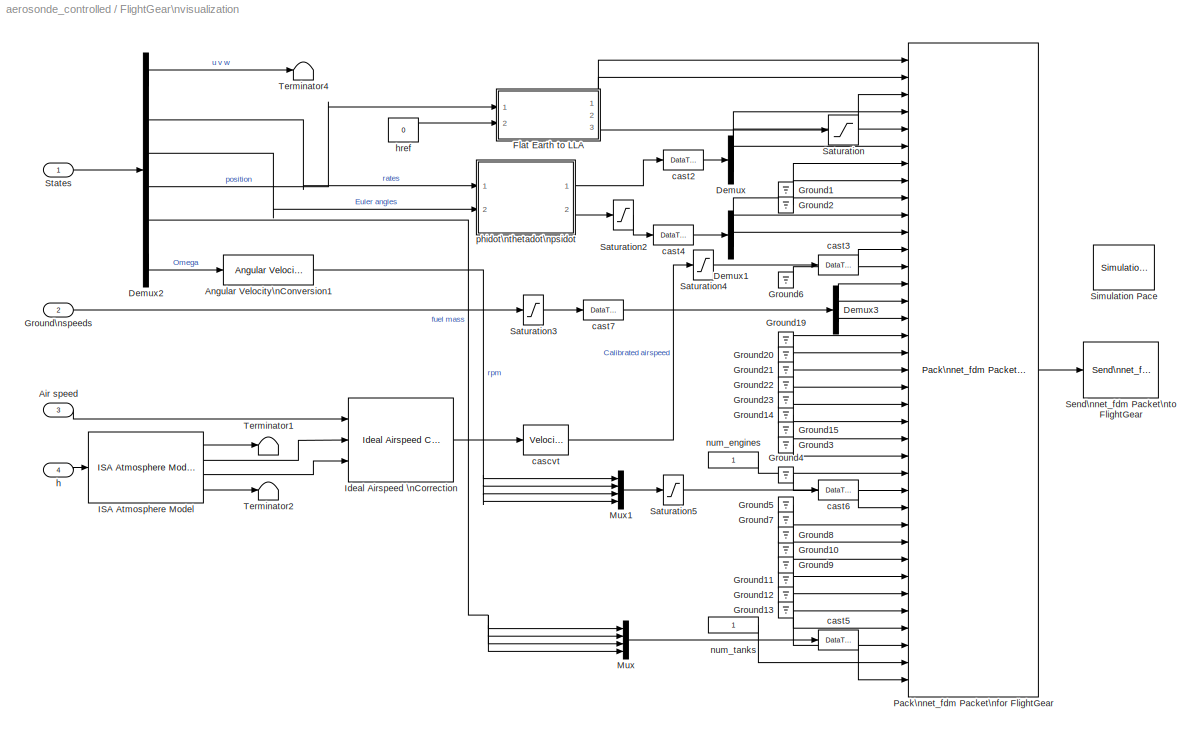
BLOCK [SubSystem] FlightGear\nvisualization
  FunctionWithSeparateData = off
  MaskHideContents = off
  MinAlgLoopOccurrences = off
  Opaque = off
  Ports = [4]
  PropExecContextOutsideSubsystem = off
  RTWSystemCode = Auto
  RequestExecContextInheritance = off
  SID = 1756
  TreatAsAtomicUnit = on
BLOCK [Inport] FlightGear\nvisualization/Air speed
  IconDisplay = Port number
  Port = 3
  SID = 1832
BLOCK [Reference] FlightGear\nvisualization/Angular Velocity\nConversion1  REF=aerolibconvert2/Angular Velocity\nConversion
  FunctionWithSeparateData = off
  GeneratePreprocessorConditionals = off
  IU = rad/s
  OU = rpm
  Ports = [1, 1]
  RTWMemSecDataConstants = Inherit from model
  RTWMemSecDataInternal = Inherit from model
  RTWMemSecDataParameters = Inherit from model
  RTWMemSecFuncExecute = Inherit from model
  RTWMemSecFuncInitTerm = Inherit from model
  SID = 1844
  ShowPortLabels = FromPortIcon
  SourceBlock = aerolibconvert2/Angular Velocity\nConversion
  SourceType = Angular Velocity Conversion
  SystemSampleTime = -1
BLOCK [Demux] FlightGear\nvisualization/Demux
  DisplayOption = bar
  Outputs = 3
  Ports = [1, 3]
  SID = 1763
BLOCK [Demux] FlightGear\nvisualization/Demux1
  DisplayOption = bar
  Outputs = 3
  Ports = [1, 3]
  SID = 1764
BLOCK [Demux] FlightGear\nvisualization/Demux2
  Outputs = [3 3 3 3 1 1]
  Ports = [1, 6]
  SID = 1765
BLOCK [Demux] FlightGear\nvisualization/Demux3
  DisplayOption = bar
  Outputs = 3
  Ports = [1, 3]
  SID = 1766
BLOCK [SubSystem] FlightGear\nvisualization/Flat Earth to LLA
  FunctionWithSeparateData = off
  MaskHideContents = off
  MinAlgLoopOccurrences = off
  Opaque = off
  Ports = [2, 3]
  PropExecContextOutsideSubsystem = off
  RTWSystemCode = Auto
  RequestExecContextInheritance = off
  SID = 1768
BLOCK [Reference] FlightGear\nvisualization/Flat Earth to LLA/Angle Conversion  REF=aerolibconvert2/Angle Conversion
  FunctionWithSeparateData = off
  GeneratePreprocessorConditionals = off
  IU = deg
  OU = rad
  Ports = [1, 1]
  RTWMemSecDataConstants = Inherit from model
  RTWMemSecDataInternal = Inherit from model
  RTWMemSecDataParameters = Inherit from model
  RTWMemSecFuncExecute = Inherit from model
  RTWMemSecFuncInitTerm = Inherit from model
  SID = 1849
  ShowPortLabels = FromPortIcon
  SourceBlock = aerolibconvert2/Angle Conversion
  SourceType = Angle Conversion
  SystemSampleTime = -1
BLOCK [Demux] FlightGear\nvisualization/Flat Earth to LLA/Demux2
  Outputs = 2
  Ports = [1, 2]
  SID = 1771
BLOCK [Reference] FlightGear\nvisualization/Flat Earth to LLA/Flat Earth to LLA  REF=aerolibtransform2/Flat Earth to LLA
  F = 1/298.257223563
  FunctionWithSeparateData = off
  GeneratePreprocessorConditionals = off
  LL0 = [latitude longitude]
  Ports = [2, 2]
  R = 6378137
  RTWMemSecDataConstants = Inherit from model
  RTWMemSecDataInternal = Inherit from model
  RTWMemSecDataParameters = Inherit from model
  RTWMemSecFuncExecute = Inherit from model
  RTWMemSecFuncInitTerm = Inherit from model
  SID = 1772
  ShowPortLabels = FromPortIcon
  SourceBlock = aerolibtransform2/Flat Earth to LLA
  SourceType = Flat Earth to LLA
  SystemSampleTime = -1
  psi = 0
  ptype = Earth (WGS84)
  units = Metric (MKS)
BLOCK [Inport] FlightGear\nvisualization/Flat Earth to LLA/Xe
  IconDisplay = Port number
  SID = 1769
BLOCK [Outport] FlightGear\nvisualization/Flat Earth to LLA/altitude h
  IconDisplay = Port number
  Port = 3
  SID = 1775
BLOCK [Inport] FlightGear\nvisualization/Flat Earth to LLA/altitude0
  IconDisplay = Port number
  Port = 2
  SID = 1770
BLOCK [Outport] FlightGear\nvisualization/Flat Earth to LLA/latitude mu
  IconDisplay = Port number
  Port = 2
  SID = 1774
BLOCK [Outport] FlightGear\nvisualization/Flat Earth to LLA/longitude l
  IconDisplay = Port number
  SID = 1773
BLOCK [Ground] FlightGear\nvisualization/Ground1
  SID = 1777
BLOCK [Ground] FlightGear\nvisualization/Ground10
  SID = 1778
BLOCK [Ground] FlightGear\nvisualization/Ground11
  SID = 1779
BLOCK [Ground] FlightGear\nvisualization/Ground12
  SID = 1780
BLOCK [Ground] FlightGear\nvisualization/Ground13
  SID = 1781
BLOCK [Ground] FlightGear\nvisualization/Ground14
  SID = 1782
BLOCK [Ground] FlightGear\nvisualization/Ground15
  SID = 1783
BLOCK [Ground] FlightGear\nvisualization/Ground19
  SID = 1784
BLOCK [Ground] FlightGear\nvisualization/Ground2
  SID = 1785
BLOCK [Ground] FlightGear\nvisualization/Ground20
  SID = 1786
BLOCK [Ground] FlightGear\nvisualization/Ground21
  SID = 1787
BLOCK [Ground] FlightGear\nvisualization/Ground22
  SID = 1788
BLOCK [Ground] FlightGear\nvisualization/Ground23
  SID = 1789
BLOCK [Ground] FlightGear\nvisualization/Ground3
  SID = 1790
BLOCK [Ground] FlightGear\nvisualization/Ground4
  SID = 1791
BLOCK [Ground] FlightGear\nvisualization/Ground5
  SID = 1792
BLOCK [Ground] FlightGear\nvisualization/Ground6
  SID = 1793
BLOCK [Ground] FlightGear\nvisualization/Ground7
  SID = 1794
BLOCK [Ground] FlightGear\nvisualization/Ground8
  SID = 1795
BLOCK [Ground] FlightGear\nvisualization/Ground9
  SID = 1796
BLOCK [Inport] FlightGear\nvisualization/Ground\nspeeds
  IconDisplay = Port number
  Port = 2
  SID = 1760
BLOCK [Reference] FlightGear\nvisualization/ISA Atmosphere Model  REF=aerolibatmos2/ISA Atmosphere Model
  FunctionWithSeparateData = off
  GeneratePreprocessorConditionals = off
  L = 0.0065
  P0 = 101325
  Ports = [1, 4]
  R = 287.0531
  RTWMemSecDataConstants = Inherit from model
  RTWMemSecDataInternal = Inherit from model
  RTWMemSecDataParameters = Inherit from model
  RTWMemSecFuncExecute = Inherit from model
  RTWMemSecFuncInitTerm = Inherit from model
  SID = 1831
  ShowPortLabels = FromPortIcon
  SourceBlock = aerolibatmos2/ISA Atmosphere Model
  SourceType = International Standard Atmosphere Model
  SystemSampleTime = -1
  T0 = 288.15
  custom = off
  g = 9.80665
  gamma = 1.4
  h_strat = 20000
  h_trop = 11000
  rho0 = 1.225
BLOCK [Reference] FlightGear\nvisualization/Ideal Airspeed \nCorrection  REF=aerolibasang/Ideal Airspeed Correction
  FunctionWithSeparateData = off
  GeneratePreprocessorConditionals = off
  Ports = [3, 1]
  RTWMemSecDataConstants = Inherit from model
  RTWMemSecDataInternal = Inherit from model
  RTWMemSecDataParameters = Inherit from model
  RTWMemSecFuncExecute = Inherit from model
  RTWMemSecFuncInitTerm = Inherit from model
  SID = 1797
  ShowPortLabels = FromPortIcon
  SourceBlock = aerolibasang/Ideal Airspeed Correction
  SourceType = Ideal Airspeed Correction
  SystemSampleTime = -1
  action = Warning
  units = Metric (MKS)
  vel_in = TAS
  vel_out_cas = TAS
  vel_out_eas = CAS
  vel_out_tas = CAS
BLOCK [Mux] FlightGear\nvisualization/Mux
  DisplayOption = bar
  Ports = [4, 1]
  SID = 1839
BLOCK [Mux] FlightGear\nvisualization/Mux1
  DisplayOption = bar
  Ports = [4, 1]
  SID = 1840
BLOCK [Reference] FlightGear\nvisualization/Pack\nnet_fdm Packet\nfor FlightGear  REF=aerolibfltsims/Pack\nnet_fdm Packet\nfor FlightGear
  AttributesFormatString = FG VERSION: %<FlightGearVersion>
  FlightGearVersion = v2.0
  Ports = [37, 1]
  SID = 1798
  SampleTime = -1
  ShowControlSurfacePositionInputs = off
  ShowEngineFuelInputs = on
  ShowEnvironmentInputs = off
  ShowLandingGearInputs = off
  ShowPositionAttitudeInputs = on
  ShowVelocityAccelerationInputs = on
  SourceBlock = aerolibfltsims/Pack\nnet_fdm Packet\nfor FlightGear
  SourceType = FlightGearPackNetFdm
BLOCK [Saturate] FlightGear\nvisualization/Saturation
  InputPortMap = u0
  LowerLimit = -1e5
  Ports = [1, 1]
  SID = 1903
  UpperLimit = 1e8
BLOCK [Saturate] FlightGear\nvisualization/Saturation2
  InputPortMap = u0
  LowerLimit = -1e3
  Ports = [1, 1]
  SID = 1906
  UpperLimit = 1e3
BLOCK [Saturate] FlightGear\nvisualization/Saturation3
  InputPortMap = u0
  LowerLimit = -1e4
  Ports = [1, 1]
  SID = 1907
  UpperLimit = 1e4
BLOCK [Saturate] FlightGear\nvisualization/Saturation4
  InputPortMap = u0
  LowerLimit = -1e4
  Ports = [1, 1]
  SID = 1908
  UpperLimit = 1e4
BLOCK [Saturate] FlightGear\nvisualization/Saturation5
  InputPortMap = u0
  LowerLimit = 0
  Ports = [1, 1]
  SID = 1909
  UpperLimit = 1e6
BLOCK [Reference] FlightGear\nvisualization/Send\nnet_fdm Packet\nto FlightGear  REF=aerolibfltsims/Send\nnet_fdm Packet\nto FlightGear
  DestinationIpAddress = 127.0.0.1
  DestinationPort = 5502
  LocalIpPort = -1
  Ports = [1]
  SID = 1799
  SampleTime = -1
  SourceBlock = aerolibfltsims/Send\nnet_fdm Packet\nto FlightGear
  SourceType = FlightGearSendNetFdm
  varLen = off
BLOCK [Reference] FlightGear\nvisualization/Simulation Pace  REF=aerolibanimutils/Simulation Pace
  AttributesFormatString = %<SimulationPace> sec/sec
  OutputPaceError = off
  Ports = []
  SID = 1838
  SampleTime = .2
  SimulationPace = 1
  SleepMode = MATLAB Thread
  SourceBlock = aerolibanimutils/Simulation Pace
  SourceType = Simulation Pace
BLOCK [Inport] FlightGear\nvisualization/States
  IconDisplay = Port number
  SID = 1757
BLOCK [Terminator] FlightGear\nvisualization/Terminator1
  SID = 1833
BLOCK [Terminator] FlightGear\nvisualization/Terminator2
  SID = 1834
BLOCK [Terminator] FlightGear\nvisualization/Terminator4
  SID = 1801
BLOCK [Reference] FlightGear\nvisualization/cascvt  REF=aerolibconvert/Velocity Conversion
  FunctionWithSeparateData = off
  GeneratePreprocessorConditionals = off
  IU = m/s
  OU = kts
  Ports = [1, 1]
  RTWMemSecDataConstants = Inherit from model
  RTWMemSecDataInternal = Inherit from model
  RTWMemSecDataParameters = Inherit from model
  RTWMemSecFuncExecute = Inherit from model
  RTWMemSecFuncInitTerm = Inherit from model
  SID = 1802
  ShowPortLabels = FromPortIcon
  SourceBlock = aerolibconvert/Velocity Conversion
  SourceType = Velocity Conversion
  SystemSampleTime = -1
BLOCK [DataTypeConversion] FlightGear\nvisualization/cast2
  OutDataTypeStr = single
  RndMeth = Floor
  SID = 1805
BLOCK [DataTypeConversion] FlightGear\nvisualization/cast3
  OutDataTypeStr = single
  RndMeth = Floor
  SID = 1806
BLOCK [DataTypeConversion] FlightGear\nvisualization/cast4
  OutDataTypeStr = single
  RndMeth = Floor
  SID = 1807
BLOCK [DataTypeConversion] FlightGear\nvisualization/cast5
  OutDataTypeStr = single
  RndMeth = Floor
  SID = 1808
BLOCK [DataTypeConversion] FlightGear\nvisualization/cast6
  OutDataTypeStr = single
  RndMeth = Floor
  SID = 1809
BLOCK [DataTypeConversion] FlightGear\nvisualization/cast7
  OutDataTypeStr = single
  RndMeth = Floor
  SID = 1842
BLOCK [Inport] FlightGear\nvisualization/h
  IconDisplay = Port number
  Port = 4
  SID = 1835
BLOCK [Constant] FlightGear\nvisualization/href
  SID = 1811
  Value = 0
  VectorParams1D = off
BLOCK [Constant] FlightGear\nvisualization/num_engines
  OutDataTypeStr = uint32
  SID = 1812
BLOCK [Constant] FlightGear\nvisualization/num_tanks
  OutDataTypeStr = uint32
  SID = 1813
BLOCK [SubSystem] FlightGear\nvisualization/phidot\nthetadot\npsidot
  FunctionWithSeparateData = off
  MaskHideContents = off
  MinAlgLoopOccurrences = off
  Opaque = off
  Ports = [2, 2]
  PropExecContextOutsideSubsystem = off
  RTWSystemCode = Auto
  RequestExecContextInheritance = off
  SID = 1814
BLOCK [Concatenate] FlightGear\nvisualization/phidot\nthetadot\npsidot/Concatenate1
  Mode = Vector
  NumInputs = 3
  Ports = [3, 1]
  SID = 1817
BLOCK [Concatenate] FlightGear\nvisualization/phidot\nthetadot\npsidot/Concatenate2
  Mode = Vector
  NumInputs = 3
  Ports = [3, 1]
  SID = 1818
BLOCK [Reference] FlightGear\nvisualization/phidot\nthetadot\npsidot/SinCos  REF=aerolibobsolete/SinCos
  FunctionWithSeparateData = off
  GeneratePreprocessorConditionals = off
  Ports = [1, 2]
  RTWMemSecDataConstants = Inherit from model
  RTWMemSecDataInternal = Inherit from model
  RTWMemSecDataParameters = Inherit from model
  RTWMemSecFuncExecute = Inherit from model
  RTWMemSecFuncInitTerm = Inherit from model
  SID = 1819
  ShowPortLabels = FromPortIcon
  SourceBlock = aerolibobsolete/SinCos
  SourceType = SinCos
  SystemSampleTime = -1
BLOCK [Trigonometry] FlightGear\nvisualization/phidot\nthetadot\npsidot/keep angles \nin range [-pi pi]
  Operator = atan2
  Ports = [2, 1]
  SID = 1979
BLOCK [Inport] FlightGear\nvisualization/phidot\nthetadot\npsidot/phi\ntheta\npsi
  IconDisplay = Port number
  Port = 2
  SID = 1816
BLOCK [Fcn] FlightGear\nvisualization/phidot\nthetadot\npsidot/phidot
  Expr = u[1]+(u[2]*u[4]+u[3]*u[7])*(u[5]/u[8])
  SID = 1820
BLOCK [Inport] FlightGear\nvisualization/phidot\nthetadot\npsidot/pqr
  IconDisplay = Port number
  SID = 1815
BLOCK [Fcn] FlightGear\nvisualization/phidot\nthetadot\npsidot/psidot
  Expr = (u[2]*u[4]+u[3]*u[7])/u[8]
  SID = 1821
BLOCK [Outport] FlightGear\nvisualization/phidot\nthetadot\npsidot/ptp_dot
  IconDisplay = Port number
  Port = 2
  SID = 1824
BLOCK [Outport] FlightGear\nvisualization/phidot\nthetadot\npsidot/ptp_earth
  IconDisplay = Port number
  SID = 1823
BLOCK [Fcn] FlightGear\nvisualization/phidot\nthetadot\npsidot/thetadot
  Expr = u[2]*u[7]-u[3]*u[4]
  SID = 1822
BLOCK [From] From
  GotoTag = states
  SID = 1828
BLOCK [From] From1
  GotoTag = states
  SID = 1829
BLOCK [Reference] Generate\nRun Script\n(Cranfield Airport)  REF=aerolibfltsims/Generate\nRun Script
  AirportId = EGTC
  DestinationPort = 5502
  FlightGearBaseDirectory = <path>
  FunctionWithSeparateData = off
  GenerateFile = off
  GeneratePreprocessorConditionals = off
  GeometryModelName = Aerosonde
  InitialAltitude = h_trim*3.28083
  InitialHeading = 0
  OffsetAzimuth = 0
  OffsetDistance = 4.72
  OutputFileName = runfg.bat
  Ports = []
  RTWMemSecDataConstants = Inherit from model
  RTWMemSecDataInternal = Inherit from model
  RTWMemSecDataParameters = Inherit from model
  RTWMemSecFuncExecute = Inherit from model
  RTWMemSecFuncInitTerm = Inherit from model
  RunwayId = 3
  SID = 1837
  ShowPortLabels = FromPortIcon
  SourceBlock = aerolibfltsims/Generate\nRun Script
  SourceType = Generate FlightGear Run Script
  SystemSampleTime = -1
BLOCK [Goto] Goto1
  GotoTag = states
  SID = 1755
  TagVisibility = local
BLOCK [Display] Heading
  Decimation = 1
  Lockdown = off
  Ports = [1]
  SID = 327
BLOCK [Mux] Mux
  DisplayOption = bar
  Inputs = [1 4 1 1]
  Ports = [4, 1]
  SID = 1030
BLOCK [Mux] Mux1
  DisplayOption = bar
  Inputs = [15 3]
  Ports = [2, 1]
  SID = 1679
BLOCK [Display] Pitch angle
  Decimation = 1
  Lockdown = off
  Ports = [1]
  SID = 328
BLOCK [Reference] Radians\nto Degrees  REF=simulink_extras/Transformations/Radians\nto Degrees
  FunctionWithSeparateData = off
  GeneratePreprocessorConditionals = off
  Ports = [1, 1]
  RTWMemSecDataConstants = Inherit from model
  RTWMemSecDataInternal = Inherit from model
  RTWMemSecDataParameters = Inherit from model
  RTWMemSecFuncExecute = Inherit from model
  RTWMemSecFuncInitTerm = Inherit from model
  SID = 329
  ShowPortLabels = FromPortIcon
  SourceBlock = simulink_extras/Transformations/Radians\nto Degrees
  SourceType = RadiansToDegrees
  SystemSampleTime = -1
BLOCK [Reference] Radians\nto Degrees1  REF=simulink_extras/Transformations/Radians\nto Degrees
  FunctionWithSeparateData = off
  GeneratePreprocessorConditionals = off
  Ports = [1, 1]
  RTWMemSecDataConstants = Inherit from model
  RTWMemSecDataInternal = Inherit from model
  RTWMemSecDataParameters = Inherit from model
  RTWMemSecFuncExecute = Inherit from model
  RTWMemSecFuncInitTerm = Inherit from model
  SID = 330
  ShowPortLabels = FromPortIcon
  SourceBlock = simulink_extras/Transformations/Radians\nto Degrees
  SourceType = RadiansToDegrees
  SystemSampleTime = -1
BLOCK [Reference] Radians\nto Degrees2  REF=simulink_extras/Transformations/Radians\nto Degrees
  FunctionWithSeparateData = off
  GeneratePreprocessorConditionals = off
  Ports = [1, 1]
  RTWMemSecDataConstants = Inherit from model
  RTWMemSecDataInternal = Inherit from model
  RTWMemSecDataParameters = Inherit from model
  RTWMemSecFuncExecute = Inherit from model
  RTWMemSecFuncInitTerm = Inherit from model
  SID = 331
  ShowPortLabels = FromPortIcon
  SourceBlock = simulink_extras/Transformations/Radians\nto Degrees
  SourceType = RadiansToDegrees
  SystemSampleTime = -1
BLOCK [Constant] Reset
  SID = 332
  Value = 0
BLOCK [Selector] Selector
  IndexOptions = Index vector (dialog)
  Indices = [10 11]
  InputPortWidth = 14
  OutputSizes = 1
  Ports = [1, 1]
  SID = 1690
BLOCK [Display] Sideslip
  Decimation = 1
  Lockdown = off
  Ports = [1]
  SID = 333
BLOCK [Terminator] Terminator
  SID = 334
BLOCK [Terminator] Terminator1
  SID = 1883
BLOCK [Terminator] Terminator2
  SID = 336
BLOCK [Terminator] Terminator3
  SID = 337
BLOCK [Terminator] Terminator4
  SID = 338
BLOCK [Terminator] Terminator5
  SID = 1884
BLOCK [Terminator] Terminator7
  SID = 1893
BLOCK [SubSystem] Trajectory\nreference \n(straight)
  FunctionWithSeparateData = off
  MaskHideContents = off
  MinAlgLoopOccurrences = off
  Opaque = off
  Ports = [0, 2]
  PropExecContextOutsideSubsystem = off
  RTWSystemCode = Auto
  RequestExecContextInheritance = off
  SID = 1662
BLOCK [Integrator] Trajectory\nreference \n(straight)/Integrator1
  Ports = [1, 1]
  SID = 1856
BLOCK [Integrator] Trajectory\nreference \n(straight)/Integrator3
  Ports = [1, 1]
  SID = 1663
BLOCK [Integrator] Trajectory\nreference \n(straight)/Integrator4
  Ports = [1, 1]
  SID = 1664
BLOCK [Integrator] Trajectory\nreference \n(straight)/Integrator5
  Ports = [1, 1]
  SID = 1665
BLOCK [Mux] Trajectory\nreference \n(straight)/Mux1
  DisplayOption = bar
  Inputs = 3
  Ports = [3, 1]
  SID = 1666
BLOCK [Mux] Trajectory\nreference \n(straight)/Mux2
  DisplayOption = bar
  Inputs = 3
  Ports = [3, 1]
  SID = 1667
BLOCK [Outport] Trajectory\nreference \n(straight)/Pos_VL
  IconDisplay = Port number
  SID = 1677
BLOCK [Product] Trajectory\nreference \n(straight)/Product
  InputSameDT = off
  OutDataTypeStr = Inherit: Inherit via internal rule
  Ports = [2, 1]
  SID = 1855
  SaturateOnIntegerOverflow = off
BLOCK [Product] Trajectory\nreference \n(straight)/Product1
  InputSameDT = off
  OutDataTypeStr = Inherit: Inherit via internal rule
  Ports = [2, 1]
  SID = 1858
  SaturateOnIntegerOverflow = off
BLOCK [Sum] Trajectory\nreference \n(straight)/Sum1
  InputSameDT = off
  OutDataTypeStr = Inherit: Inherit via internal rule
  Ports = [2, 1]
  SID = 1668
  SaturateOnIntegerOverflow = off
BLOCK [Sum] Trajectory\nreference \n(straight)/Sum2
  InputSameDT = off
  OutDataTypeStr = Inherit: Inherit via internal rule
  Ports = [2, 1]
  SID = 1669
  SaturateOnIntegerOverflow = off
BLOCK [Sum] Trajectory\nreference \n(straight)/Sum6
  InputSameDT = off
  OutDataTypeStr = Inherit: Inherit via internal rule
  Ports = [2, 1]
  SID = 1670
  SaturateOnIntegerOverflow = off
BLOCK [Trigonometry] Trajectory\nreference \n(straight)/Trigonometric\nFunction1
  Operator = cos
  Ports = [1, 1]
  SID = 1857
BLOCK [Trigonometry] Trajectory\nreference \n(straight)/Trigonometric\nFunction3
  Ports = [1, 1]
  SID = 1853
BLOCK [Outport] Trajectory\nreference \n(straight)/Vel_VL
  IconDisplay = Port number
  Port = 2
  SID = 1678
BLOCK [Constant] Trajectory\nreference \n(straight)/X_vel1
  SID = 1854
  Value = 25/2000
BLOCK [Constant] Trajectory\nreference \n(straight)/X_vel2
  SID = 1671
  Value = Ue_VL
BLOCK [Constant] Trajectory\nreference \n(straight)/Xe0_Lead1
  SID = 1672
  Value = Xe0_VL
BLOCK [Constant] Trajectory\nreference \n(straight)/Y_vel2
  SID = 1673
  Value = Ve_VL
BLOCK [Constant] Trajectory\nreference \n(straight)/Ye0_Lead
  SID = 1674
  Value = Ye0_VL
BLOCK [Constant] Trajectory\nreference \n(straight)/Z_vel2
  SID = 1675
  Value = We_VL
BLOCK [Constant] Trajectory\nreference \n(straight)/Ze0_Lead1
  SID = 1676
  Value = Ze0_VL
BLOCK [SubSystem] Trajectory\nreference\n(circle)
  FunctionWithSeparateData = off
  MaskHideContents = off
  MinAlgLoopOccurrences = off
  Opaque = off
  Ports = [0, 2]
  PropExecContextOutsideSubsystem = off
  RTWSystemCode = Auto
  RequestExecContextInheritance = off
  SID = 1859
BLOCK [Integrator] Trajectory\nreference\n(circle)/Integrator1
  Ports = [1, 1]
  SID = 1860
BLOCK [Integrator] Trajectory\nreference\n(circle)/Integrator3
  Ports = [1, 1]
  SID = 1861
BLOCK [Integrator] Trajectory\nreference\n(circle)/Integrator4
  Ports = [1, 1]
  SID = 1862
BLOCK [Integrator] Trajectory\nreference\n(circle)/Integrator5
  Ports = [1, 1]
  SID = 1863
BLOCK [Mux] Trajectory\nreference\n(circle)/Mux1
  DisplayOption = bar
  Inputs = 3
  Ports = [3, 1]
  SID = 1864
BLOCK [Mux] Trajectory\nreference\n(circle)/Mux2
  DisplayOption = bar
  Inputs = 3
  Ports = [3, 1]
  SID = 1865
BLOCK [Outport] Trajectory\nreference\n(circle)/Pos_VL
  IconDisplay = Port number
  SID = 1881
BLOCK [Product] Trajectory\nreference\n(circle)/Product
  InputSameDT = off
  OutDataTypeStr = Inherit: Inherit via internal rule
  Ports = [2, 1]
  SID = 1866
  SaturateOnIntegerOverflow = off
BLOCK [Product] Trajectory\nreference\n(circle)/Product1
  InputSameDT = off
  OutDataTypeStr = Inherit: Inherit via internal rule
  Ports = [2, 1]
  SID = 1867
  SaturateOnIntegerOverflow = off
BLOCK [Sum] Trajectory\nreference\n(circle)/Sum1
  InputSameDT = off
  OutDataTypeStr = Inherit: Inherit via internal rule
  Ports = [2, 1]
  SID = 1868
  SaturateOnIntegerOverflow = off
BLOCK [Sum] Trajectory\nreference\n(circle)/Sum2
  InputSameDT = off
  OutDataTypeStr = Inherit: Inherit via internal rule
  Ports = [2, 1]
  SID = 1869
  SaturateOnIntegerOverflow = off
BLOCK [Sum] Trajectory\nreference\n(circle)/Sum6
  InputSameDT = off
  OutDataTypeStr = Inherit: Inherit via internal rule
  Ports = [2, 1]
  SID = 1870
  SaturateOnIntegerOverflow = off
BLOCK [Trigonometry] Trajectory\nreference\n(circle)/Trigonometric\nFunction1
  Operator = cos
  Ports = [1, 1]
  SID = 1871
BLOCK [Trigonometry] Trajectory\nreference\n(circle)/Trigonometric\nFunction3
  Ports = [1, 1]
  SID = 1872
BLOCK [Outport] Trajectory\nreference\n(circle)/Vel_VL
  IconDisplay = Port number
  Port = 2
  SID = 1882
BLOCK [Constant] Trajectory\nreference\n(circle)/X_vel1
  SID = 1873
  Value = -25/500
BLOCK [Constant] Trajectory\nreference\n(circle)/Xe0_Lead1
  SID = 1874
  Value = Xe0_VL
BLOCK [Constant] Trajectory\nreference\n(circle)/Y_vel2
  SID = 1875
  Value = Ue_VL
BLOCK [Constant] Trajectory\nreference\n(circle)/Ye0_Lead
  SID = 1876
  Value = Ye0_VL
BLOCK [Constant] Trajectory\nreference\n(circle)/Z_vel2
  SID = 1877
  Value = We_VL
BLOCK [Constant] Trajectory\nreference\n(circle)/Ze0_Lead1
  SID = 1878
  Value = Ze0_VL
BLOCK [SubSystem] Wind Model
  FunctionWithSeparateData = off
  MaskHideContents = off
  MinAlgLoopOccurrences = off
  Opaque = off
  Ports = [3, 2]
  PropExecContextOutsideSubsystem = off
  RTWSystemCode = Auto
  RequestExecContextInheritance = off
  SID = 339
BLOCK [Inport] Wind Model/DCM
  IconDisplay = Port number
  Port = 2
  SID = 341
BLOCK [DotProduct] Wind Model/Dot Product
  InputSameDT = off
  OutDataTypeStr = Inherit: Inherit via internal rule
  SID = 343
  SaturateOnIntegerOverflow = on
BLOCK [Reference] Wind Model/Dryden Wind Turbulence Model \n(Continuous (+q +r))  REF=aerolibwind2/Dryden Wind Turbulence Model \n(Continuous (+q -r))
  FunctionWithSeparateData = off
  GeneratePreprocessorConditionals = off
  L_high = 533.4
  Ports = [3, 2]
  RTWMemSecDataConstants = Inherit from model
  RTWMemSecDataInternal = Inherit from model
  RTWMemSecDataParameters = Inherit from model
  RTWMemSecFuncExecute = Inherit from model
  RTWMemSecFuncInitTerm = Inherit from model
  SID = 344
  Seed = [23341 23342 23343 23344]
  ShowPortLabels = FromPortIcon
  SourceBlock = aerolibwind2/Dryden Wind Turbulence Model \n(Continuous (+q -r))
  SourceType = Wind Turbulence Model
  SystemSampleTime = -1
  T_on = on
  TurbProb = 2x10^-1
  W20 = 0
  Wdeg = 90
  Wingspan = aerosonde.b
  model = Continuous Von Karman (+q -r)
  spec = MIL-F-8785C
  ts = 0.02
  units = Metric (MKS)
BLOCK [Reference] Wind Model/Horizontal Wind Model  REF=aerolibwind2/Horizontal Wind Model
  FunctionWithSeparateData = off
  GeneratePreprocessorConditionals = off
  Ports = [1, 1]
  RTWMemSecDataConstants = Inherit from model
  RTWMemSecDataInternal = Inherit from model
  RTWMemSecDataParameters = Inherit from model
  RTWMemSecFuncExecute = Inherit from model
  RTWMemSecFuncInitTerm = Inherit from model
  SID = 345
  ShowPortLabels = FromPortIcon
  SourceBlock = aerolibwind2/Horizontal Wind Model
  SourceType = Horizontal Wind Model
  SystemSampleTime = -1
  Vw_source = Internal
  Vwind = 0
  W_source = Internal
  Wdeg = -60
  units = Metric (MKS)
BLOCK [Sum] Wind Model/Sum
  IconShape = round
  Inputs = +++
  Ports = [3, 1]
  SID = 346
BLOCK [Math] Wind Model/V
  Operator = sqrt
  Ports = [1, 1]
  SID = 347
BLOCK [Inport] Wind Model/V_E (m//s)
  IconDisplay = Port number
  Port = 3
  SID = 342
BLOCK [Outport] Wind Model/V_wind
  IconDisplay = Port number
  SID = 349
BLOCK [Reference] Wind Model/Wind Shear Model  REF=aerolibwind2/Wind Shear Model
  FunctionWithSeparateData = off
  GeneratePreprocessorConditionals = off
  Ports = [2, 1]
  RTWMemSecDataConstants = Inherit from model
  RTWMemSecDataInternal = Inherit from model
  RTWMemSecDataParameters = Inherit from model
  RTWMemSecFuncExecute = Inherit from model
  RTWMemSecFuncInitTerm = Inherit from model
  SID = 348
  ShowPortLabels = FromPortIcon
  SourceBlock = aerolibwind2/Wind Shear Model
  SourceType = Wind Shear Model
  SystemSampleTime = -1
  W_20 = 0
  Wdeg = 0
  phase = Category C - Terminal Flight Phase
  units = Metric (MKS)
BLOCK [Inport] Wind Model/altitude\nh (m)
  IconDisplay = Port number
  SID = 340
BLOCK [Scope] Wind Model/ground speed1
  DataFormat = StructureWithTime
  Floating = off
  LimitDataPoints = off
  NumInputPorts = 1
  Ports = [1]
  SID = 1713
  SampleTime = 0
  SaveName = ScopeData4
  YMax = 26.25
  YMin = 20.75
  ZoomMode = yonly
BLOCK [Outport] Wind Model/omega_wind
  IconDisplay = Port number
  Port = 2
  SID = 350
BLOCK [Scope] air speed
  DataFormat = StructureWithTime
  Floating = off
  LimitDataPoints = off
  NumInputPorts = 1
  Ports = [1]
  SID = 1693
  SampleTime = 0
  SaveName = ScopeData2
  YMax = 25
  YMin = -2.5
  ZoomMode = xonly
BLOCK [Scope] altitude
  DataFormat = StructureWithTime
  Floating = off
  LimitDataPoints = off
  NumInputPorts = 1
  Ports = [1]
  SID = 1688
  SampleTime = 0
  YMax = 1025
  YMin = 800
  ZoomMode = yonly
BLOCK [Scope] control
  DataFormat = StructureWithTime
  Floating = off
  LimitDataPoints = off
  NumInputPorts = 1
  Ports = [1]
  SID = 1714
  SampleTime = 0
  SaveName = ScopeData5
  YMax = 1
  YMin = -0.1
  ZoomMode = yonly
BLOCK [Reference] path  REF=simulink/Sinks/XY Graph
  FunctionWithSeparateData = off
  GeneratePreprocessorConditionals = off
  Ports = [2]
  RTWMemSecDataConstants = Inherit from model
  RTWMemSecDataInternal = Inherit from model
  RTWMemSecDataParameters = Inherit from model
  RTWMemSecFuncExecute = Inherit from model
  RTWMemSecFuncInitTerm = Inherit from model
  SID = 1691
  ShowPortLabels = FromPortIcon
  SourceBlock = simulink/Sinks/XY Graph
  SourceType = XY scope.
  SystemSampleTime = -1
  st = -1
  xmax = 1000
  xmin = -1000
  ymax = 1000
  ymin = -1000
BLOCK [Reference] ref pos  REF=simulink/Sinks/XY Graph
  FunctionWithSeparateData = off
  GeneratePreprocessorConditionals = off
  Ports = [2]
  RTWMemSecDataConstants = Inherit from model
  RTWMemSecDataInternal = Inherit from model
  RTWMemSecDataParameters = Inherit from model
  RTWMemSecFuncExecute = Inherit from model
  RTWMemSecFuncInitTerm = Inherit from model
  SID = 1894
  ShowPortLabels = FromPortIcon
  SourceBlock = simulink/Sinks/XY Graph
  SourceType = XY scope.
  SystemSampleTime = -1
  st = -1
  xmax = 1000
  xmin = -1000
  ymax = 1000
  ymin = -1000
ANNOTATION (root): Aerosonde UAV (v2011b)\nBased on the AeroSim Blockset\nAdapted by JFW (10 January 2012) for the Mathworks Aerospace Blockset\nSimulation sample time: 20 ms\nAircraft control: Trajectory tracker (designed by D Saban 2010)
ANNOTATION (root): Groundspeed X-axis\nGroundspeed Y-axis\nGroundspeed Z-axis\nRoll rate p\nPitch rate q\nYaw rate r \nEuler angle \\phi\nEuler angle \\theta\nEuler angle <path> mass\nEngine speed \\Omega
ANNOTATION (root): elevator \naileron \nrudder\nthrottle
ANNOTATION Aerosonde UAV Dynamics: Aerodynamic Model
ANNOTATION Aerosonde UAV Dynamics: Inputs
ANNOTATION Aerosonde UAV Dynamics: Outputs
ANNOTATION Aerosonde UAV Dynamics: Propulsion Model
ANNOTATION Aerosonde UAV Dynamics: Solve equations of motion
ANNOTATION Aerosonde UAV Dynamics: measured acceleration
ANNOTATION Aerosonde UAV Dynamics: t qbar P
ANNOTATION Aerosonde UAV Dynamics/Aerodynamics: Aerodynamic Coefficients
ANNOTATION Aerosonde UAV Dynamics/Aerodynamics: Aerodynamic Model
ANNOTATION Aerosonde UAV Dynamics/Aerodynamics: Aerodynamic Parameters
ANNOTATION Aerosonde UAV Dynamics/Aerodynamics: Inputs
ANNOTATION Aerosonde UAV Dynamics/Aerodynamics: Outputs
ANNOTATION Aerosonde UAV Dynamics/Aerodynamics/Force Coefficients: Force coefficients
ANNOTATION Aerosonde UAV Dynamics/Aerodynamics/Force Coefficients/Drag Coefficients: Drag coefficient
ANNOTATION Aerosonde UAV Dynamics/Aerodynamics/Force Coefficients/Lift Coefficients: Lift Coefficients
ANNOTATION Aerosonde UAV Dynamics/Aerodynamics/Force Coefficients/Side Force Coefficients: Side force coefficients
ANNOTATION Aerosonde UAV Dynamics/Aerodynamics/Moment Coefficients: Moment coefficients
ANNOTATION Aerosonde UAV Dynamics/Aerodynamics/Moment Coefficients/Roll Moment Coefficients: Roll moment coefficient
ANNOTATION Aerosonde UAV Dynamics/Aerodynamics/Moment Coefficients/Yaw Moment Coefficients: Yaw moment coefficient
ANNOTATION Aerosonde UAV Dynamics/Aerodynamics/Wind-axes Velocities/Calculate \nalphadot: Calculate alphadot
ANNOTATION Aerosonde UAV Dynamics/Aerodynamics/Wind-axes Velocities/Calculate \nalphadot: W
ANNOTATION Aerosonde UAV Dynamics/Aircraft Mass & Inertia: Compute current aircraft mass
ANNOTATION Aerosonde UAV Dynamics/Propulsion System/Fixed-pitch Propeller: Fixed-pitch \nPropeller
ANNOTATION Aerosonde UAV Dynamics/Propulsion System/Piston Engine: Compute MAP from \nthrottle area fraction
ANNOTATION Aerosonde UAV Dynamics/Propulsion System/Piston Engine: Engine parameter\nlook-up tables
ANNOTATION Aerosonde UAV Dynamics/Propulsion System/Piston Engine/Altitude correction \nfor  Power: Altitude correction for Power
ANNOTATION Aerosonde UAV Dynamics/Total Moment: Sum forces and moments
ANNOTATION Aerosonde UAV Dynamics/Total Moment: Total moments at CG location
ANNOTATION Flight \nController: Flight Controller \nfor Aerosonde\n(designed D Saban 2010)
ANNOTATION Flight \nController: NOTE - this controller is trying to track \ngroundspeed which is difficult if wind \nand turbulence are not light\nNOTE that it is assumed that attitude is \nmeasured and added to the sensor measurements \nNOTE no sensor noise has been added
ANNOTATION Flight \nController: complex
ANNOTATION Flight \nController/Attitude controller: Attitude Control System\nfor Aerosonde\n(designed D Saban 2010)
ANNOTATION Flight \nController/Autopilot: Altitude Hold
ANNOTATION Flight \nController/Autopilot: Altitude to Ze
ANNOTATION Flight \nController/Autopilot: Autopilot\nfor Aerosonde\n(D Saban 2010)
ANNOTATION Flight \nController/Autopilot: Heading Hold
ANNOTATION Flight \nController/Autopilot: Velocity Hold
ANNOTATION Flight \nController/Autopilot: Ze_rate
ANNOTATION Flight \nController/Autopilot: phi_d
ANNOTATION Flight \nController/Autopilot: tau_d
ANNOTATION Flight \nController/SAS: Stability Augmentation System\nfor Aerosonde\n(designed D Saban 2010)
ANNOTATION Flight \nController/Trajectory\ntracker: Trajectory Tracking Controller \nfor Aerosonde \n(designed D Saban 2010)
ANNOTATION Flight \nController/Trajectory\ntracker: Ve_d
ANNOTATION FlightGear\nvisualization/Flat Earth to LLA: Flat Earth to LLA
ANNOTATION Trajectory\nreference\n(circle): heading
ANNOTATION Wind Model: Wind Models
LINE Aerosonde UAV Dynamics/Aerodynamic\nForces and Moments:1 -> Aerosonde UAV Dynamics/Total Moment:1
LINE Aerosonde UAV Dynamics/Aerodynamic\nForces and Moments:2 -> Aerosonde UAV Dynamics/Total Moment:2
NET Aerosonde UAV Dynamics/Aerodynamics/AeroCon:1 -> Aerosonde UAV Dynamics/Aerodynamics/Force Coefficients:2, Aerosonde UAV Dynamics/Aerodynamics/Moment Coefficients:2
NET Aerosonde UAV Dynamics/Aerodynamics/Force Coefficients/2c:1 -> Aerosonde UAV Dynamics/Aerodynamics/Force Coefficients/Lift Coefficients:5, Aerosonde UAV Dynamics/Aerodynamics/Force Coefficients/Side Force Coefficients:4
LINE Aerosonde UAV Dynamics/Aerodynamics/Force Coefficients/AlphaDot:1 -> Aerosonde UAV Dynamics/Aerodynamics/Force Coefficients/Lift Coefficients:3
NET Aerosonde UAV Dynamics/Aerodynamics/Force Coefficients/AngularRates:1 -> Aerosonde UAV Dynamics/Aerodynamics/Force Coefficients/Lift Coefficients:4, Aerosonde UAV Dynamics/Aerodynamics/Force Coefficients/Side Force Coefficients:3
LINE Aerosonde UAV Dynamics/Aerodynamics/Force Coefficients/ChSign1:1 -> Aerosonde UAV Dynamics/Aerodynamics/Force Coefficients/Mux:3
LINE Aerosonde UAV Dynamics/Aerodynamics/Force Coefficients/ChSign:1 -> Aerosonde UAV Dynamics/Aerodynamics/Force Coefficients/Mux:1
NET Aerosonde UAV Dynamics/Aerodynamics/Force Coefficients/Control:1 -> Aerosonde UAV Dynamics/Aerodynamics/Force Coefficients/Drag Coefficients:1, Aerosonde UAV Dynamics/Aerodynamics/Force Coefficients/Lift Coefficients:2, Aerosonde UAV Dynamics/Aerodynamics/Force Coefficients/Side Force Coefficients:2
LINE Aerosonde UAV Dynamics/Aerodynamics/Force Coefficients/DCM':1 -> Aerosonde UAV Dynamics/Aerodynamics/Force Coefficients/transform to \nbody axes:1
LINE Aerosonde UAV Dynamics/Aerodynamics/Force Coefficients/Demux2:1 -> Aerosonde UAV Dynamics/Aerodynamics/Force Coefficients/2c:1
NET Aerosonde UAV Dynamics/Aerodynamics/Force Coefficients/Demux2:2 -> Aerosonde UAV Dynamics/Aerodynamics/Force Coefficients/Mux1:2, Aerosonde UAV Dynamics/Aerodynamics/Force Coefficients/Side Force Coefficients:1
NET Aerosonde UAV Dynamics/Aerodynamics/Force Coefficients/Demux2:3 -> Aerosonde UAV Dynamics/Aerodynamics/Force Coefficients/Lift Coefficients:1, Aerosonde UAV Dynamics/Aerodynamics/Force Coefficients/Mux1:1
LINE Aerosonde UAV Dynamics/Aerodynamics/Force Coefficients/Direction Cosine Matrix\nBody to Wind:1 -> Aerosonde UAV Dynamics/Aerodynamics/Force Coefficients/DCM':1
LINE Aerosonde UAV Dynamics/Aerodynamics/Force Coefficients/Drag Coefficients/(CL-CL0)^2//(pi e AR):1 -> Aerosonde UAV Dynamics/Aerodynamics/Force Coefficients/Drag Coefficients/Sum1:4
LINE Aerosonde UAV Dynamics/Aerodynamics/Force Coefficients/Drag Coefficients/Abs4:1 -> Aerosonde UAV Dynamics/Aerodynamics/Force Coefficients/Drag Coefficients/CDdf:1
LINE Aerosonde UAV Dynamics/Aerodynamics/Force Coefficients/Drag Coefficients/CDM:1 -> Aerosonde UAV Dynamics/Aerodynamics/Force Coefficients/Drag Coefficients/Sum1:3
LINE Aerosonde UAV Dynamics/Aerodynamics/Force Coefficients/Drag Coefficients/CDdf:1 -> Aerosonde UAV Dynamics/Aerodynamics/Force Coefficients/Drag Coefficients/Sum1:2
LINE Aerosonde UAV Dynamics/Aerodynamics/Force Coefficients/Drag Coefficients/CL min drag:1 -> Aerosonde UAV Dynamics/Aerodynamics/Force Coefficients/Drag Coefficients/Sum:2
LINE Aerosonde UAV Dynamics/Aerodynamics/Force Coefficients/Drag Coefficients/CL:1 -> Aerosonde UAV Dynamics/Aerodynamics/Force Coefficients/Drag Coefficients/Sum:1
LINE Aerosonde UAV Dynamics/Aerodynamics/Force Coefficients/Drag Coefficients/CL^2:1 -> Aerosonde UAV Dynamics/Aerodynamics/Force Coefficients/Drag Coefficients/(CL-CL0)^2//(pi e AR):1
LINE Aerosonde UAV Dynamics/Aerodynamics/Force Coefficients/Drag Coefficients/Constant terms:1 -> Aerosonde UAV Dynamics/Aerodynamics/Force Coefficients/Drag Coefficients/Sum1:1
LINE Aerosonde UAV Dynamics/Aerodynamics/Force Coefficients/Drag Coefficients/Mach:1 -> Aerosonde UAV Dynamics/Aerodynamics/Force Coefficients/Drag Coefficients/CDM:1
LINE Aerosonde UAV Dynamics/Aerodynamics/Force Coefficients/Drag Coefficients/Sum1:1 -> Aerosonde UAV Dynamics/Aerodynamics/Force Coefficients/Drag Coefficients/CD:1
LINE Aerosonde UAV Dynamics/Aerodynamics/Force Coefficients/Drag Coefficients/Sum:1 -> Aerosonde UAV Dynamics/Aerodynamics/Force Coefficients/Drag Coefficients/CL^2:1
LINE Aerosonde UAV Dynamics/Aerodynamics/Force Coefficients/Drag Coefficients/control:1 -> Aerosonde UAV Dynamics/Aerodynamics/Force Coefficients/Drag Coefficients/Abs4:1
LINE Aerosonde UAV Dynamics/Aerodynamics/Force Coefficients/Drag Coefficients:1 -> Aerosonde UAV Dynamics/Aerodynamics/Force Coefficients/ChSign:1
LINE Aerosonde UAV Dynamics/Aerodynamics/Force Coefficients/Lift Coefficients/2V_a:1 -> Aerosonde UAV Dynamics/Aerodynamics/Force Coefficients/Lift Coefficients/CL*c//(2V_a):2
LINE Aerosonde UAV Dynamics/Aerodynamics/Force Coefficients/Lift Coefficients/CL*c//(2V_a):1 -> Aerosonde UAV Dynamics/Aerodynamics/Force Coefficients/Lift Coefficients/Sum2:4
LINE Aerosonde UAV Dynamics/Aerodynamics/Force Coefficients/Lift Coefficients/CL0:1 -> Aerosonde UAV Dynamics/Aerodynamics/Force Coefficients/Lift Coefficients/Sum2:1
LINE Aerosonde UAV Dynamics/Aerodynamics/Force Coefficients/Lift Coefficients/CLM:1 -> Aerosonde UAV Dynamics/Aerodynamics/Force Coefficients/Lift Coefficients/Sum2:5
LINE Aerosonde UAV Dynamics/Aerodynamics/Force Coefficients/Lift Coefficients/CLalpha:1 -> Aerosonde UAV Dynamics/Aerodynamics/Force Coefficients/Lift Coefficients/Sum2:2
LINE Aerosonde UAV Dynamics/Aerodynamics/Force Coefficients/Lift Coefficients/CLalphadot:1 -> Aerosonde UAV Dynamics/Aerodynamics/Force Coefficients/Lift Coefficients/Sum:1
LINE Aerosonde UAV Dynamics/Aerodynamics/Force Coefficients/Lift Coefficients/CLq:1 -> Aerosonde UAV Dynamics/Aerodynamics/Force Coefficients/Lift Coefficients/Sum:2
LINE Aerosonde UAV Dynamics/Aerodynamics/Force Coefficients/Lift Coefficients/Mach:1 -> Aerosonde UAV Dynamics/Aerodynamics/Force Coefficients/Lift Coefficients/CLM:1
LINE Aerosonde UAV Dynamics/Aerodynamics/Force Coefficients/Lift Coefficients/Sum2:1 -> Aerosonde UAV Dynamics/Aerodynamics/Force Coefficients/Lift Coefficients/CL:1
LINE Aerosonde UAV Dynamics/Aerodynamics/Force Coefficients/Lift Coefficients/Sum:1 -> Aerosonde UAV Dynamics/Aerodynamics/Force Coefficients/Lift Coefficients/c:1
LINE Aerosonde UAV Dynamics/Aerodynamics/Force Coefficients/Lift Coefficients/[CLdf, CLde, 0, 0]:1 -> Aerosonde UAV Dynamics/Aerodynamics/Force Coefficients/Lift Coefficients/Sum2:3
LINE Aerosonde UAV Dynamics/Aerodynamics/Force Coefficients/Lift Coefficients/alpha:1 -> Aerosonde UAV Dynamics/Aerodynamics/Force Coefficients/Lift Coefficients/CLalpha:1
LINE Aerosonde UAV Dynamics/Aerodynamics/Force Coefficients/Lift Coefficients/alphadot:1 -> Aerosonde UAV Dynamics/Aerodynamics/Force Coefficients/Lift Coefficients/CLalphadot:1
LINE Aerosonde UAV Dynamics/Aerodynamics/Force Coefficients/Lift Coefficients/c:1 -> Aerosonde UAV Dynamics/Aerodynamics/Force Coefficients/Lift Coefficients/CL*c//(2V_a):1
LINE Aerosonde UAV Dynamics/Aerodynamics/Force Coefficients/Lift Coefficients/control:1 -> Aerosonde UAV Dynamics/Aerodynamics/Force Coefficients/Lift Coefficients/[CLdf, CLde, 0, 0]:1
LINE Aerosonde UAV Dynamics/Aerodynamics/Force Coefficients/Lift Coefficients/pqr:1 -> Aerosonde UAV Dynamics/Aerodynamics/Force Coefficients/Lift Coefficients/CLq:1
NET Aerosonde UAV Dynamics/Aerodynamics/Force Coefficients/Lift Coefficients:1 -> Aerosonde UAV Dynamics/Aerodynamics/Force Coefficients/ChSign1:1, Aerosonde UAV Dynamics/Aerodynamics/Force Coefficients/Drag Coefficients:3
NET Aerosonde UAV Dynamics/Aerodynamics/Force Coefficients/Mach:1 -> Aerosonde UAV Dynamics/Aerodynamics/Force Coefficients/Drag Coefficients:2, Aerosonde UAV Dynamics/Aerodynamics/Force Coefficients/Lift Coefficients:6
LINE Aerosonde UAV Dynamics/Aerodynamics/Force Coefficients/Mux1:1 -> Aerosonde UAV Dynamics/Aerodynamics/Force Coefficients/Direction Cosine Matrix\nBody to Wind:1
LINE Aerosonde UAV Dynamics/Aerodynamics/Force Coefficients/Mux:1 -> Aerosonde UAV Dynamics/Aerodynamics/Force Coefficients/transform to \nbody axes:2
LINE Aerosonde UAV Dynamics/Aerodynamics/Force Coefficients/Side Force Coefficients/2V_a:1 -> Aerosonde UAV Dynamics/Aerodynamics/Force Coefficients/Side Force Coefficients/CY*b//(2V_a):2
LINE Aerosonde UAV Dynamics/Aerodynamics/Force Coefficients/Side Force Coefficients/CY*b//(2V_a):1 -> Aerosonde UAV Dynamics/Aerodynamics/Force Coefficients/Side Force Coefficients/Sum3:3
LINE Aerosonde UAV Dynamics/Aerodynamics/Force Coefficients/Side Force Coefficients/CYbeta:1 -> Aerosonde UAV Dynamics/Aerodynamics/Force Coefficients/Side Force Coefficients/Sum3:1
LINE Aerosonde UAV Dynamics/Aerodynamics/Force Coefficients/Side Force Coefficients/Sum3:1 -> Aerosonde UAV Dynamics/Aerodynamics/Force Coefficients/Side Force Coefficients/CY:1
LINE Aerosonde UAV Dynamics/Aerodynamics/Force Coefficients/Side Force Coefficients/Wing span1:1 -> Aerosonde UAV Dynamics/Aerodynamics/Force Coefficients/Side Force Coefficients/CY*b//(2V_a):1
LINE Aerosonde UAV Dynamics/Aerodynamics/Force Coefficients/Side Force Coefficients/[0, 0, CYda, CYdr]:1 -> Aerosonde UAV Dynamics/Aerodynamics/Force Coefficients/Side Force Coefficients/Sum3:2
LINE Aerosonde UAV Dynamics/Aerodynamics/Force Coefficients/Side Force Coefficients/[CYp, 0, CYr]:1 -> Aerosonde UAV Dynamics/Aerodynamics/Force Coefficients/Side Force Coefficients/Wing span1:1
LINE Aerosonde UAV Dynamics/Aerodynamics/Force Coefficients/Side Force Coefficients/angular rates:1 -> Aerosonde UAV Dynamics/Aerodynamics/Force Coefficients/Side Force Coefficients/[CYp, 0, CYr]:1
LINE Aerosonde UAV Dynamics/Aerodynamics/Force Coefficients/Side Force Coefficients/beta:1 -> Aerosonde UAV Dynamics/Aerodynamics/Force Coefficients/Side Force Coefficients/CYbeta:1
LINE Aerosonde UAV Dynamics/Aerodynamics/Force Coefficients/Side Force Coefficients/control:1 -> Aerosonde UAV Dynamics/Aerodynamics/Force Coefficients/Side Force Coefficients/[0, 0, CYda, CYdr]:1
LINE Aerosonde UAV Dynamics/Aerodynamics/Force Coefficients/Side Force Coefficients:1 -> Aerosonde UAV Dynamics/Aerodynamics/Force Coefficients/Mux:2
LINE Aerosonde UAV Dynamics/Aerodynamics/Force Coefficients/VBetaAlpha:1 -> Aerosonde UAV Dynamics/Aerodynamics/Force Coefficients/Demux2:1
LINE Aerosonde UAV Dynamics/Aerodynamics/Force Coefficients/transform to \nbody axes:1 -> Aerosonde UAV Dynamics/Aerodynamics/Force Coefficients/[-CD, CY, -CL]:1
LINE Aerosonde UAV Dynamics/Aerodynamics/Force Coefficients:1 -> Aerosonde UAV Dynamics/Aerodynamics/Mux:1
NET Aerosonde UAV Dynamics/Aerodynamics/Moment Coefficients/2c:1 -> Aerosonde UAV Dynamics/Aerodynamics/Moment Coefficients/Pitch Moment Coefficients:5, Aerosonde UAV Dynamics/Aerodynamics/Moment Coefficients/Roll Moment Coefficients:4, Aerosonde UAV Dynamics/Aerodynamics/Moment Coefficients/Yaw Moment Coefficients:4
LINE Aerosonde UAV Dynamics/Aerodynamics/Moment Coefficients/AlphaDot:1 -> Aerosonde UAV Dynamics/Aerodynamics/Moment Coefficients/Pitch Moment Coefficients:3
NET Aerosonde UAV Dynamics/Aerodynamics/Moment Coefficients/AngularRates:1 -> Aerosonde UAV Dynamics/Aerodynamics/Moment Coefficients/Pitch Moment Coefficients:4, Aerosonde UAV Dynamics/Aerodynamics/Moment Coefficients/Roll Moment Coefficients:3, Aerosonde UAV Dynamics/Aerodynamics/Moment Coefficients/Yaw Moment Coefficients:3
NET Aerosonde UAV Dynamics/Aerodynamics/Moment Coefficients/Control:1 -> Aerosonde UAV Dynamics/Aerodynamics/Moment Coefficients/Pitch Moment Coefficients:2, Aerosonde UAV Dynamics/Aerodynamics/Moment Coefficients/Roll Moment Coefficients:2, Aerosonde UAV Dynamics/Aerodynamics/Moment Coefficients/Yaw Moment Coefficients:2
LINE Aerosonde UAV Dynamics/Aerodynamics/Moment Coefficients/Demux1:1 -> Aerosonde UAV Dynamics/Aerodynamics/Moment Coefficients/2c:1
NET Aerosonde UAV Dynamics/Aerodynamics/Moment Coefficients/Demux1:2 -> Aerosonde UAV Dynamics/Aerodynamics/Moment Coefficients/Roll Moment Coefficients:1, Aerosonde UAV Dynamics/Aerodynamics/Moment Coefficients/Yaw Moment Coefficients:1
LINE Aerosonde UAV Dynamics/Aerodynamics/Moment Coefficients/Demux1:3 -> Aerosonde UAV Dynamics/Aerodynamics/Moment Coefficients/Pitch Moment Coefficients:1
LINE Aerosonde UAV Dynamics/Aerodynamics/Moment Coefficients/Mach:1 -> Aerosonde UAV Dynamics/Aerodynamics/Moment Coefficients/Pitch Moment Coefficients:6
LINE Aerosonde UAV Dynamics/Aerodynamics/Moment Coefficients/Mux:1 -> Aerosonde UAV Dynamics/Aerodynamics/Moment Coefficients/[-Cl, Cm, -Cn]:1
LINE Aerosonde UAV Dynamics/Aerodynamics/Moment Coefficients/Pitch Moment Coefficients/2V_a:1 -> Aerosonde UAV Dynamics/Aerodynamics/Moment Coefficients/Pitch Moment Coefficients/Cm*c//(2V_a):2
LINE Aerosonde UAV Dynamics/Aerodynamics/Moment Coefficients/Pitch Moment Coefficients/CMalpha:1 -> Aerosonde UAV Dynamics/Aerodynamics/Moment Coefficients/Pitch Moment Coefficients/Sum2:2
LINE Aerosonde UAV Dynamics/Aerodynamics/Moment Coefficients/Pitch Moment Coefficients/Cm*c//(2V_a):1 -> Aerosonde UAV Dynamics/Aerodynamics/Moment Coefficients/Pitch Moment Coefficients/Sum2:4
LINE Aerosonde UAV Dynamics/Aerodynamics/Moment Coefficients/Pitch Moment Coefficients/Cm0:1 -> Aerosonde UAV Dynamics/Aerodynamics/Moment Coefficients/Pitch Moment Coefficients/Sum2:1
LINE Aerosonde UAV Dynamics/Aerodynamics/Moment Coefficients/Pitch Moment Coefficients/CmM:1 -> Aerosonde UAV Dynamics/Aerodynamics/Moment Coefficients/Pitch Moment Coefficients/Sum2:5
LINE Aerosonde UAV Dynamics/Aerodynamics/Moment Coefficients/Pitch Moment Coefficients/Cmalphadot:1 -> Aerosonde UAV Dynamics/Aerodynamics/Moment Coefficients/Pitch Moment Coefficients/Sum:1
LINE Aerosonde UAV Dynamics/Aerodynamics/Moment Coefficients/Pitch Moment Coefficients/Cmq:1 -> Aerosonde UAV Dynamics/Aerodynamics/Moment Coefficients/Pitch Moment Coefficients/Sum:2
LINE Aerosonde UAV Dynamics/Aerodynamics/Moment Coefficients/Pitch Moment Coefficients/Mach:1 -> Aerosonde UAV Dynamics/Aerodynamics/Moment Coefficients/Pitch Moment Coefficients/CmM:1
LINE Aerosonde UAV Dynamics/Aerodynamics/Moment Coefficients/Pitch Moment Coefficients/Sum2:1 -> Aerosonde UAV Dynamics/Aerodynamics/Moment Coefficients/Pitch Moment Coefficients/Cm:1
LINE Aerosonde UAV Dynamics/Aerodynamics/Moment Coefficients/Pitch Moment Coefficients/Sum:1 -> Aerosonde UAV Dynamics/Aerodynamics/Moment Coefficients/Pitch Moment Coefficients/c:1
LINE Aerosonde UAV Dynamics/Aerodynamics/Moment Coefficients/Pitch Moment Coefficients/[Cmdf, Cmde, 0, 0]:1 -> Aerosonde UAV Dynamics/Aerodynamics/Moment Coefficients/Pitch Moment Coefficients/Sum2:3
LINE Aerosonde UAV Dynamics/Aerodynamics/Moment Coefficients/Pitch Moment Coefficients/alpha:1 -> Aerosonde UAV Dynamics/Aerodynamics/Moment Coefficients/Pitch Moment Coefficients/CMalpha:1
LINE Aerosonde UAV Dynamics/Aerodynamics/Moment Coefficients/Pitch Moment Coefficients/alphadot:1 -> Aerosonde UAV Dynamics/Aerodynamics/Moment Coefficients/Pitch Moment Coefficients/Cmalphadot:1
LINE Aerosonde UAV Dynamics/Aerodynamics/Moment Coefficients/Pitch Moment Coefficients/c:1 -> Aerosonde UAV Dynamics/Aerodynamics/Moment Coefficients/Pitch Moment Coefficients/Cm*c//(2V_a):1
LINE Aerosonde UAV Dynamics/Aerodynamics/Moment Coefficients/Pitch Moment Coefficients/control:1 -> Aerosonde UAV Dynamics/Aerodynamics/Moment Coefficients/Pitch Moment Coefficients/[Cmdf, Cmde, 0, 0]:1
LINE Aerosonde UAV Dynamics/Aerodynamics/Moment Coefficients/Pitch Moment Coefficients/pqr:1 -> Aerosonde UAV Dynamics/Aerodynamics/Moment Coefficients/Pitch Moment Coefficients/Cmq:1
LINE Aerosonde UAV Dynamics/Aerodynamics/Moment Coefficients/Pitch Moment Coefficients:1 -> Aerosonde UAV Dynamics/Aerodynamics/Moment Coefficients/Mux:2
LINE Aerosonde UAV Dynamics/Aerodynamics/Moment Coefficients/Roll Moment Coefficients/2V:1 -> Aerosonde UAV Dynamics/Aerodynamics/Moment Coefficients/Roll Moment Coefficients/CY*b//(2V):2
LINE Aerosonde UAV Dynamics/Aerodynamics/Moment Coefficients/Roll Moment Coefficients/CY*b//(2V):1 -> Aerosonde UAV Dynamics/Aerodynamics/Moment Coefficients/Roll Moment Coefficients/Sum3:3
LINE Aerosonde UAV Dynamics/Aerodynamics/Moment Coefficients/Roll Moment Coefficients/Clbeta:1 -> Aerosonde UAV Dynamics/Aerodynamics/Moment Coefficients/Roll Moment Coefficients/Sum3:1
LINE Aerosonde UAV Dynamics/Aerodynamics/Moment Coefficients/Roll Moment Coefficients/Sum3:1 -> Aerosonde UAV Dynamics/Aerodynamics/Moment Coefficients/Roll Moment Coefficients/Cl:1
LINE Aerosonde UAV Dynamics/Aerodynamics/Moment Coefficients/Roll Moment Coefficients/Wing span:1 -> Aerosonde UAV Dynamics/Aerodynamics/Moment Coefficients/Roll Moment Coefficients/CY*b//(2V):1
LINE Aerosonde UAV Dynamics/Aerodynamics/Moment Coefficients/Roll Moment Coefficients/[0, 0, Clda, Cldr]:1 -> Aerosonde UAV Dynamics/Aerodynamics/Moment Coefficients/Roll Moment Coefficients/Sum3:2
LINE Aerosonde UAV Dynamics/Aerodynamics/Moment Coefficients/Roll Moment Coefficients/[Clp, 0, Clr]:1 -> Aerosonde UAV Dynamics/Aerodynamics/Moment Coefficients/Roll Moment Coefficients/Wing span:1
LINE Aerosonde UAV Dynamics/Aerodynamics/Moment Coefficients/Roll Moment Coefficients/angular rates:1 -> Aerosonde UAV Dynamics/Aerodynamics/Moment Coefficients/Roll Moment Coefficients/[Clp, 0, Clr]:1
LINE Aerosonde UAV Dynamics/Aerodynamics/Moment Coefficients/Roll Moment Coefficients/beta:1 -> Aerosonde UAV Dynamics/Aerodynamics/Moment Coefficients/Roll Moment Coefficients/Clbeta:1
LINE Aerosonde UAV Dynamics/Aerodynamics/Moment Coefficients/Roll Moment Coefficients/control:1 -> Aerosonde UAV Dynamics/Aerodynamics/Moment Coefficients/Roll Moment Coefficients/[0, 0, Clda, Cldr]:1
LINE Aerosonde UAV Dynamics/Aerodynamics/Moment Coefficients/Roll Moment Coefficients:1 -> Aerosonde UAV Dynamics/Aerodynamics/Moment Coefficients/Mux:1
LINE Aerosonde UAV Dynamics/Aerodynamics/Moment Coefficients/VBetaAlpha:1 -> Aerosonde UAV Dynamics/Aerodynamics/Moment Coefficients/Demux1:1
LINE Aerosonde UAV Dynamics/Aerodynamics/Moment Coefficients/Yaw Moment Coefficients/2V_a:1 -> Aerosonde UAV Dynamics/Aerodynamics/Moment Coefficients/Yaw Moment Coefficients/Cn*b//(2V_a):2
LINE Aerosonde UAV Dynamics/Aerodynamics/Moment Coefficients/Yaw Moment Coefficients/Cn*b//(2V_a):1 -> Aerosonde UAV Dynamics/Aerodynamics/Moment Coefficients/Yaw Moment Coefficients/Sum3:3
LINE Aerosonde UAV Dynamics/Aerodynamics/Moment Coefficients/Yaw Moment Coefficients/Cnbeta:1 -> Aerosonde UAV Dynamics/Aerodynamics/Moment Coefficients/Yaw Moment Coefficients/Sum3:1
LINE Aerosonde UAV Dynamics/Aerodynamics/Moment Coefficients/Yaw Moment Coefficients/Sum3:1 -> Aerosonde UAV Dynamics/Aerodynamics/Moment Coefficients/Yaw Moment Coefficients/Cn:1
LINE Aerosonde UAV Dynamics/Aerodynamics/Moment Coefficients/Yaw Moment Coefficients/Wing span:1 -> Aerosonde UAV Dynamics/Aerodynamics/Moment Coefficients/Yaw Moment Coefficients/Cn*b//(2V_a):1
LINE Aerosonde UAV Dynamics/Aerodynamics/Moment Coefficients/Yaw Moment Coefficients/[0, 0, Cnda, Cndr]:1 -> Aerosonde UAV Dynamics/Aerodynamics/Moment Coefficients/Yaw Moment Coefficients/Sum3:2
LINE Aerosonde UAV Dynamics/Aerodynamics/Moment Coefficients/Yaw Moment Coefficients/[Cnp, 0, Cnr]:1 -> Aerosonde UAV Dynamics/Aerodynamics/Moment Coefficients/Yaw Moment Coefficients/Wing span:1
LINE Aerosonde UAV Dynamics/Aerodynamics/Moment Coefficients/Yaw Moment Coefficients/angular rates:1 -> Aerosonde UAV Dynamics/Aerodynamics/Moment Coefficients/Yaw Moment Coefficients/[Cnp, 0, Cnr]:1
LINE Aerosonde UAV Dynamics/Aerodynamics/Moment Coefficients/Yaw Moment Coefficients/beta:1 -> Aerosonde UAV Dynamics/Aerodynamics/Moment Coefficients/Yaw Moment Coefficients/Cnbeta:1
LINE Aerosonde UAV Dynamics/Aerodynamics/Moment Coefficients/Yaw Moment Coefficients/control:1 -> Aerosonde UAV Dynamics/Aerodynamics/Moment Coefficients/Yaw Moment Coefficients/[0, 0, Cnda, Cndr]:1
LINE Aerosonde UAV Dynamics/Aerodynamics/Moment Coefficients/Yaw Moment Coefficients:1 -> Aerosonde UAV Dynamics/Aerodynamics/Moment Coefficients/Mux:3
LINE Aerosonde UAV Dynamics/Aerodynamics/Moment Coefficients:1 -> Aerosonde UAV Dynamics/Aerodynamics/Mux:2
LINE Aerosonde UAV Dynamics/Aerodynamics/Mux:1 -> Aerosonde UAV Dynamics/Aerodynamics/AeroCoeff_ba:1
LINE Aerosonde UAV Dynamics/Aerodynamics/Rates:1 -> Aerosonde UAV Dynamics/Aerodynamics/Sum:1
NET Aerosonde UAV Dynamics/Aerodynamics/Sum:1 -> Aerosonde UAV Dynamics/Aerodynamics/Force Coefficients:4, Aerosonde UAV Dynamics/Aerodynamics/Moment Coefficients:4
LINE Aerosonde UAV Dynamics/Aerodynamics/VelB:1 -> Aerosonde UAV Dynamics/Aerodynamics/Wind-axes Velocities:1
LINE Aerosonde UAV Dynamics/Aerodynamics/VelBdot:1 -> Aerosonde UAV Dynamics/Aerodynamics/Wind-axes Velocities:5
NET Aerosonde UAV Dynamics/Aerodynamics/Wind-axes Velocities/Calculate \nalphadot/Demux1:1 -> Aerosonde UAV Dynamics/Aerodynamics/Wind-axes Velocities/Calculate \nalphadot/Math\nFunction:1, Aerosonde UAV Dynamics/Aerodynamics/Wind-axes Velocities/Calculate \nalphadot/Product:2
LINE Aerosonde UAV Dynamics/Aerodynamics/Wind-axes Velocities/Calculate \nalphadot/Demux1:2 -> Aerosonde UAV Dynamics/Aerodynamics/Wind-axes Velocities/Calculate \nalphadot/Terminator1:1
NET Aerosonde UAV Dynamics/Aerodynamics/Wind-axes Velocities/Calculate \nalphadot/Demux1:3 -> Aerosonde UAV Dynamics/Aerodynamics/Wind-axes Velocities/Calculate \nalphadot/Math\nFunction1:1, Aerosonde UAV Dynamics/Aerodynamics/Wind-axes Velocities/Calculate \nalphadot/Product1:2
LINE Aerosonde UAV Dynamics/Aerodynamics/Wind-axes Velocities/Calculate \nalphadot/Demux:1 -> Aerosonde UAV Dynamics/Aerodynamics/Wind-axes Velocities/Calculate \nalphadot/Product1:1
LINE Aerosonde UAV Dynamics/Aerodynamics/Wind-axes Velocities/Calculate \nalphadot/Demux:2 -> Aerosonde UAV Dynamics/Aerodynamics/Wind-axes Velocities/Calculate \nalphadot/Terminator:1
LINE Aerosonde UAV Dynamics/Aerodynamics/Wind-axes Velocities/Calculate \nalphadot/Demux:3 -> Aerosonde UAV Dynamics/Aerodynamics/Wind-axes Velocities/Calculate \nalphadot/Product:1
LINE Aerosonde UAV Dynamics/Aerodynamics/Wind-axes Velocities/Calculate \nalphadot/Math\nFunction1:1 -> Aerosonde UAV Dynamics/Aerodynamics/Wind-axes Velocities/Calculate \nalphadot/Sum1:2
LINE Aerosonde UAV Dynamics/Aerodynamics/Wind-axes Velocities/Calculate \nalphadot/Math\nFunction:1 -> Aerosonde UAV Dynamics/Aerodynamics/Wind-axes Velocities/Calculate \nalphadot/Sum1:1
LINE Aerosonde UAV Dynamics/Aerodynamics/Wind-axes Velocities/Calculate \nalphadot/Product1:1 -> Aerosonde UAV Dynamics/Aerodynamics/Wind-axes Velocities/Calculate \nalphadot/Sum:1
LINE Aerosonde UAV Dynamics/Aerodynamics/Wind-axes Velocities/Calculate \nalphadot/Product2:1 -> Aerosonde UAV Dynamics/Aerodynamics/Wind-axes Velocities/Calculate \nalphadot/alphadot:1
LINE Aerosonde UAV Dynamics/Aerodynamics/Wind-axes Velocities/Calculate \nalphadot/Product:1 -> Aerosonde UAV Dynamics/Aerodynamics/Wind-axes Velocities/Calculate \nalphadot/Sum:2
LINE Aerosonde UAV Dynamics/Aerodynamics/Wind-axes Velocities/Calculate \nalphadot/Sum1:1 -> Aerosonde UAV Dynamics/Aerodynamics/Wind-axes Velocities/Calculate \nalphadot/Product2:2
LINE Aerosonde UAV Dynamics/Aerodynamics/Wind-axes Velocities/Calculate \nalphadot/Sum:1 -> Aerosonde UAV Dynamics/Aerodynamics/Wind-axes Velocities/Calculate \nalphadot/Product2:1
LINE Aerosonde UAV Dynamics/Aerodynamics/Wind-axes Velocities/Calculate \nalphadot/[U V W]:1 -> Aerosonde UAV Dynamics/Aerodynamics/Wind-axes Velocities/Calculate \nalphadot/Demux1:1
LINE Aerosonde UAV Dynamics/Aerodynamics/Wind-axes Velocities/Calculate \nalphadot/[Udot Vdot Wdot]:1 -> Aerosonde UAV Dynamics/Aerodynamics/Wind-axes Velocities/Calculate \nalphadot/Demux:1
LINE Aerosonde UAV Dynamics/Aerodynamics/Wind-axes Velocities/Calculate \nalphadot:1 -> Aerosonde UAV Dynamics/Aerodynamics/Wind-axes Velocities/alphadot:1
LINE Aerosonde UAV Dynamics/Aerodynamics/Wind-axes Velocities/Derivative:1 -> Aerosonde UAV Dynamics/Aerodynamics/Wind-axes Velocities/Sum2:1
LINE Aerosonde UAV Dynamics/Aerodynamics/Wind-axes Velocities/Dynamic Pressure:1 -> Aerosonde UAV Dynamics/Aerodynamics/Wind-axes Velocities/qbar (pdyn):1
LINE Aerosonde UAV Dynamics/Aerodynamics/Wind-axes Velocities/Incidence, Sideslip,\n& Airspeed:1 -> Aerosonde UAV Dynamics/Aerodynamics/Wind-axes Velocities/Mux1:3
LINE Aerosonde UAV Dynamics/Aerodynamics/Wind-axes Velocities/Incidence, Sideslip,\n& Airspeed:2 -> Aerosonde UAV Dynamics/Aerodynamics/Wind-axes Velocities/Mux1:2
LINE Aerosonde UAV Dynamics/Aerodynamics/Wind-axes Velocities/Incidence, Sideslip,\n& Airspeed:3 -> Aerosonde UAV Dynamics/Aerodynamics/Wind-axes Velocities/Mux1:1
LINE Aerosonde UAV Dynamics/Aerodynamics/Wind-axes Velocities/Mach Number:1 -> Aerosonde UAV Dynamics/Aerodynamics/Wind-axes Velocities/Mach:1
LINE Aerosonde UAV Dynamics/Aerodynamics/Wind-axes Velocities/Mux1:1 -> Aerosonde UAV Dynamics/Aerodynamics/Wind-axes Velocities/VBetaAlpha:1
NET Aerosonde UAV Dynamics/Aerodynamics/Wind-axes Velocities/Sum1:1 -> Aerosonde UAV Dynamics/Aerodynamics/Wind-axes Velocities/Calculate \nalphadot:2, Aerosonde UAV Dynamics/Aerodynamics/Wind-axes Velocities/Dynamic Pressure:1, Aerosonde UAV Dynamics/Aerodynamics/Wind-axes Velocities/Incidence, Sideslip,\n& Airspeed:1, Aerosonde UAV Dynamics/Aerodynamics/Wind-axes Velocities/Mach Number:1
LINE Aerosonde UAV Dynamics/Aerodynamics/Wind-axes Velocities/Sum2:1 -> Aerosonde UAV Dynamics/Aerodynamics/Wind-axes Velocities/Calculate \nalphadot:1
LINE Aerosonde UAV Dynamics/Aerodynamics/Wind-axes Velocities/VelB:1 -> Aerosonde UAV Dynamics/Aerodynamics/Wind-axes Velocities/Sum1:1
LINE Aerosonde UAV Dynamics/Aerodynamics/Wind-axes Velocities/VelBdot:1 -> Aerosonde UAV Dynamics/Aerodynamics/Wind-axes Velocities/Sum2:2
NET Aerosonde UAV Dynamics/Aerodynamics/Wind-axes Velocities/WindB:1 -> Aerosonde UAV Dynamics/Aerodynamics/Wind-axes Velocities/Derivative:1, Aerosonde UAV Dynamics/Aerodynamics/Wind-axes Velocities/Sum1:2
LINE Aerosonde UAV Dynamics/Aerodynamics/Wind-axes Velocities/a:1 -> Aerosonde UAV Dynamics/Aerodynamics/Wind-axes Velocities/Mach Number:2
LINE Aerosonde UAV Dynamics/Aerodynamics/Wind-axes Velocities/rho:1 -> Aerosonde UAV Dynamics/Aerodynamics/Wind-axes Velocities/Dynamic Pressure:2
NET Aerosonde UAV Dynamics/Aerodynamics/Wind-axes Velocities:1 -> Aerosonde UAV Dynamics/Aerodynamics/Force Coefficients:1, Aerosonde UAV Dynamics/Aerodynamics/Moment Coefficients:1, Aerosonde UAV Dynamics/Aerodynamics/VelW:1
NET Aerosonde UAV Dynamics/Aerodynamics/Wind-axes Velocities:2 -> Aerosonde UAV Dynamics/Aerodynamics/Force Coefficients:5, Aerosonde UAV Dynamics/Aerodynamics/Mach:1, Aerosonde UAV Dynamics/Aerodynamics/Moment Coefficients:5
LINE Aerosonde UAV Dynamics/Aerodynamics/Wind-axes Velocities:3 -> Aerosonde UAV Dynamics/Aerodynamics/qbar (pdyn):1
NET Aerosonde UAV Dynamics/Aerodynamics/Wind-axes Velocities:4 -> Aerosonde UAV Dynamics/Aerodynamics/Force Coefficients:3, Aerosonde UAV Dynamics/Aerodynamics/Moment Coefficients:3
LINE Aerosonde UAV Dynamics/Aerodynamics/WindB:1 -> Aerosonde UAV Dynamics/Aerodynamics/Wind-axes Velocities:2
LINE Aerosonde UAV Dynamics/Aerodynamics/WindRates:1 -> Aerosonde UAV Dynamics/Aerodynamics/Sum:2
LINE Aerosonde UAV Dynamics/Aerodynamics/a :1 -> Aerosonde UAV Dynamics/Aerodynamics/Wind-axes Velocities:3
LINE Aerosonde UAV Dynamics/Aerodynamics/rho:1 -> Aerosonde UAV Dynamics/Aerodynamics/Wind-axes Velocities:4
NET Aerosonde UAV Dynamics/Aerodynamics:1 -> Aerosonde UAV Dynamics/AeroCoeff:1, Aerosonde UAV Dynamics/Aerodynamic\nForces and Moments:1
NET Aerosonde UAV Dynamics/Aerodynamics:2 -> Aerosonde UAV Dynamics/Propulsion System:6, Aerosonde UAV Dynamics/VelW:1
LINE Aerosonde UAV Dynamics/Aerodynamics:3 -> Aerosonde UAV Dynamics/Mach:1
NET Aerosonde UAV Dynamics/Aerodynamics:4 -> Aerosonde UAV Dynamics/Aerodynamic\nForces and Moments:2, Aerosonde UAV Dynamics/Mux2:2
NET Aerosonde UAV Dynamics/Aircraft Mass & Inertia/ChSign:1 -> Aerosonde UAV Dynamics/Aircraft Mass & Inertia/Estimate\nCenter of Gravity:2, Aerosonde UAV Dynamics/Aircraft Mass & Inertia/Estimate\nInertia Tensor:2, Aerosonde UAV Dynamics/Aircraft Mass & Inertia/Fuel Integrator:1, Aerosonde UAV Dynamics/Aircraft Mass & Inertia/mdot:1
LINE Aerosonde UAV Dynamics/Aircraft Mass & Inertia/Estimate\nCenter of Gravity:1 -> Aerosonde UAV Dynamics/Aircraft Mass & Inertia/CGpos:1
LINE Aerosonde UAV Dynamics/Aircraft Mass & Inertia/Estimate\nCenter of Gravity:2 -> Aerosonde UAV Dynamics/Aircraft Mass & Inertia/CGposdot:1
LINE Aerosonde UAV Dynamics/Aircraft Mass & Inertia/Estimate\nInertia Tensor:1 -> Aerosonde UAV Dynamics/Aircraft Mass & Inertia/Inertia:1
LINE Aerosonde UAV Dynamics/Aircraft Mass & Inertia/Estimate\nInertia Tensor:2 -> Aerosonde UAV Dynamics/Aircraft Mass & Inertia/Inertiadot:1
NET Aerosonde UAV Dynamics/Aircraft Mass & Inertia/Fuel Integrator:1 -> Aerosonde UAV Dynamics/Aircraft Mass & Inertia/Fuel:1, Aerosonde UAV Dynamics/Aircraft Mass & Inertia/Sum:1
LINE Aerosonde UAV Dynamics/Aircraft Mass & Inertia/FuelFlow:1 -> Aerosonde UAV Dynamics/Aircraft Mass & Inertia/ChSign:1
NET Aerosonde UAV Dynamics/Aircraft Mass & Inertia/Mass empty:1 -> Aerosonde UAV Dynamics/Aircraft Mass & Inertia/Relational\nOperator:2, Aerosonde UAV Dynamics/Aircraft Mass & Inertia/Sum:2
LINE Aerosonde UAV Dynamics/Aircraft Mass & Inertia/RST:1 -> Aerosonde UAV Dynamics/Aircraft Mass & Inertia/Fuel Integrator:2
LINE Aerosonde UAV Dynamics/Aircraft Mass & Inertia/Relational\nOperator:1 -> Aerosonde UAV Dynamics/Aircraft Mass & Inertia/OutofFuel:1
NET Aerosonde UAV Dynamics/Aircraft Mass & Inertia/Sum:1 -> Aerosonde UAV Dynamics/Aircraft Mass & Inertia/Estimate\nCenter of Gravity:1, Aerosonde UAV Dynamics/Aircraft Mass & Inertia/Estimate\nInertia Tensor:1, Aerosonde UAV Dynamics/Aircraft Mass & Inertia/Mass:1, Aerosonde UAV Dynamics/Aircraft Mass & Inertia/Relational\nOperator:1
NET Aerosonde UAV Dynamics/Aircraft Mass & Inertia:1 -> Aerosonde UAV Dynamics/Equations of Motion:3, Aerosonde UAV Dynamics/Mass:1, Aerosonde UAV Dynamics/Product:2
LINE Aerosonde UAV Dynamics/Aircraft Mass & Inertia:2 -> Aerosonde UAV Dynamics/Equations of Motion:4
LINE Aerosonde UAV Dynamics/Aircraft Mass & Inertia:3 -> Aerosonde UAV Dynamics/Equations of Motion:5
LINE Aerosonde UAV Dynamics/Aircraft Mass & Inertia:4 -> Aerosonde UAV Dynamics/Equations of Motion:6
NET Aerosonde UAV Dynamics/Aircraft Mass & Inertia:5 -> Aerosonde UAV Dynamics/Aerodynamic\nForces and Moments:3, Aerosonde UAV Dynamics/Total Moment:5
LINE Aerosonde UAV Dynamics/Aircraft Mass & Inertia:6 -> Aerosonde UAV Dynamics/Terminator:1
LINE Aerosonde UAV Dynamics/Aircraft Mass & Inertia:7 -> Aerosonde UAV Dynamics/Mux7:5
LINE Aerosonde UAV Dynamics/Aircraft Mass & Inertia:8 -> Aerosonde UAV Dynamics/Propulsion System:2
LINE Aerosonde UAV Dynamics/Controls:1 -> Aerosonde UAV Dynamics/Demux:1
LINE Aerosonde UAV Dynamics/Demux:1 -> Aerosonde UAV Dynamics/Aerodynamics:6
LINE Aerosonde UAV Dynamics/Demux:2 -> Aerosonde UAV Dynamics/Propulsion System:1
LINE Aerosonde UAV Dynamics/Equations of Motion/Custom Variable Mass 6DoF (Euler Angles):1 -> Aerosonde UAV Dynamics/Equations of Motion/Groundspeed\nV_E:1
NET Aerosonde UAV Dynamics/Equations of Motion/Custom Variable Mass 6DoF (Euler Angles):2 -> Aerosonde UAV Dynamics/Equations of Motion/Position\nX_E:1, Aerosonde UAV Dynamics/Equations of Motion/Selector:1
LINE Aerosonde UAV Dynamics/Equations of Motion/Custom Variable Mass 6DoF (Euler Angles):3 -> Aerosonde UAV Dynamics/Equations of Motion/Euler:1
NET Aerosonde UAV Dynamics/Equations of Motion/Custom Variable Mass 6DoF (Euler Angles):4 -> Aerosonde UAV Dynamics/Equations of Motion/DCM_be:1, Aerosonde UAV Dynamics/Equations of Motion/Gravity vector \nin body frame\n:1
NET Aerosonde UAV Dynamics/Equations of Motion/Custom Variable Mass 6DoF (Euler Angles):5 -> Aerosonde UAV Dynamics/Equations of Motion/Vbxw:1, Aerosonde UAV Dynamics/Equations of Motion/VelB:1
NET Aerosonde UAV Dynamics/Equations of Motion/Custom Variable Mass 6DoF (Euler Angles):6 -> Aerosonde UAV Dynamics/Equations of Motion/Rates:1, Aerosonde UAV Dynamics/Equations of Motion/Vbxw:2
LINE Aerosonde UAV Dynamics/Equations of Motion/Custom Variable Mass 6DoF (Euler Angles):7 -> Aerosonde UAV Dynamics/Equations of Motion/Ang Acc:1
LINE Aerosonde UAV Dynamics/Equations of Motion/Custom Variable Mass 6DoF (Euler Angles):8 -> Aerosonde UAV Dynamics/Equations of Motion/Sum:2
LINE Aerosonde UAV Dynamics/Equations of Motion/Force:1 -> Aerosonde UAV Dynamics/Equations of Motion/Sum3:2
LINE Aerosonde UAV Dynamics/Equations of Motion/Gain1:1 -> Aerosonde UAV Dynamics/Equations of Motion/h (m):1
LINE Aerosonde UAV Dynamics/Equations of Motion/Gravity vector \nin body frame\n:1 -> Aerosonde UAV Dynamics/Equations of Motion/Sum3:1
LINE Aerosonde UAV Dynamics/Equations of Motion/Ground2:1 -> Aerosonde UAV Dynamics/Equations of Motion/Mux1:2
LINE Aerosonde UAV Dynamics/Equations of Motion/Ground4:1 -> Aerosonde UAV Dynamics/Equations of Motion/Mux1:1
LINE Aerosonde UAV Dynamics/Equations of Motion/Inertia:1 -> Aerosonde UAV Dynamics/Equations of Motion/Custom Variable Mass 6DoF (Euler Angles):6
LINE Aerosonde UAV Dynamics/Equations of Motion/Inertiadot:1 -> Aerosonde UAV Dynamics/Equations of Motion/Custom Variable Mass 6DoF (Euler Angles):5
LINE Aerosonde UAV Dynamics/Equations of Motion/Moment:1 -> Aerosonde UAV Dynamics/Equations of Motion/Custom Variable Mass 6DoF (Euler Angles):2
LINE Aerosonde UAV Dynamics/Equations of Motion/Mux1:1 -> Aerosonde UAV Dynamics/Equations of Motion/Gravity vector \nin body frame\n:2
LINE Aerosonde UAV Dynamics/Equations of Motion/Selector:1 -> Aerosonde UAV Dynamics/Equations of Motion/Gain1:1
LINE Aerosonde UAV Dynamics/Equations of Motion/Sum3:1 -> Aerosonde UAV Dynamics/Equations of Motion/Custom Variable Mass 6DoF (Euler Angles):1
LINE Aerosonde UAV Dynamics/Equations of Motion/Sum:1 -> Aerosonde UAV Dynamics/Equations of Motion/Body accns \nVelBdot:1
LINE Aerosonde UAV Dynamics/Equations of Motion/Vbxw:1 -> Aerosonde UAV Dynamics/Equations of Motion/Sum:1
LINE Aerosonde UAV Dynamics/Equations of Motion/g:1 -> Aerosonde UAV Dynamics/Equations of Motion/Mux1:3
NET Aerosonde UAV Dynamics/Equations of Motion/mass:1 -> Aerosonde UAV Dynamics/Equations of Motion/Custom Variable Mass 6DoF (Euler Angles):4, Aerosonde UAV Dynamics/Equations of Motion/g:1
LINE Aerosonde UAV Dynamics/Equations of Motion/mdot:1 -> Aerosonde UAV Dynamics/Equations of Motion/Custom Variable Mass 6DoF (Euler Angles):3
NET Aerosonde UAV Dynamics/Equations of Motion:1 -> Aerosonde UAV Dynamics/Aerodynamics:1, Aerosonde UAV Dynamics/Mux7:1
NET Aerosonde UAV Dynamics/Equations of Motion:2 -> Aerosonde UAV Dynamics/Aerodynamics:4, Aerosonde UAV Dynamics/Mux4:4, Aerosonde UAV Dynamics/Mux7:2
NET Aerosonde UAV Dynamics/Equations of Motion:3 -> Aerosonde UAV Dynamics/Euler:1, Aerosonde UAV Dynamics/Mux7:3
NET Aerosonde UAV Dynamics/Equations of Motion:4 -> Aerosonde UAV Dynamics/Mux4:1, Aerosonde UAV Dynamics/Mux7:4
NET Aerosonde UAV Dynamics/Equations of Motion:5 -> Aerosonde UAV Dynamics/Groundspeed V_E:1, Aerosonde UAV Dynamics/Mux4:2
LINE Aerosonde UAV Dynamics/Equations of Motion:6 -> Aerosonde UAV Dynamics/DCM:1
LINE Aerosonde UAV Dynamics/Equations of Motion:7 -> Aerosonde UAV Dynamics/Ang Acc:1
NET Aerosonde UAV Dynamics/Equations of Motion:8 -> Aerosonde UAV Dynamics/Altitude h (m) :1, Aerosonde UAV Dynamics/ISA Atmosphere Model:1
LINE Aerosonde UAV Dynamics/Equations of Motion:9 -> Aerosonde UAV Dynamics/Aerodynamics:3
NET Aerosonde UAV Dynamics/ISA Atmosphere Model:1 -> Aerosonde UAV Dynamics/Mux2:3, Aerosonde UAV Dynamics/Propulsion System:4
LINE Aerosonde UAV Dynamics/ISA Atmosphere Model:2 -> Aerosonde UAV Dynamics/Aerodynamics:8
NET Aerosonde UAV Dynamics/ISA Atmosphere Model:3 -> Aerosonde UAV Dynamics/Mux2:1, Aerosonde UAV Dynamics/Propulsion System:3
NET Aerosonde UAV Dynamics/ISA Atmosphere Model:4 -> Aerosonde UAV Dynamics/Aerodynamics:7, Aerosonde UAV Dynamics/Propulsion System:5
LINE Aerosonde UAV Dynamics/Mux2:1 -> Aerosonde UAV Dynamics/Mux4:5
LINE Aerosonde UAV Dynamics/Mux4:1 -> Aerosonde UAV Dynamics/Sensors:1
LINE Aerosonde UAV Dynamics/Mux7:1 -> Aerosonde UAV Dynamics/States:1
LINE Aerosonde UAV Dynamics/Product:1 -> Aerosonde UAV Dynamics/Mux4:3
LINE Aerosonde UAV Dynamics/Propulsion System/ChSign:1 -> Aerosonde UAV Dynamics/Propulsion System/Mux1:1
LINE Aerosonde UAV Dynamics/Propulsion System/Data Type Conversion:1 -> Aerosonde UAV Dynamics/Propulsion System/Product4:2
LINE Aerosonde UAV Dynamics/Propulsion System/Demux1:1 -> Aerosonde UAV Dynamics/Propulsion System/Fixed-pitch Propeller:1
LINE Aerosonde UAV Dynamics/Propulsion System/Demux1:2 -> Aerosonde UAV Dynamics/Propulsion System/Terminator:1
LINE Aerosonde UAV Dynamics/Propulsion System/Demux1:3 -> Aerosonde UAV Dynamics/Propulsion System/Terminator1:1
LINE Aerosonde UAV Dynamics/Propulsion System/Demux:1 -> Aerosonde UAV Dynamics/Propulsion System/Piston Engine:1
LINE Aerosonde UAV Dynamics/Propulsion System/Demux:2 -> Aerosonde UAV Dynamics/Propulsion System/Piston Engine:2
LINE Aerosonde UAV Dynamics/Propulsion System/Demux:3 -> Aerosonde UAV Dynamics/Propulsion System/Product4:1
LINE Aerosonde UAV Dynamics/Propulsion System/Eng Control:1 -> Aerosonde UAV Dynamics/Propulsion System/Demux:1
LINE Aerosonde UAV Dynamics/Propulsion System/Engine and Prop\nMoments of Inertia:1 -> Aerosonde UAV Dynamics/Propulsion System/Engine speed\nIntegrator:1
NET Aerosonde UAV Dynamics/Propulsion System/Engine speed\nIntegrator:1 -> Aerosonde UAV Dynamics/Propulsion System/Fixed-pitch Propeller:3, Aerosonde UAV Dynamics/Propulsion System/Omega:1, Aerosonde UAV Dynamics/Propulsion System/Piston Engine:3
LINE Aerosonde UAV Dynamics/Propulsion System/Fixed-pitch Propeller/4 R^4 // pi^2:1 -> Aerosonde UAV Dynamics/Propulsion System/Fixed-pitch Propeller/Fprop:1
LINE Aerosonde UAV Dynamics/Propulsion System/Fixed-pitch Propeller/4 R^5// pi^3:1 -> Aerosonde UAV Dynamics/Propulsion System/Fixed-pitch Propeller/Mprop:1
LINE Aerosonde UAV Dynamics/Propulsion System/Fixed-pitch Propeller/Airspeed:1 -> Aerosonde UAV Dynamics/Propulsion System/Fixed-pitch Propeller/Va//Omega:1
LINE Aerosonde UAV Dynamics/Propulsion System/Fixed-pitch Propeller/Coeff of\nPower:1 -> Aerosonde UAV Dynamics/Propulsion System/Fixed-pitch Propeller/rho Omega^2 C_P:1
LINE Aerosonde UAV Dynamics/Propulsion System/Fixed-pitch Propeller/Coefficient \nof Thrust:1 -> Aerosonde UAV Dynamics/Propulsion System/Fixed-pitch Propeller/rho Omega^2 C_T:1
NET Aerosonde UAV Dynamics/Propulsion System/Fixed-pitch Propeller/Omega:1 -> Aerosonde UAV Dynamics/Propulsion System/Fixed-pitch Propeller/Omega^2:1, Aerosonde UAV Dynamics/Propulsion System/Fixed-pitch Propeller/Va//Omega:2
LINE Aerosonde UAV Dynamics/Propulsion System/Fixed-pitch Propeller/Omega^2:1 -> Aerosonde UAV Dynamics/Propulsion System/Fixed-pitch Propeller/rho Omega^2 :1
LINE Aerosonde UAV Dynamics/Propulsion System/Fixed-pitch Propeller/Va//Omega:1 -> Aerosonde UAV Dynamics/Propulsion System/Fixed-pitch Propeller/pi//R:1
NET Aerosonde UAV Dynamics/Propulsion System/Fixed-pitch Propeller/pi//R:1 -> Aerosonde UAV Dynamics/Propulsion System/Fixed-pitch Propeller/Coeff of\nPower:1, Aerosonde UAV Dynamics/Propulsion System/Fixed-pitch Propeller/Coefficient \nof Thrust:1
NET Aerosonde UAV Dynamics/Propulsion System/Fixed-pitch Propeller/rho Omega^2 :1 -> Aerosonde UAV Dynamics/Propulsion System/Fixed-pitch Propeller/rho Omega^2 C_P:2, Aerosonde UAV Dynamics/Propulsion System/Fixed-pitch Propeller/rho Omega^2 C_T:2
LINE Aerosonde UAV Dynamics/Propulsion System/Fixed-pitch Propeller/rho Omega^2 C_P:1 -> Aerosonde UAV Dynamics/Propulsion System/Fixed-pitch Propeller/4 R^5// pi^3:1
LINE Aerosonde UAV Dynamics/Propulsion System/Fixed-pitch Propeller/rho Omega^2 C_T:1 -> Aerosonde UAV Dynamics/Propulsion System/Fixed-pitch Propeller/4 R^4 // pi^2:1
LINE Aerosonde UAV Dynamics/Propulsion System/Fixed-pitch Propeller/rho:1 -> Aerosonde UAV Dynamics/Propulsion System/Fixed-pitch Propeller/rho Omega^2 :2
LINE Aerosonde UAV Dynamics/Propulsion System/Fixed-pitch Propeller:1 -> Aerosonde UAV Dynamics/Propulsion System/Mux:1
LINE Aerosonde UAV Dynamics/Propulsion System/Fixed-pitch Propeller:2 -> Aerosonde UAV Dynamics/Propulsion System/Sum1:2
LINE Aerosonde UAV Dynamics/Propulsion System/Logical\nOperator:1 -> Aerosonde UAV Dynamics/Propulsion System/Data Type Conversion:1
LINE Aerosonde UAV Dynamics/Propulsion System/Mux1:1 -> Aerosonde UAV Dynamics/Propulsion System/Mprop:1
LINE Aerosonde UAV Dynamics/Propulsion System/Mux:1 -> Aerosonde UAV Dynamics/Propulsion System/Fprop:1
LINE Aerosonde UAV Dynamics/Propulsion System/OutofFuel:1 -> Aerosonde UAV Dynamics/Propulsion System/Logical\nOperator:1
LINE Aerosonde UAV Dynamics/Propulsion System/P_atm:1 -> Aerosonde UAV Dynamics/Propulsion System/Piston Engine:4
LINE Aerosonde UAV Dynamics/Propulsion System/Piston Engine/Altitude correction \nfor  Power/Math\nFunction:1 -> Aerosonde UAV Dynamics/Propulsion System/Piston Engine/Altitude correction \nfor  Power/Power correction:1
LINE Aerosonde UAV Dynamics/Propulsion System/Piston Engine/Altitude correction \nfor  Power/Product of\nElements:1 -> Aerosonde UAV Dynamics/Propulsion System/Piston Engine/Altitude correction \nfor  Power/Sea-level\ntemperature :1
LINE Aerosonde UAV Dynamics/Propulsion System/Piston Engine/Altitude correction \nfor  Power/Sea-level\ntemperature :1 -> Aerosonde UAV Dynamics/Propulsion System/Piston Engine/Altitude correction \nfor  Power/Math\nFunction:1
LINE Aerosonde UAV Dynamics/Propulsion System/Piston Engine/Altitude correction \nfor  Power/T:1 -> Aerosonde UAV Dynamics/Propulsion System/Piston Engine/Altitude correction \nfor  Power/Product of\nElements:1
LINE Aerosonde UAV Dynamics/Propulsion System/Piston Engine/Altitude correction \nfor  Power:1 -> Aerosonde UAV Dynamics/Propulsion System/Piston Engine/Power at\naltitude:2
LINE Aerosonde UAV Dynamics/Propulsion System/Piston Engine/Engine\ntorque:1 -> Aerosonde UAV Dynamics/Propulsion System/Piston Engine/Torque:1
LINE Aerosonde UAV Dynamics/Propulsion System/Piston Engine/Fuel flow\nLUT:1 -> Aerosonde UAV Dynamics/Propulsion System/Piston Engine/g//hr 2 kg//s:1
LINE Aerosonde UAV Dynamics/Propulsion System/Piston Engine/Get air flow:1 -> Aerosonde UAV Dynamics/Propulsion System/Piston Engine/AirFlow:1
LINE Aerosonde UAV Dynamics/Propulsion System/Piston Engine/Intake/Get MAP:1 -> Aerosonde UAV Dynamics/Propulsion System/Piston Engine/Intake/Sum1:1
NET Aerosonde UAV Dynamics/Propulsion System/Piston Engine/Intake/MAP min:1 -> Aerosonde UAV Dynamics/Propulsion System/Piston Engine/Intake/Sum1:2, Aerosonde UAV Dynamics/Propulsion System/Piston Engine/Intake/Sum:2
LINE Aerosonde UAV Dynamics/Propulsion System/Piston Engine/Intake/P_atm:1 -> Aerosonde UAV Dynamics/Propulsion System/Piston Engine/Intake/kPa:1
LINE Aerosonde UAV Dynamics/Propulsion System/Piston Engine/Intake/Saturation:1 -> Aerosonde UAV Dynamics/Propulsion System/Piston Engine/Intake/MAP:1
LINE Aerosonde UAV Dynamics/Propulsion System/Piston Engine/Intake/Sum1:1 -> Aerosonde UAV Dynamics/Propulsion System/Piston Engine/Intake/Saturation:1
LINE Aerosonde UAV Dynamics/Propulsion System/Piston Engine/Intake/Sum:1 -> Aerosonde UAV Dynamics/Propulsion System/Piston Engine/Intake/Get MAP:2
LINE Aerosonde UAV Dynamics/Propulsion System/Piston Engine/Intake/Thr:1 -> Aerosonde UAV Dynamics/Propulsion System/Piston Engine/Intake/Get MAP:1
LINE Aerosonde UAV Dynamics/Propulsion System/Piston Engine/Intake/kPa:1 -> Aerosonde UAV Dynamics/Propulsion System/Piston Engine/Intake/Sum:1
NET Aerosonde UAV Dynamics/Propulsion System/Piston Engine/Intake:1 -> Aerosonde UAV Dynamics/Propulsion System/Piston Engine/Fuel flow\nLUT:2, Aerosonde UAV Dynamics/Propulsion System/Piston Engine/Power LUT:2
LINE Aerosonde UAV Dynamics/Propulsion System/Piston Engine/Mix:1 -> Aerosonde UAV Dynamics/Propulsion System/Piston Engine/Get air flow:2
NET Aerosonde UAV Dynamics/Propulsion System/Piston Engine/Omega:1 -> Aerosonde UAV Dynamics/Propulsion System/Piston Engine/Engine\ntorque:2, Aerosonde UAV Dynamics/Propulsion System/Piston Engine/rad//s 2 RPM:1
LINE Aerosonde UAV Dynamics/Propulsion System/Piston Engine/P_atm:1 -> Aerosonde UAV Dynamics/Propulsion System/Piston Engine/Intake:2
LINE Aerosonde UAV Dynamics/Propulsion System/Piston Engine/Power LUT:1 -> Aerosonde UAV Dynamics/Propulsion System/Piston Engine/Power at\naltitude:1
LINE Aerosonde UAV Dynamics/Propulsion System/Piston Engine/Power at\naltitude:1 -> Aerosonde UAV Dynamics/Propulsion System/Piston Engine/Engine\ntorque:1
LINE Aerosonde UAV Dynamics/Propulsion System/Piston Engine/T:1 -> Aerosonde UAV Dynamics/Propulsion System/Piston Engine/Altitude correction \nfor  Power:1
LINE Aerosonde UAV Dynamics/Propulsion System/Piston Engine/Thr:1 -> Aerosonde UAV Dynamics/Propulsion System/Piston Engine/Intake:1
NET Aerosonde UAV Dynamics/Propulsion System/Piston Engine/g//hr 2 kg//s:1 -> Aerosonde UAV Dynamics/Propulsion System/Piston Engine/FuelFlow:1, Aerosonde UAV Dynamics/Propulsion System/Piston Engine/Get air flow:1
NET Aerosonde UAV Dynamics/Propulsion System/Piston Engine/rad//s 2 RPM:1 -> Aerosonde UAV Dynamics/Propulsion System/Piston Engine/Fuel flow\nLUT:1, Aerosonde UAV Dynamics/Propulsion System/Piston Engine/Power LUT:1
LINE Aerosonde UAV Dynamics/Propulsion System/Piston Engine:1 -> Aerosonde UAV Dynamics/Propulsion System/Terminator2:1
LINE Aerosonde UAV Dynamics/Propulsion System/Piston Engine:2 -> Aerosonde UAV Dynamics/Propulsion System/Product6:1
LINE Aerosonde UAV Dynamics/Propulsion System/Piston Engine:3 -> Aerosonde UAV Dynamics/Propulsion System/Product1:1
NET Aerosonde UAV Dynamics/Propulsion System/Product1:1 -> Aerosonde UAV Dynamics/Propulsion System/ChSign:1, Aerosonde UAV Dynamics/Propulsion System/Sum1:1
NET Aerosonde UAV Dynamics/Propulsion System/Product4:1 -> Aerosonde UAV Dynamics/Propulsion System/Product1:2, Aerosonde UAV Dynamics/Propulsion System/Product6:2
LINE Aerosonde UAV Dynamics/Propulsion System/Product6:1 -> Aerosonde UAV Dynamics/Propulsion System/FuelFlow:1
LINE Aerosonde UAV Dynamics/Propulsion System/RST:1 -> Aerosonde UAV Dynamics/Propulsion System/Engine speed\nIntegrator:2
LINE Aerosonde UAV Dynamics/Propulsion System/Sum1:1 -> Aerosonde UAV Dynamics/Propulsion System/Engine and Prop\nMoments of Inertia:1
LINE Aerosonde UAV Dynamics/Propulsion System/T:1 -> Aerosonde UAV Dynamics/Propulsion System/Piston Engine:5
LINE Aerosonde UAV Dynamics/Propulsion System/WindAxesVel:1 -> Aerosonde UAV Dynamics/Propulsion System/Demux1:1
NET Aerosonde UAV Dynamics/Propulsion System/Zero:1 -> Aerosonde UAV Dynamics/Propulsion System/Mux1:2, Aerosonde UAV Dynamics/Propulsion System/Mux1:3, Aerosonde UAV Dynamics/Propulsion System/Mux:2, Aerosonde UAV Dynamics/Propulsion System/Mux:3
LINE Aerosonde UAV Dynamics/Propulsion System/rho:1 -> Aerosonde UAV Dynamics/Propulsion System/Fixed-pitch Propeller:2
LINE Aerosonde UAV Dynamics/Propulsion System:1 -> Aerosonde UAV Dynamics/Total Moment:3
LINE Aerosonde UAV Dynamics/Propulsion System:2 -> Aerosonde UAV Dynamics/Total Moment:4
LINE Aerosonde UAV Dynamics/Propulsion System:3 -> Aerosonde UAV Dynamics/Mux7:6
LINE Aerosonde UAV Dynamics/Propulsion System:4 -> Aerosonde UAV Dynamics/Aircraft Mass & Inertia:1
NET Aerosonde UAV Dynamics/RST:1 -> Aerosonde UAV Dynamics/Aircraft Mass & Inertia:2, Aerosonde UAV Dynamics/Propulsion System:7
LINE Aerosonde UAV Dynamics/Total Moment/CGpos:1 -> Aerosonde UAV Dynamics/Total Moment/Moments about CG \ndue to Propulsion  \nForces:2
LINE Aerosonde UAV Dynamics/Total Moment/Faero:1 -> Aerosonde UAV Dynamics/Total Moment/Total forces \n(excluding g):1
NET Aerosonde UAV Dynamics/Total Moment/Fprop:1 -> Aerosonde UAV Dynamics/Total Moment/Moments about CG \ndue to Propulsion  \nForces:1, Aerosonde UAV Dynamics/Total Moment/Total forces \n(excluding g):2
LINE Aerosonde UAV Dynamics/Total Moment/Maero:1 -> Aerosonde UAV Dynamics/Total Moment/Sum1:2
LINE Aerosonde UAV Dynamics/Total Moment/Moments about CG \ndue to Propulsion  \nForces:1 -> Aerosonde UAV Dynamics/Total Moment/Sum1:1
LINE Aerosonde UAV Dynamics/Total Moment/Mprop:1 -> Aerosonde UAV Dynamics/Total Moment/Sum1:3
LINE Aerosonde UAV Dynamics/Total Moment/Sum1:1 -> Aerosonde UAV Dynamics/Total Moment/Mcg:1
LINE Aerosonde UAV Dynamics/Total Moment/Total forces \n(excluding g):1 -> Aerosonde UAV Dynamics/Total Moment/Fcg:1
LINE Aerosonde UAV Dynamics/Total Moment/r_prop:1 -> Aerosonde UAV Dynamics/Total Moment/Moments about CG \ndue to Propulsion  \nForces:3
NET Aerosonde UAV Dynamics/Total Moment:1 -> Aerosonde UAV Dynamics/Equations of Motion:1, Aerosonde UAV Dynamics/Product:1
LINE Aerosonde UAV Dynamics/Total Moment:2 -> Aerosonde UAV Dynamics/Equations of Motion:2
LINE Aerosonde UAV Dynamics/V_wind:1 -> Aerosonde UAV Dynamics/Aerodynamics:2
LINE Aerosonde UAV Dynamics/omega_wind:1 -> Aerosonde UAV Dynamics/Aerodynamics:5
LINE Aerosonde UAV Dynamics/r_aero:1 -> Aerosonde UAV Dynamics/Aerodynamic\nForces and Moments:4
NET Aerosonde UAV Dynamics:1 -> Goto1:1, Selector:1
LINE Aerosonde UAV Dynamics:10 -> Wind Model:2
NET Aerosonde UAV Dynamics:11 -> FlightGear\nvisualization:2, Wind Model:3
LINE Aerosonde UAV Dynamics:2 -> Mux1:1
LINE Aerosonde UAV Dynamics:3 -> Demux:1
LINE Aerosonde UAV Dynamics:4 -> Terminator:1
LINE Aerosonde UAV Dynamics:5 -> Terminator2:1
NET Aerosonde UAV Dynamics:6 -> Mux1:2, Radians\nto Degrees:1
LINE Aerosonde UAV Dynamics:7 -> Terminator3:1
LINE Aerosonde UAV Dynamics:8 -> Terminator4:1
NET Aerosonde UAV Dynamics:9 -> FlightGear\nvisualization:4, Wind Model:1, altitude:1
LINE Constant1:1 -> Mux:4
LINE Constant2:1 -> Mux:1
LINE Costat:1 -> Mux:3
LINE Demux1:1 -> Bank angle:1
LINE Demux1:2 -> Pitch angle:1
LINE Demux1:3 -> Heading:1
LINE Demux2:1 -> path:2
LINE Demux2:2 -> path:1
LINE Demux4:1 -> ref pos:2
LINE Demux4:2 -> ref pos:1
LINE Demux4:3 -> Terminator7:1
NET Demux:1 -> Airspeed:1, FlightGear\nvisualization:3, air speed:1
LINE Demux:2 -> Radians\nto Degrees2:1
LINE Demux:3 -> Radians\nto Degrees1:1
LINE Flight \nController/Attitude controller/Attitude PI Controller - Bank Angle to Aileron:1 -> Flight \nController/Attitude controller/Sum:1
LINE Flight \nController/Attitude controller/Attitude PI Controller - Pitch Angle to Elevator:1 -> Flight \nController/Attitude controller/Sum2:2
LINE Flight \nController/Attitude controller/Demux1:1 -> Flight \nController/Attitude controller/Sum1:2
LINE Flight \nController/Attitude controller/Demux1:2 -> Flight \nController/Attitude controller/Sum3:2
LINE Flight \nController/Attitude controller/Demux1:3 -> Flight \nController/Attitude controller/Terminator5:1
LINE Flight \nController/Attitude controller/Demux2:1 -> Flight \nController/Attitude controller/Terminator:1
LINE Flight \nController/Attitude controller/Demux2:2 -> Flight \nController/Attitude controller/Terminator2:1
LINE Flight \nController/Attitude controller/Demux2:3 -> Flight \nController/Attitude controller/Terminator1:1
LINE Flight \nController/Attitude controller/Demux2:4 -> Flight \nController/Attitude controller/Terminator6:1
LINE Flight \nController/Attitude controller/Demux2:5 -> Flight \nController/Attitude controller/Terminator4:1
LINE Flight \nController/Attitude controller/Demux2:6 -> Flight \nController/Attitude controller/Demux1:1
LINE Flight \nController/Attitude controller/Demux4:1 -> Flight \nController/Attitude controller/Sum3:1
LINE Flight \nController/Attitude controller/Demux4:2 -> Flight \nController/Attitude controller/Sum1:1
LINE Flight \nController/Attitude controller/Demux4:3 -> Flight \nController/Attitude controller/Mux:3
LINE Flight \nController/Attitude controller/Gain1:1 -> Flight \nController/Attitude controller/Sum5:1
LINE Flight \nController/Attitude controller/Gain2:1 -> Flight \nController/Attitude controller/Sum9:2
LINE Flight \nController/Attitude controller/Mux:1 -> Flight \nController/Attitude controller/demands:1
NET Flight \nController/Attitude controller/Saturation\nAileron:1 -> Flight \nController/Attitude controller/Mux:2, Flight \nController/Attitude controller/Sum6:2
NET Flight \nController/Attitude controller/Saturation\nElevator:1 -> Flight \nController/Attitude controller/Mux:1, Flight \nController/Attitude controller/Sum4:1
LINE Flight \nController/Attitude controller/Sensors:1 -> Flight \nController/Attitude controller/Demux2:1
NET Flight \nController/Attitude controller/Sum1:1 -> Flight \nController/Attitude controller/Attitude PI Controller - Bank Angle to Aileron:1, Flight \nController/Attitude controller/Gain1:1
NET Flight \nController/Attitude controller/Sum2:1 -> Flight \nController/Attitude controller/Saturation\nElevator:1, Flight \nController/Attitude controller/Sum4:2
NET Flight \nController/Attitude controller/Sum3:1 -> Flight \nController/Attitude controller/Attitude PI Controller - Pitch Angle to Elevator:1, Flight \nController/Attitude controller/Gain2:1
LINE Flight \nController/Attitude controller/Sum4:1 -> Flight \nController/Attitude controller/anti windup:1
LINE Flight \nController/Attitude controller/Sum5:1 -> Flight \nController/Attitude controller/phi controller integrator:1
LINE Flight \nController/Attitude controller/Sum6:1 -> Flight \nController/Attitude controller/Sum5:2
LINE Flight \nController/Attitude controller/Sum9:1 -> Flight \nController/Attitude controller/theta controller integrator:1
NET Flight \nController/Attitude controller/Sum:1 -> Flight \nController/Attitude controller/Saturation\nAileron:1, Flight \nController/Attitude controller/Sum6:1
LINE Flight \nController/Attitude controller/anti windup:1 -> Flight \nController/Attitude controller/Sum9:1
LINE Flight \nController/Attitude controller/attitude demands:1 -> Flight \nController/Attitude controller/Demux4:1
LINE Flight \nController/Attitude controller/phi controller integrator:1 -> Flight \nController/Attitude controller/Sum:2
LINE Flight \nController/Attitude controller/theta controller integrator:1 -> Flight \nController/Attitude controller/Sum2:1
LINE Flight \nController/Attitude controller:1 -> Flight \nController/SAS:2
LINE Flight \nController/Autopilot/Attitude Controller - Bank Angle to Aileron1:1 -> Flight \nController/Autopilot/Sum7:1
NET Flight \nController/Autopilot/Complex to\nMagnitude-Angle1:1 -> Flight \nController/Autopilot/Ki1:1, Flight \nController/Autopilot/Ksai:1
LINE Flight \nController/Autopilot/Demux2:1 -> Flight \nController/Autopilot/Selector:1
NET Flight \nController/Autopilot/Demux2:2 -> Flight \nController/Autopilot/Groundspeed:1, Flight \nController/Autopilot/Selector1:1, Flight \nController/Autopilot/speed 2 angle (c):1
LINE Flight \nController/Autopilot/Demux2:3 -> Flight \nController/Autopilot/Terminator1:1
LINE Flight \nController/Autopilot/Demux2:4 -> Flight \nController/Autopilot/Terminator6:1
LINE Flight \nController/Autopilot/Demux2:5 -> Flight \nController/Autopilot/Terminator4:1
LINE Flight \nController/Autopilot/Demux2:6 -> Flight \nController/Autopilot/Terminator5:1
LINE Flight \nController/Autopilot/Groundspeed:1 -> Flight \nController/Autopilot/Sum3:2
LINE Flight \nController/Autopilot/K1:1 -> Flight \nController/Autopilot/Sum8:3
LINE Flight \nController/Autopilot/K2:1 -> Flight \nController/Autopilot/altitude\ncontroller\nintegrator:1
LINE Flight \nController/Autopilot/KZe:1 -> Flight \nController/Autopilot/Sum8:2
LINE Flight \nController/Autopilot/Ki1:1 -> Flight \nController/Autopilot/heading\ncontroller\nintegrator:1
LINE Flight \nController/Autopilot/Ki2:1 -> Flight \nController/Autopilot/Sum5:1
LINE Flight \nController/Autopilot/Ksai:1 -> Flight \nController/Autopilot/Sum4:1
LINE Flight \nController/Autopilot/Kthrottle1:1 -> Flight \nController/Autopilot/Sum5:2
LINE Flight \nController/Autopilot/Kthrottle2:1 -> Flight \nController/Autopilot/Sum2:1
LINE Flight \nController/Autopilot/Mux:1 -> Flight \nController/Autopilot/attitude_d:1
NET Flight \nController/Autopilot/Saturation\nThrottle:1 -> Flight \nController/Autopilot/Mux:3, Flight \nController/Autopilot/Sum6:2
LINE Flight \nController/Autopilot/Saturation\nroll:1 -> Flight \nController/Autopilot/Mux:2
LINE Flight \nController/Autopilot/Selector1:1 -> Flight \nController/Autopilot/K1:1
LINE Flight \nController/Autopilot/Selector:1 -> Flight \nController/Autopilot/Sum7:2
LINE Flight \nController/Autopilot/Sensors:1 -> Flight \nController/Autopilot/Demux2:1
NET Flight \nController/Autopilot/Sum2:1 -> Flight \nController/Autopilot/Saturation\nThrottle:1, Flight \nController/Autopilot/Sum6:1
NET Flight \nController/Autopilot/Sum3:1 -> Flight \nController/Autopilot/Ki2:1, Flight \nController/Autopilot/Kthrottle2:1
LINE Flight \nController/Autopilot/Sum4:1 -> Flight \nController/Autopilot/Saturation\nroll:1
LINE Flight \nController/Autopilot/Sum5:1 -> Flight \nController/Autopilot/velocity controller integrator:1
LINE Flight \nController/Autopilot/Sum6:1 -> Flight \nController/Autopilot/Kthrottle1:1
NET Flight \nController/Autopilot/Sum7:1 -> Flight \nController/Autopilot/K2:1, Flight \nController/Autopilot/KZe:1
LINE Flight \nController/Autopilot/Sum8:1 -> Flight \nController/Autopilot/Mux:1
LINE Flight \nController/Autopilot/V_d:1 -> Flight \nController/Autopilot/Sum3:1
LINE Flight \nController/Autopilot/altitude\ncontroller\nintegrator:1 -> Flight \nController/Autopilot/Sum8:1
LINE Flight \nController/Autopilot/complex \ndivision \nis angle \nsubtraction:1 -> Flight \nController/Autopilot/Complex to\nMagnitude-Angle1:1
LINE Flight \nController/Autopilot/h_d:1 -> Flight \nController/Autopilot/Attitude Controller - Bank Angle to Aileron1:1
LINE Flight \nController/Autopilot/heading\ncontroller\nintegrator:1 -> Flight \nController/Autopilot/Sum4:2
LINE Flight \nController/Autopilot/psi_d(c):1 -> Flight \nController/Autopilot/complex \ndivision \nis angle \nsubtraction:1
LINE Flight \nController/Autopilot/speed 2 angle (c)/Demux:1 -> Flight \nController/Autopilot/speed 2 angle (c)/Real-Imag to\nComplex:1
LINE Flight \nController/Autopilot/speed 2 angle (c)/Demux:2 -> Flight \nController/Autopilot/speed 2 angle (c)/Real-Imag to\nComplex:2
LINE Flight \nController/Autopilot/speed 2 angle (c)/Demux:3 -> Flight \nController/Autopilot/speed 2 angle (c)/Terminator2:1
LINE Flight \nController/Autopilot/speed 2 angle (c)/Real-Imag to\nComplex:1 -> Flight \nController/Autopilot/speed 2 angle (c)/Re Im:1
LINE Flight \nController/Autopilot/speed 2 angle (c)/speed:1 -> Flight \nController/Autopilot/speed 2 angle (c)/Demux:1
LINE Flight \nController/Autopilot/speed 2 angle (c):1 -> Flight \nController/Autopilot/complex \ndivision \nis angle \nsubtraction:2
LINE Flight \nController/Autopilot/velocity controller integrator:1 -> Flight \nController/Autopilot/Sum2:2
LINE Flight \nController/Autopilot:1 -> Flight \nController/Attitude controller:2
LINE Flight \nController/Position\nreference:1 -> Flight \nController/Trajectory\ntracker:2
LINE Flight \nController/SAS/Demux1:1 -> Flight \nController/SAS/SAS - Roll rate to Aileron:1
LINE Flight \nController/SAS/Demux1:2 -> Flight \nController/SAS/SAS - Pitch to Aileron:1
LINE Flight \nController/SAS/Demux1:3 -> Flight \nController/SAS/Terminator5:1
LINE Flight \nController/SAS/Demux2:1 -> Flight \nController/SAS/Terminator:1
LINE Flight \nController/SAS/Demux2:2 -> Flight \nController/SAS/Terminator2:1
LINE Flight \nController/SAS/Demux2:3 -> Flight \nController/SAS/Terminator1:1
LINE Flight \nController/SAS/Demux2:4 -> Flight \nController/SAS/Demux3:1
LINE Flight \nController/SAS/Demux2:5 -> Flight \nController/SAS/Terminator4:1
LINE Flight \nController/SAS/Demux2:6 -> Flight \nController/SAS/Demux1:1
LINE Flight \nController/SAS/Demux3:1 -> Flight \nController/SAS/Terminator3:1
LINE Flight \nController/SAS/Demux3:2 -> Flight \nController/SAS/SAS - Pitch rate to Elevator:1
LINE Flight \nController/SAS/Demux3:3 -> Flight \nController/SAS/Washout:1
LINE Flight \nController/SAS/Demux4:1 -> Flight \nController/SAS/Sum1:1
LINE Flight \nController/SAS/Demux4:2 -> Flight \nController/SAS/Sum2:1
LINE Flight \nController/SAS/Demux4:3 -> Flight \nController/SAS/Mux:4
LINE Flight \nController/SAS/Interlink:1 -> Flight \nController/SAS/Sum4:1
LINE Flight \nController/SAS/Mux:1 -> Flight \nController/SAS/controls:1
LINE Flight \nController/SAS/Rudder trim:1 -> Flight \nController/SAS/Sum4:2
LINE Flight \nController/SAS/SAS - Pitch rate to Elevator:1 -> Flight \nController/SAS/Sum1:3
LINE Flight \nController/SAS/SAS - Pitch to Aileron:1 -> Flight \nController/SAS/Sum1:2
LINE Flight \nController/SAS/SAS - Roll rate to Aileron:1 -> Flight \nController/SAS/Sum2:2
LINE Flight \nController/SAS/SAS - Yaw rate to Rudder:1 -> Flight \nController/SAS/Sum4:3
LINE Flight \nController/SAS/Sensors:1 -> Flight \nController/SAS/Demux2:1
LINE Flight \nController/SAS/Sum1:1 -> Flight \nController/SAS/Mux:1
NET Flight \nController/SAS/Sum2:1 -> Flight \nController/SAS/Interlink:1, Flight \nController/SAS/Mux:2
LINE Flight \nController/SAS/Sum4:1 -> Flight \nController/SAS/Mux:3
LINE Flight \nController/SAS/Washout:1 -> Flight \nController/SAS/SAS - Yaw rate to Rudder:1
LINE Flight \nController/SAS/demands:1 -> Flight \nController/SAS/Demux4:1
LINE Flight \nController/SAS:1 -> Flight \nController/controls:1
NET Flight \nController/Sensors:1 -> Flight \nController/Attitude controller:1, Flight \nController/Autopilot:1, Flight \nController/SAS:1, Flight \nController/Trajectory\ntracker:1
NET Flight \nController/Trajectory\ntracker/+//- 40 deg:1 -> Flight \nController/Trajectory\ntracker/Magnitude-Angle\nto Complex:1, Flight \nController/Trajectory\ntracker/Sum11:1
LINE Flight \nController/Trajectory\ntracker/+//- 7.5 m//s1:1 -> Flight \nController/Trajectory\ntracker/V_d:1
LINE Flight \nController/Trajectory\ntracker/Calculate along and \ncross track errors/ Demux :1 -> Flight \nController/Trajectory\ntracker/Calculate along and \ncross track errors/ Terminator :1
LINE Flight \nController/Trajectory\ntracker/Calculate along and \ncross track errors/ SFunction :1 -> Flight \nController/Trajectory\ntracker/Calculate along and \ncross track errors/ Demux :1
LINE Flight \nController/Trajectory\ntracker/Calculate along and \ncross track errors/ SFunction :2 -> Flight \nController/Trajectory\ntracker/Calculate along and \ncross track errors/Y:1
LINE Flight \nController/Trajectory\ntracker/Calculate along and \ncross track errors/Pos_UAV:1 -> Flight \nController/Trajectory\ntracker/Calculate along and \ncross track errors/ SFunction :2
LINE Flight \nController/Trajectory\ntracker/Calculate along and \ncross track errors/Pos_VL:1 -> Flight \nController/Trajectory\ntracker/Calculate along and \ncross track errors/ SFunction :4
LINE Flight \nController/Trajectory\ntracker/Calculate along and \ncross track errors/Vel_UAV:1 -> Flight \nController/Trajectory\ntracker/Calculate along and \ncross track errors/ SFunction :1
LINE Flight \nController/Trajectory\ntracker/Calculate along and \ncross track errors/Vel_VL:1 -> Flight \nController/Trajectory\ntracker/Calculate along and \ncross track errors/ SFunction :3
NET Flight \nController/Trajectory\ntracker/Calculate along and \ncross track errors:1 -> Flight \nController/Trajectory\ntracker/Demux2:1, Flight \nController/Trajectory\ntracker/errors:1
LINE Flight \nController/Trajectory\ntracker/Demux1:1 -> Flight \nController/Trajectory\ntracker/Calculate along and \ncross track errors:2
LINE Flight \nController/Trajectory\ntracker/Demux1:2 -> Flight \nController/Trajectory\ntracker/Calculate along and \ncross track errors:1
LINE Flight \nController/Trajectory\ntracker/Demux1:3 -> Flight \nController/Trajectory\ntracker/Terminator1:1
LINE Flight \nController/Trajectory\ntracker/Demux1:4 -> Flight \nController/Trajectory\ntracker/Terminator6:1
LINE Flight \nController/Trajectory\ntracker/Demux1:5 -> Flight \nController/Trajectory\ntracker/Terminator4:1
LINE Flight \nController/Trajectory\ntracker/Demux1:6 -> Flight \nController/Trajectory\ntracker/Terminator5:1
NET Flight \nController/Trajectory\ntracker/Demux2:1 -> Flight \nController/Trajectory\ntracker/K4:1, Flight \nController/Trajectory\ntracker/KZe1:1
LINE Flight \nController/Trajectory\ntracker/Demux2:2 -> Flight \nController/Trajectory\ntracker/Ky1:1
LINE Flight \nController/Trajectory\ntracker/Demux2:3 -> Flight \nController/Trajectory\ntracker/Ky2:1
LINE Flight \nController/Trajectory\ntracker/K4:1 -> Flight \nController/Trajectory\ntracker/Sum13:2
LINE Flight \nController/Trajectory\ntracker/KZe1:1 -> Flight \nController/Trajectory\ntracker/Sum10:2
LINE Flight \nController/Trajectory\ntracker/Kthrottle1:1 -> Flight \nController/Trajectory\ntracker/h_d:1
LINE Flight \nController/Trajectory\ntracker/Kthrottle3:1 -> Flight \nController/Trajectory\ntracker/Sum13:1
LINE Flight \nController/Trajectory\ntracker/Ky1:1 -> Flight \nController/Trajectory\ntracker/Sum10:3
LINE Flight \nController/Trajectory\ntracker/Ky2:1 -> Flight \nController/Trajectory\ntracker/Sum1:1
LINE Flight \nController/Trajectory\ntracker/Magnitude-Angle\nto Complex1:1 -> Flight \nController/Trajectory\ntracker/complex format -\n angles are added:1
LINE Flight \nController/Trajectory\ntracker/Magnitude-Angle\nto Complex:1 -> Flight \nController/Trajectory\ntracker/complex format -\n angles are added:2
NET Flight \nController/Trajectory\ntracker/Pos_ref:1 -> Flight \nController/Trajectory\ntracker/Calculate along and \ncross track errors:4, Flight \nController/Trajectory\ntracker/Selector:1
LINE Flight \nController/Trajectory\ntracker/Selector:1 -> Flight \nController/Trajectory\ntracker/Kthrottle1:1
LINE Flight \nController/Trajectory\ntracker/Sensors:1 -> Flight \nController/Trajectory\ntracker/Demux1:1
NET Flight \nController/Trajectory\ntracker/Sum10:1 -> Flight \nController/Trajectory\ntracker/+//- 40 deg:1, Flight \nController/Trajectory\ntracker/Sum11:2
LINE Flight \nController/Trajectory\ntracker/Sum11:1 -> Flight \nController/Trajectory\ntracker/Kthrottle3:1
LINE Flight \nController/Trajectory\ntracker/Sum13:1 -> Flight \nController/Trajectory\ntracker/XTE controller integrator:1
LINE Flight \nController/Trajectory\ntracker/Sum1:1 -> Flight \nController/Trajectory\ntracker/+//- 7.5 m//s1:1
NET Flight \nController/Trajectory\ntracker/Vel_ref:1 -> Flight \nController/Trajectory\ntracker/Calculate along and \ncross track errors:3, Flight \nController/Trajectory\ntracker/reference heading:1, Flight \nController/Trajectory\ntracker/reference speed:1
LINE Flight \nController/Trajectory\ntracker/XTE controller integrator:1 -> Flight \nController/Trajectory\ntracker/Sum10:1
LINE Flight \nController/Trajectory\ntracker/complex format -\n angles are added:1 -> Flight \nController/Trajectory\ntracker/psi_d\n(c):1
LINE Flight \nController/Trajectory\ntracker/reference heading:1 -> Flight \nController/Trajectory\ntracker/Magnitude-Angle\nto Complex1:1
LINE Flight \nController/Trajectory\ntracker/reference speed:1 -> Flight \nController/Trajectory\ntracker/Sum1:2
LINE Flight \nController/Trajectory\ntracker:1 -> Flight \nController/Autopilot:2
LINE Flight \nController/Trajectory\ntracker:2 -> Flight \nController/Autopilot:3
LINE Flight \nController/Trajectory\ntracker:3 -> Flight \nController/Autopilot:4
LINE Flight \nController/Trajectory\ntracker:4 -> Flight \nController/Terminator:1
LINE Flight \nController/Velocity\nreference:1 -> Flight \nController/Trajectory\ntracker:3
NET Flight \nController:1 -> Mux:2, control:1
LINE FlightGear\nvisualization/Air speed:1 -> FlightGear\nvisualization/Ideal Airspeed \nCorrection:1
NET FlightGear\nvisualization/Angular Velocity\nConversion1:1 -> FlightGear\nvisualization/Mux1:1, FlightGear\nvisualization/Mux1:2, FlightGear\nvisualization/Mux1:3, FlightGear\nvisualization/Mux1:4
LINE FlightGear\nvisualization/Demux1:1 -> FlightGear\nvisualization/Pack\nnet_fdm Packet\nfor FlightGear:9
LINE FlightGear\nvisualization/Demux1:2 -> FlightGear\nvisualization/Pack\nnet_fdm Packet\nfor FlightGear:10
LINE FlightGear\nvisualization/Demux1:3 -> FlightGear\nvisualization/Pack\nnet_fdm Packet\nfor FlightGear:11
LINE FlightGear\nvisualization/Demux2:1 -> FlightGear\nvisualization/Terminator4:1
LINE FlightGear\nvisualization/Demux2:2 -> FlightGear\nvisualization/phidot\nthetadot\npsidot:1
LINE FlightGear\nvisualization/Demux2:3 -> FlightGear\nvisualization/phidot\nthetadot\npsidot:2
LINE FlightGear\nvisualization/Demux2:4 -> FlightGear\nvisualization/Flat Earth to LLA:1
NET FlightGear\nvisualization/Demux2:5 -> FlightGear\nvisualization/Mux:1, FlightGear\nvisualization/Mux:2, FlightGear\nvisualization/Mux:3, FlightGear\nvisualization/Mux:4
LINE FlightGear\nvisualization/Demux2:6 -> FlightGear\nvisualization/Angular Velocity\nConversion1:1
LINE FlightGear\nvisualization/Demux3:1 -> FlightGear\nvisualization/Pack\nnet_fdm Packet\nfor FlightGear:14
LINE FlightGear\nvisualization/Demux3:2 -> FlightGear\nvisualization/Pack\nnet_fdm Packet\nfor FlightGear:15
LINE FlightGear\nvisualization/Demux3:3 -> FlightGear\nvisualization/Pack\nnet_fdm Packet\nfor FlightGear:16
LINE FlightGear\nvisualization/Demux:1 -> FlightGear\nvisualization/Pack\nnet_fdm Packet\nfor FlightGear:4
LINE FlightGear\nvisualization/Demux:2 -> FlightGear\nvisualization/Pack\nnet_fdm Packet\nfor FlightGear:5
LINE FlightGear\nvisualization/Demux:3 -> FlightGear\nvisualization/Pack\nnet_fdm Packet\nfor FlightGear:6
LINE FlightGear\nvisualization/Flat Earth to LLA/Angle Conversion:1 -> FlightGear\nvisualization/Flat Earth to LLA/Demux2:1
LINE FlightGear\nvisualization/Flat Earth to LLA/Demux2:1 -> FlightGear\nvisualization/Flat Earth to LLA/latitude mu:1
LINE FlightGear\nvisualization/Flat Earth to LLA/Demux2:2 -> FlightGear\nvisualization/Flat Earth to LLA/longitude l:1
LINE FlightGear\nvisualization/Flat Earth to LLA/Flat Earth to LLA:1 -> FlightGear\nvisualization/Flat Earth to LLA/Angle Conversion:1
LINE FlightGear\nvisualization/Flat Earth to LLA/Flat Earth to LLA:2 -> FlightGear\nvisualization/Flat Earth to LLA/altitude h:1
LINE FlightGear\nvisualization/Flat Earth to LLA/Xe:1 -> FlightGear\nvisualization/Flat Earth to LLA/Flat Earth to LLA:1
LINE FlightGear\nvisualization/Flat Earth to LLA/altitude0:1 -> FlightGear\nvisualization/Flat Earth to LLA/Flat Earth to LLA:2
LINE FlightGear\nvisualization/Flat Earth to LLA:1 -> FlightGear\nvisualization/Pack\nnet_fdm Packet\nfor FlightGear:1
LINE FlightGear\nvisualization/Flat Earth to LLA:2 -> FlightGear\nvisualization/Pack\nnet_fdm Packet\nfor FlightGear:2
LINE FlightGear\nvisualization/Flat Earth to LLA:3 -> FlightGear\nvisualization/Saturation:1
LINE FlightGear\nvisualization/Ground10:1 -> FlightGear\nvisualization/Pack\nnet_fdm Packet\nfor FlightGear:31
LINE FlightGear\nvisualization/Ground11:1 -> FlightGear\nvisualization/Pack\nnet_fdm Packet\nfor FlightGear:33
LINE FlightGear\nvisualization/Ground12:1 -> FlightGear\nvisualization/Pack\nnet_fdm Packet\nfor FlightGear:34
LINE FlightGear\nvisualization/Ground13:1 -> FlightGear\nvisualization/Pack\nnet_fdm Packet\nfor FlightGear:35
LINE FlightGear\nvisualization/Ground14:1 -> FlightGear\nvisualization/Pack\nnet_fdm Packet\nfor FlightGear:22
LINE FlightGear\nvisualization/Ground15:1 -> FlightGear\nvisualization/Pack\nnet_fdm Packet\nfor FlightGear:23
LINE FlightGear\nvisualization/Ground19:1 -> FlightGear\nvisualization/Pack\nnet_fdm Packet\nfor FlightGear:17
LINE FlightGear\nvisualization/Ground1:1 -> FlightGear\nvisualization/Pack\nnet_fdm Packet\nfor FlightGear:7
LINE FlightGear\nvisualization/Ground20:1 -> FlightGear\nvisualization/Pack\nnet_fdm Packet\nfor FlightGear:18
LINE FlightGear\nvisualization/Ground21:1 -> FlightGear\nvisualization/Pack\nnet_fdm Packet\nfor FlightGear:19
LINE FlightGear\nvisualization/Ground22:1 -> FlightGear\nvisualization/Pack\nnet_fdm Packet\nfor FlightGear:20
LINE FlightGear\nvisualization/Ground23:1 -> FlightGear\nvisualization/Pack\nnet_fdm Packet\nfor FlightGear:21
LINE FlightGear\nvisualization/Ground2:1 -> FlightGear\nvisualization/Pack\nnet_fdm Packet\nfor FlightGear:8
LINE FlightGear\nvisualization/Ground3:1 -> FlightGear\nvisualization/Pack\nnet_fdm Packet\nfor FlightGear:24
LINE FlightGear\nvisualization/Ground4:1 -> FlightGear\nvisualization/Pack\nnet_fdm Packet\nfor FlightGear:26
LINE FlightGear\nvisualization/Ground5:1 -> FlightGear\nvisualization/Pack\nnet_fdm Packet\nfor FlightGear:28
LINE FlightGear\nvisualization/Ground6:1 -> FlightGear\nvisualization/Pack\nnet_fdm Packet\nfor FlightGear:13
LINE FlightGear\nvisualization/Ground7:1 -> FlightGear\nvisualization/Pack\nnet_fdm Packet\nfor FlightGear:29
LINE FlightGear\nvisualization/Ground8:1 -> FlightGear\nvisualization/Pack\nnet_fdm Packet\nfor FlightGear:30
LINE FlightGear\nvisualization/Ground9:1 -> FlightGear\nvisualization/Pack\nnet_fdm Packet\nfor FlightGear:32
LINE FlightGear\nvisualization/Ground\nspeeds:1 -> FlightGear\nvisualization/Saturation3:1
LINE FlightGear\nvisualization/ISA Atmosphere Model:1 -> FlightGear\nvisualization/Terminator1:1
LINE FlightGear\nvisualization/ISA Atmosphere Model:2 -> FlightGear\nvisualization/Ideal Airspeed \nCorrection:2
LINE FlightGear\nvisualization/ISA Atmosphere Model:3 -> FlightGear\nvisualization/Ideal Airspeed \nCorrection:3
LINE FlightGear\nvisualization/ISA Atmosphere Model:4 -> FlightGear\nvisualization/Terminator2:1
LINE FlightGear\nvisualization/Ideal Airspeed \nCorrection:1 -> FlightGear\nvisualization/cascvt:1
LINE FlightGear\nvisualization/Mux1:1 -> FlightGear\nvisualization/Saturation5:1
LINE FlightGear\nvisualization/Mux:1 -> FlightGear\nvisualization/cast5:1
LINE FlightGear\nvisualization/Pack\nnet_fdm Packet\nfor FlightGear:1 -> FlightGear\nvisualization/Send\nnet_fdm Packet\nto FlightGear:1
LINE FlightGear\nvisualization/Saturation2:1 -> FlightGear\nvisualization/cast4:1
LINE FlightGear\nvisualization/Saturation3:1 -> FlightGear\nvisualization/cast7:1
LINE FlightGear\nvisualization/Saturation4:1 -> FlightGear\nvisualization/cast3:1
LINE FlightGear\nvisualization/Saturation5:1 -> FlightGear\nvisualization/cast6:1
LINE FlightGear\nvisualization/Saturation:1 -> FlightGear\nvisualization/Pack\nnet_fdm Packet\nfor FlightGear:3
LINE FlightGear\nvisualization/States:1 -> FlightGear\nvisualization/Demux2:1
LINE FlightGear\nvisualization/cascvt:1 -> FlightGear\nvisualization/Saturation4:1
LINE FlightGear\nvisualization/cast2:1 -> FlightGear\nvisualization/Demux:1
LINE FlightGear\nvisualization/cast3:1 -> FlightGear\nvisualization/Pack\nnet_fdm Packet\nfor FlightGear:12
LINE FlightGear\nvisualization/cast4:1 -> FlightGear\nvisualization/Demux1:1
LINE FlightGear\nvisualization/cast5:1 -> FlightGear\nvisualization/Pack\nnet_fdm Packet\nfor FlightGear:37
LINE FlightGear\nvisualization/cast6:1 -> FlightGear\nvisualization/Pack\nnet_fdm Packet\nfor FlightGear:27
LINE FlightGear\nvisualization/cast7:1 -> FlightGear\nvisualization/Demux3:1
LINE FlightGear\nvisualization/h:1 -> FlightGear\nvisualization/ISA Atmosphere Model:1
LINE FlightGear\nvisualization/href:1 -> FlightGear\nvisualization/Flat Earth to LLA:2
LINE FlightGear\nvisualization/num_engines:1 -> FlightGear\nvisualization/Pack\nnet_fdm Packet\nfor FlightGear:25
LINE FlightGear\nvisualization/num_tanks:1 -> FlightGear\nvisualization/Pack\nnet_fdm Packet\nfor FlightGear:36
NET FlightGear\nvisualization/phidot\nthetadot\npsidot/Concatenate1:1 -> FlightGear\nvisualization/phidot\nthetadot\npsidot/phidot:1, FlightGear\nvisualization/phidot\nthetadot\npsidot/psidot:1, FlightGear\nvisualization/phidot\nthetadot\npsidot/thetadot:1
LINE FlightGear\nvisualization/phidot\nthetadot\npsidot/Concatenate2:1 -> FlightGear\nvisualization/phidot\nthetadot\npsidot/ptp_dot:1
NET FlightGear\nvisualization/phidot\nthetadot\npsidot/SinCos:1 -> FlightGear\nvisualization/phidot\nthetadot\npsidot/Concatenate1:2, FlightGear\nvisualization/phidot\nthetadot\npsidot/keep angles \nin range [-pi pi]:1
NET FlightGear\nvisualization/phidot\nthetadot\npsidot/SinCos:2 -> FlightGear\nvisualization/phidot\nthetadot\npsidot/Concatenate1:3, FlightGear\nvisualization/phidot\nthetadot\npsidot/keep angles \nin range [-pi pi]:2
LINE FlightGear\nvisualization/phidot\nthetadot\npsidot/keep angles \nin range [-pi pi]:1 -> FlightGear\nvisualization/phidot\nthetadot\npsidot/ptp_earth:1
LINE FlightGear\nvisualization/phidot\nthetadot\npsidot/phi\ntheta\npsi:1 -> FlightGear\nvisualization/phidot\nthetadot\npsidot/SinCos:1
LINE FlightGear\nvisualization/phidot\nthetadot\npsidot/phidot:1 -> FlightGear\nvisualization/phidot\nthetadot\npsidot/Concatenate2:1
LINE FlightGear\nvisualization/phidot\nthetadot\npsidot/pqr:1 -> FlightGear\nvisualization/phidot\nthetadot\npsidot/Concatenate1:1
LINE FlightGear\nvisualization/phidot\nthetadot\npsidot/psidot:1 -> FlightGear\nvisualization/phidot\nthetadot\npsidot/Concatenate2:3
LINE FlightGear\nvisualization/phidot\nthetadot\npsidot/thetadot:1 -> FlightGear\nvisualization/phidot\nthetadot\npsidot/Concatenate2:2
LINE FlightGear\nvisualization/phidot\nthetadot\npsidot:1 -> FlightGear\nvisualization/cast2:1
LINE FlightGear\nvisualization/phidot\nthetadot\npsidot:2 -> FlightGear\nvisualization/Saturation2:1
LINE From1:1 -> FlightGear\nvisualization:1
LINE From:1 -> Aircraft states:1
LINE Mux1:1 -> Flight \nController:1
LINE Mux:1 -> Aerosonde UAV Dynamics:1
LINE Radians\nto Degrees1:1 -> AOA:1
LINE Radians\nto Degrees2:1 -> Sideslip:1
LINE Radians\nto Degrees:1 -> Demux1:1
LINE Reset:1 -> Aerosonde UAV Dynamics:2
LINE Selector:1 -> Demux2:1
NET Trajectory\nreference \n(straight)/Integrator1:1 -> Trajectory\nreference \n(straight)/Trigonometric\nFunction1:1, Trajectory\nreference \n(straight)/Trigonometric\nFunction3:1
LINE Trajectory\nreference \n(straight)/Integrator3:1 -> Trajectory\nreference \n(straight)/Sum6:2
LINE Trajectory\nreference \n(straight)/Integrator4:1 -> Trajectory\nreference \n(straight)/Sum1:2
LINE Trajectory\nreference \n(straight)/Integrator5:1 -> Trajectory\nreference \n(straight)/Sum2:2
LINE Trajectory\nreference \n(straight)/Mux1:1 -> Trajectory\nreference \n(straight)/Vel_VL:1
LINE Trajectory\nreference \n(straight)/Mux2:1 -> Trajectory\nreference \n(straight)/Pos_VL:1
NET Trajectory\nreference \n(straight)/Product1:1 -> Trajectory\nreference \n(straight)/Integrator4:1, Trajectory\nreference \n(straight)/Mux1:2
NET Trajectory\nreference \n(straight)/Product:1 -> Trajectory\nreference \n(straight)/Integrator3:1, Trajectory\nreference \n(straight)/Mux1:1
LINE Trajectory\nreference \n(straight)/Sum1:1 -> Trajectory\nreference \n(straight)/Mux2:2
LINE Trajectory\nreference \n(straight)/Sum2:1 -> Trajectory\nreference \n(straight)/Mux2:3
LINE Trajectory\nreference \n(straight)/Sum6:1 -> Trajectory\nreference \n(straight)/Mux2:1
LINE Trajectory\nreference \n(straight)/Trigonometric\nFunction1:1 -> Trajectory\nreference \n(straight)/Product1:1
LINE Trajectory\nreference \n(straight)/Trigonometric\nFunction3:1 -> Trajectory\nreference \n(straight)/Product:1
LINE Trajectory\nreference \n(straight)/X_vel1:1 -> Trajectory\nreference \n(straight)/Integrator1:1
LINE Trajectory\nreference \n(straight)/X_vel2:1 -> Trajectory\nreference \n(straight)/Product:2
LINE Trajectory\nreference \n(straight)/Xe0_Lead1:1 -> Trajectory\nreference \n(straight)/Sum6:1
LINE Trajectory\nreference \n(straight)/Y_vel2:1 -> Trajectory\nreference \n(straight)/Product1:2
LINE Trajectory\nreference \n(straight)/Ye0_Lead:1 -> Trajectory\nreference \n(straight)/Sum1:1
NET Trajectory\nreference \n(straight)/Z_vel2:1 -> Trajectory\nreference \n(straight)/Integrator5:1, Trajectory\nreference \n(straight)/Mux1:3
LINE Trajectory\nreference \n(straight)/Ze0_Lead1:1 -> Trajectory\nreference \n(straight)/Sum2:1
LINE Trajectory\nreference \n(straight):1 -> Terminator5:1
LINE Trajectory\nreference \n(straight):2 -> Terminator1:1
NET Trajectory\nreference\n(circle)/Integrator1:1 -> Trajectory\nreference\n(circle)/Trigonometric\nFunction1:1, Trajectory\nreference\n(circle)/Trigonometric\nFunction3:1
LINE Trajectory\nreference\n(circle)/Integrator3:1 -> Trajectory\nreference\n(circle)/Sum6:2
LINE Trajectory\nreference\n(circle)/Integrator4:1 -> Trajectory\nreference\n(circle)/Sum1:2
LINE Trajectory\nreference\n(circle)/Integrator5:1 -> Trajectory\nreference\n(circle)/Sum2:2
LINE Trajectory\nreference\n(circle)/Mux1:1 -> Trajectory\nreference\n(circle)/Vel_VL:1
LINE Trajectory\nreference\n(circle)/Mux2:1 -> Trajectory\nreference\n(circle)/Pos_VL:1
NET Trajectory\nreference\n(circle)/Product1:1 -> Trajectory\nreference\n(circle)/Integrator4:1, Trajectory\nreference\n(circle)/Mux1:2
NET Trajectory\nreference\n(circle)/Product:1 -> Trajectory\nreference\n(circle)/Integrator3:1, Trajectory\nreference\n(circle)/Mux1:1
LINE Trajectory\nreference\n(circle)/Sum1:1 -> Trajectory\nreference\n(circle)/Mux2:2
LINE Trajectory\nreference\n(circle)/Sum2:1 -> Trajectory\nreference\n(circle)/Mux2:3
LINE Trajectory\nreference\n(circle)/Sum6:1 -> Trajectory\nreference\n(circle)/Mux2:1
LINE Trajectory\nreference\n(circle)/Trigonometric\nFunction1:1 -> Trajectory\nreference\n(circle)/Product1:1
LINE Trajectory\nreference\n(circle)/Trigonometric\nFunction3:1 -> Trajectory\nreference\n(circle)/Product:1
LINE Trajectory\nreference\n(circle)/X_vel1:1 -> Trajectory\nreference\n(circle)/Integrator1:1
LINE Trajectory\nreference\n(circle)/Xe0_Lead1:1 -> Trajectory\nreference\n(circle)/Sum6:1
NET Trajectory\nreference\n(circle)/Y_vel2:1 -> Trajectory\nreference\n(circle)/Product1:2, Trajectory\nreference\n(circle)/Product:2
LINE Trajectory\nreference\n(circle)/Ye0_Lead:1 -> Trajectory\nreference\n(circle)/Sum1:1
NET Trajectory\nreference\n(circle)/Z_vel2:1 -> Trajectory\nreference\n(circle)/Integrator5:1, Trajectory\nreference\n(circle)/Mux1:3
LINE Trajectory\nreference\n(circle)/Ze0_Lead1:1 -> Trajectory\nreference\n(circle)/Sum2:1
NET Trajectory\nreference\n(circle):1 -> Demux4:1, Flight \nController:2
LINE Trajectory\nreference\n(circle):2 -> Flight \nController:3
NET Wind Model/DCM:1 -> Wind Model/Dryden Wind Turbulence Model \n(Continuous (+q +r)):3, Wind Model/Horizontal Wind Model:1, Wind Model/Wind Shear Model:2
LINE Wind Model/Dot Product:1 -> Wind Model/V:1
LINE Wind Model/Dryden Wind Turbulence Model \n(Continuous (+q +r)):1 -> Wind Model/Sum:3
LINE Wind Model/Dryden Wind Turbulence Model \n(Continuous (+q +r)):2 -> Wind Model/omega_wind:1
LINE Wind Model/Horizontal Wind Model:1 -> Wind Model/Sum:2
LINE Wind Model/Sum:1 -> Wind Model/V_wind:1
NET Wind Model/V:1 -> Wind Model/Dryden Wind Turbulence Model \n(Continuous (+q +r)):2, Wind Model/ground speed1:1
NET Wind Model/V_E (m//s):1 -> Wind Model/Dot Product:1, Wind Model/Dot Product:2
LINE Wind Model/Wind Shear Model:1 -> Wind Model/Sum:1
NET Wind Model/altitude\nh (m):1 -> Wind Model/Dryden Wind Turbulence Model \n(Continuous (+q +r)):1, Wind Model/Wind Shear Model:1
LINE Wind Model:1 -> Aerosonde UAV Dynamics:3
LINE Wind Model:2 -> Aerosonde UAV Dynamics:4
note: NET lines group one-source signal fan-out (src -> all destinations, sorted); 1:1 wires keep LINE
CHART Flight \nController/Trajectory\ntracker/Calculate along and \ncross track errors states=1 transitions=1
  STATE_LABEL 'eML_blk_kernel()'
note: 2 file-system paths scrubbed to <path> (not preserved elsewhere — flat text is the only slx artifact)
